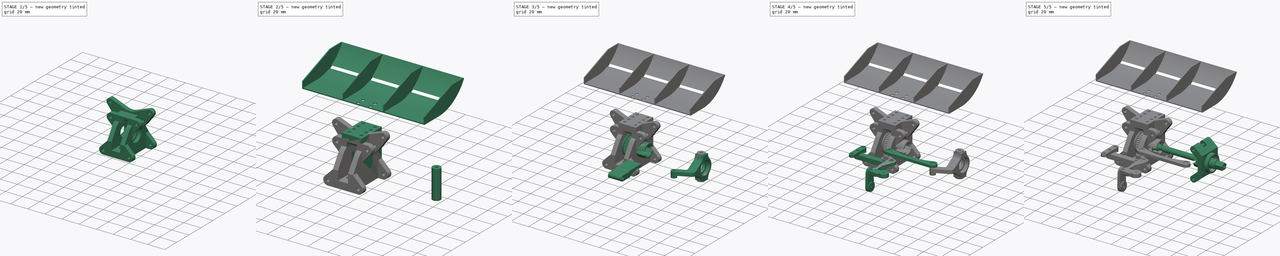
[diagram: build sequence overview — one tinted view per stage of 5, left to right]
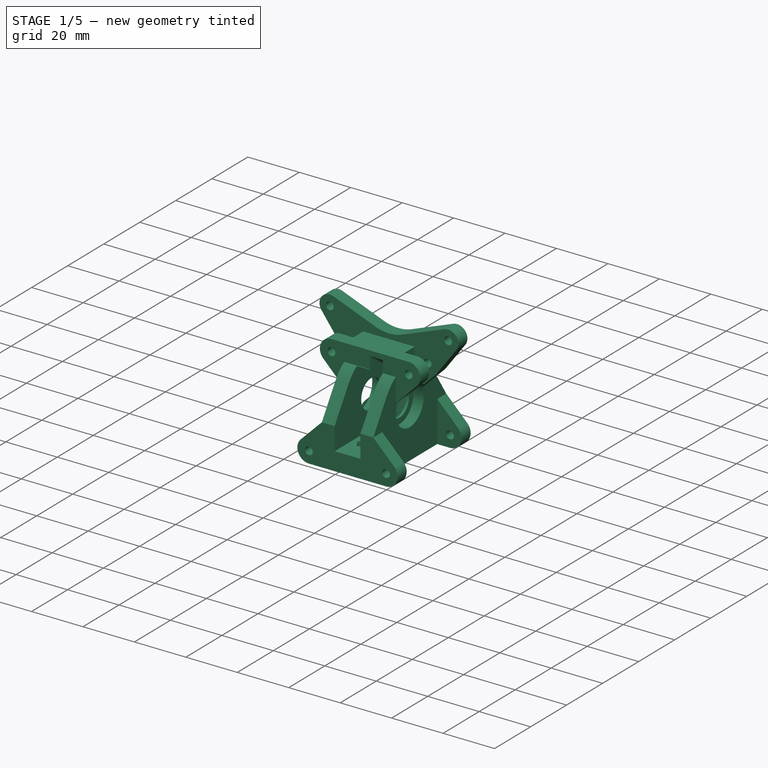
[diagram: stage 1 of 5 — iso view after this stage's code; geometry added in this stage tinted green]
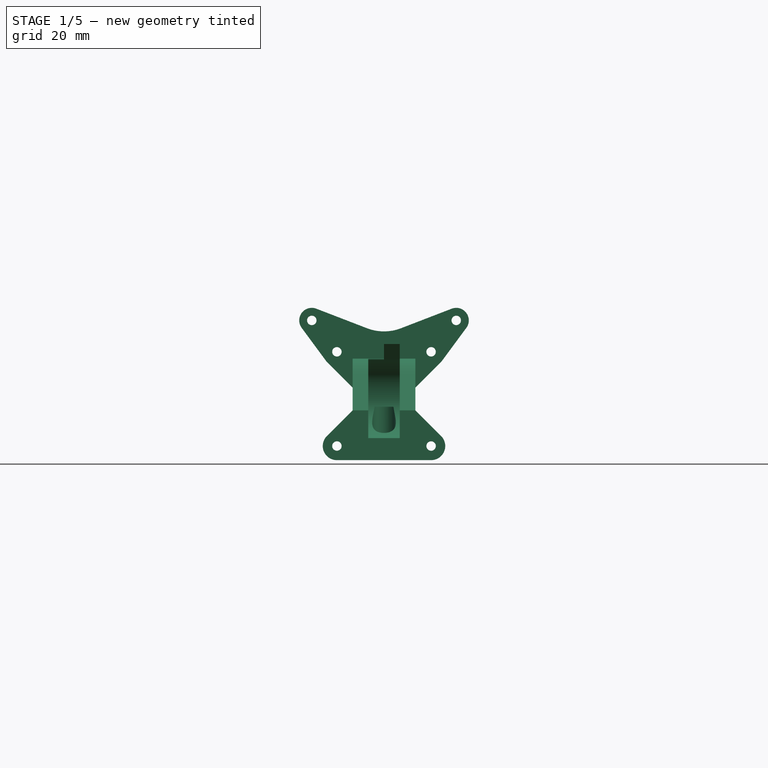
[diagram: stage 1 of 5 — front view after this stage's code; geometry added in this stage tinted green]
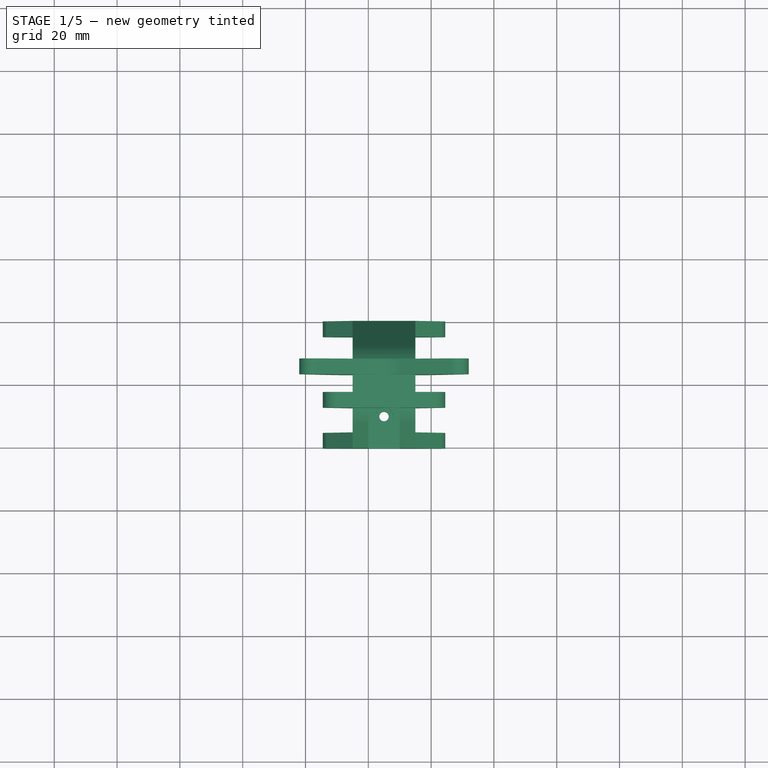
[diagram: stage 1 of 5 — top view after this stage's code; geometry added in this stage tinted green]
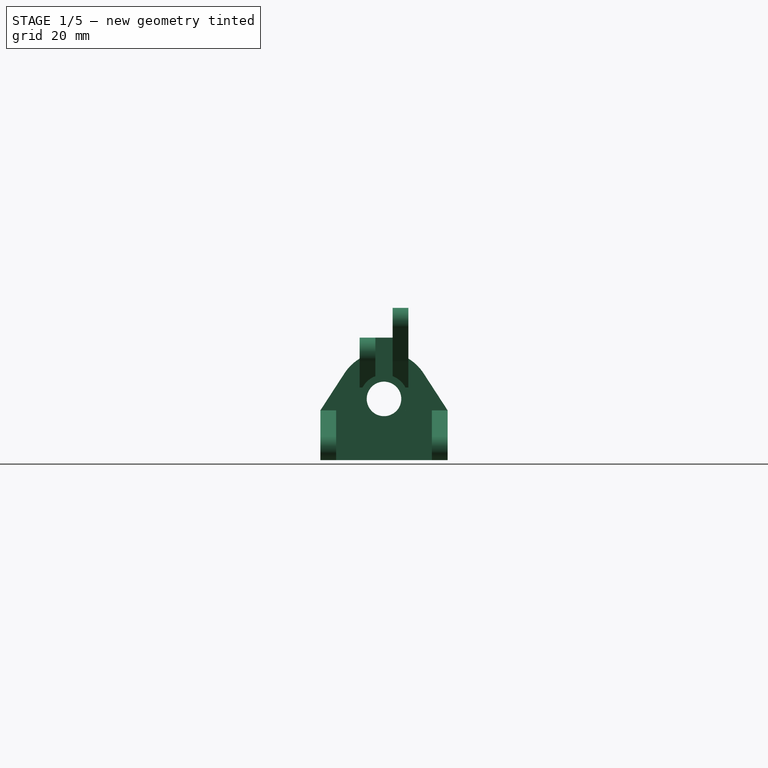
[diagram: stage 1 of 5 — right view after this stage's code; geometry added in this stage tinted green]
FCSTD DOCUMENT  (FreeCAD 2023.131R26244 +5365 (Git))
Label: drive_components
License: All rights reserved
LicenseURL: http://en.wikipedia.org/wiki/All_rights_reserved
objects: Sketcher::SketchObject×113, Part::SubShapeBinder×45, PartDesign::Pocket×44, PartDesign::Pad×41, PartDesign::Plane×25, PartDesign::Body×23, PartDesign::Mirrored×13, PartDesign::Revolution×7, PartDesign::Chamfer×4, PartDesign::SubShapeBinder×4, PartDesign::Line×4, PartDesign::Groove×4, PartDesign::Fillet×2, PartDesign::FeatureBase×2, Spreadsheet::Sheet×1, PartDesign::PolarPattern×1, PartDesign::FeaturePython×1, PartDesign::LinearPattern×1
note: 684 computed .brp shape members not serialized (recipe doc carries the construction recipe); baked Part::Feature solids carry a one-line shape summary decoded from their .brp

FEATURE [Sketcher::SketchObject] Sketch  label="arm_directions"
  ArcFitTolerance = 1e-06
  AttachmentSupport = -> [XZ_Plane]
  ExternalBSplineMaxDegree = 5
  ExternalBSplineTolerance = 0.0001
  FixShape = 1
  FullyConstrained = true
  InternalTolerance = 1e-06
  InvalidShape = false
  MakeInternals = false
  MapMode = 5
  Placement = pos=(0,0,0) rot=(1,0,0;1.5708rad)
  Support = -> [XZ_Plane]
  TreeRank = 12
  ValidateShape = false
  sketch-geometry (7):
    g0: LineSegment StartX=0 StartY=0 StartZ=0 EndX=50 EndY=0 EndZ=0
    g1: LineSegment StartX=0 StartY=30 StartZ=0 EndX=50 EndY=30 EndZ=0
    g2: LineSegment StartX=0 StartY=15 StartZ=0 EndX=50 EndY=15 EndZ=0
    g3: LineSegment StartX=8 StartY=40 StartZ=0 EndX=31.2398 EndY=0 EndZ=0
    g4: LineSegment StartX=8 StartY=40 StartZ=0 EndX=29.3558 EndY=-10.6846 EndZ=0
    g5: LineSegment StartX=0 StartY=0 StartZ=0 EndX=46.9846 EndY=-17.101 EndZ=0
    g6: ArcOfCircle [constr] CenterX=0 CenterY=0 CenterZ=0 NormalX=0 NormalY=0 NormalZ=1 AngleXU=0 Radius=31.2398 StartAngle=5.93412 EndAngle=6.28319
  constraints (22):
    c: Coincident(g0,g-1)
    c: Vertical(g1,g0)
    c: Horizontal(g0)
    c: Vertical(g1,g0)
    c: Parallel(g0,g1)
    c: DistanceY(g0,g1) = 30
    c: DistanceX(g0,g0) = 50
    c: Symmetric(g1,g0,g2)
    c: Symmetric(g1,g0,g2)
    c: PointOnObject(g3,g0)
    c: Coincident(g4,g3)
    c: Coincident(g5,g0)
    c: PointOnObject(g4,g5)
    c: Equal(g5,g0)
    c: Distance(g4) = 55
    c: DistanceY(g1,g3) = 10
    c: Angle(g5,g0) = 0.349066
    c: Coincident(g6,g0)
    c: Coincident(g6,g4)
    c: Coincident(g6,g3)
    c: DistanceX(g2,g2) = 50  'drive_shaft_length'
    c: DistanceX(g0,g3) = 8
FEATURE [PartDesign::Body] Body  label="joint_axes"
  AutoGroupSolids = false
  ClaimAllChildren = false
  ExportMode = 0
  FixShape = 1
  Group = -> [Sketch]
  InvalidShape = false
  Origin = -> Origin
  TreeRank = 11
  ValidateShape = false
  _ExportChildren = -> [Sketch]
  _GroupVersion = 1
FEATURE [Part::SubShapeBinder] Import  label="Import(arm_directions)"
  BindCopyOnChange = 0
  BindMode = 0
  ClaimChildren = false
  Context = -> Body001 [Import.]
  EdgeTolerance = 1e-06
  FillStyle = 0
  FixShape = 1
  Fuse = false
  InvalidShape = false
  MakeFace = false
  MergeEdges = true
  OffsetFill = false
  OffsetIntersection = false
  OffsetJoinType = 0
  OffsetOpenResult = false
  Outline = false
  PartialLoad = false
  Relative = true
  SplitEdges = false
  Support = -> [Body[Sketch.]]
  TightBound = false
  TreeRank = 24
  ValidateShape = false
  _Version = 8
FEATURE [Sketcher::SketchObject] Sketch001
  ArcFitTolerance = 1e-06
  AttachmentSupport = -> [XZ_Plane001]
  ExternalBSplineMaxDegree = 5
  ExternalBSplineTolerance = 0.0001
  ExternalGeometry = -> [Import]
  FixShape = 1
  FullyConstrained = true
  InternalTolerance = 1e-06
  InvalidShape = false
  MakeInternals = false
  MapMode = 5
  Placement = pos=(0,0,0) rot=(1,0,0;1.5708rad)
  Support = -> [XZ_Plane001]
  TreeRank = 25
  ValidateShape = false
  sketch-geometry (6):
    g0: Circle CenterX=0 CenterY=0 CenterZ=0 NormalX=0 NormalY=0 NormalZ=1 AngleXU=0 Radius=1.6
    g1: Circle CenterX=50 CenterY=0 CenterZ=0 NormalX=0 NormalY=0 NormalZ=1 AngleXU=0 Radius=1.6
    g2: ArcOfCircle CenterX=0 CenterY=0 CenterZ=0 NormalX=0 NormalY=0 NormalZ=1 AngleXU=0 Radius=3.5 StartAngle=1.5708 EndAngle=4.71239
    g3: ArcOfCircle CenterX=50 CenterY=0 CenterZ=0 NormalX=0 NormalY=0 NormalZ=1 AngleXU=0 Radius=3.5 StartAngle=4.71239 EndAngle=7.85398
    g4: LineSegment StartX=0 StartY=-3.5 StartZ=0 EndX=50 EndY=-3.5 EndZ=0
    g5: LineSegment StartX=50 StartY=3.5 StartZ=0 EndX=0 EndY=3.5 EndZ=0
  constraints (12):
    c: Coincident(g0,g-3)
    c: Coincident(g1,g-3)
    c: Equal(g1,g0)
    c: Diameter(g0) = 3.2
    c: Tangent(g2,g4) = -1.5708
    c: Tangent(g4,g3) = -1.5708
    c: Tangent(g3,g5) = -1.5708
    c: Tangent(g5,g2) = -1.5708
    c: Equal(g2,g3)
    c: Coincident(g2,g0)
    c: Coincident(g3,g1)
    c: DistanceY(g2,g2) = 7
FEATURE [PartDesign::Pad] Pad  label="side_profile"
  AddSubType = 0
  AlongSketchNormal = false
  AutoTaperInnerAngle = true
  CheckUpToFaceLimits = true
  ClaimChildren = false
  Direction = (0,-1,0)
  Fit = 0
  FitJoin = 0
  FixShape = 1
  InnerFit = 0
  InnerFitJoin = 0
  InvalidShape = false
  Length = 30
  Length2 = 100
  Linearize = true
  Midplane = true
  NewSolid = true
  Profile = -> Sketch001
  Refine = true
  Suppress = false
  TaperInnerAngle = 0
  TaperInnerAngleRev = 0
  TreeRank = 26
  Type = 0
  ValidateShape = false
  _ProfileBasedVersion = 1
FEATURE [Sketcher::SketchObject] Sketch002
  ArcFitTolerance = 1e-06
  AttachmentSupport = -> [XY_Plane001]
  ExternalBSplineMaxDegree = 5
  ExternalBSplineTolerance = 0.0001
  ExternalGeometry = -> [Pad]
  FixShape = 1
  FullyConstrained = true
  InternalTolerance = 1e-06
  InvalidShape = false
  MakeInternals = false
  MapMode = 5
  Support = -> [XY_Plane001]
  TreeRank = 27
  ValidateShape = false
  sketch-geometry (6):
    g0: LineSegment StartX=4.6 StartY=15 StartZ=0 EndX=45.4 EndY=7.5 EndZ=0
    g1: LineSegment StartX=45.4 StartY=7.5 StartZ=0 EndX=54.5 EndY=7.5 EndZ=0
    g2: LineSegment StartX=4.6 StartY=15 StartZ=0 EndX=4.6 EndY=16 EndZ=0
    g3: LineSegment StartX=4.6 StartY=16 StartZ=0 EndX=54.5 EndY=16 EndZ=0
    g4: LineSegment StartX=54.5 StartY=16 StartZ=0 EndX=54.5 EndY=7.5 EndZ=0
    g5: GeomPoint [constr] X=54.5 Y=-7.5 Z=0
  constraints (16):
    c: Coincident(g1,g0)
    c: Horizontal(g1)
    c: Horizontal(g0,g-3)
    c: Coincident(g2,g0)
    c: Vertical(g2)
    c: Coincident(g3,g2)
    c: Horizontal(g3)
    c: Coincident(g4,g3)
    c: Coincident(g4,g1)
    c: Vertical(g4)
    c: DistanceX(g-3,g0) = 3
    c: Symmetric(g1,g5,g-1)
    c: DistanceY(g5,g1) = 15
    c: DistanceX(g0,g-6) = 3
    c: DistanceY(g2,g2) = 1
    c: DistanceX(g-4,g1) = 1
FEATURE [PartDesign::Pocket] Pocket  label="top_profile"
  AddSubType = 1
  AutoTaperInnerAngle = true
  BaseFeature = -> Pad
  CheckUpToFaceLimits = true
  ClaimChildren = false
  Fit = 0
  FitJoin = 0
  FixShape = 1
  InnerFit = 0
  InnerFitJoin = 0
  InvalidShape = false
  Length = 5
  Length2 = 100
  Linearize = true
  Midplane = true
  NewSolid = false
  Profile = -> Sketch002
  Refine = true
  Suppress = false
  TaperInnerAngle = 0
  TaperInnerAngleRev = 0
  TreeRank = 28
  Type = 1
  ValidateShape = false
  _ProfileBasedVersion = 1
  _Version = 1
FEATURE [PartDesign::Mirrored] Mirrored  label="mirror_top_profile"
  AddSubType = 0
  BaseFeature = -> Pocket
  CopyShape = false
  FixShape = 1
  InvalidShape = false
  MirrorPlane = -> XZ_Plane001
  NewSolid = false
  OriginalSubs = -> [Pocket]
  Originals = -> [Pocket]
  ParallelTransform = true
  Refine = true
  SubTransform = true
  Suppress = false
  TreeRank = 29
  ValidateShape = false
  _Version = 3
FEATURE [Part::SubShapeBinder] Import005  label="Import005(arm_directions)"
  BindCopyOnChange = 0
  BindMode = 0
  ClaimChildren = false
  Context = -> Body003 [Import005.]
  EdgeTolerance = 1e-06
  FillStyle = 0
  FixShape = 1
  Fuse = false
  InvalidShape = false
  MakeFace = false
  MergeEdges = true
  OffsetFill = false
  OffsetIntersection = false
  OffsetJoinType = 0
  OffsetOpenResult = false
  Outline = false
  PartialLoad = false
  Relative = true
  SplitEdges = false
  Support = -> [Body[Sketch.]]
  TightBound = false
  TreeRank = 67
  ValidateShape = false
  _Version = 8
FEATURE [PartDesign::Plane] DatumPlane003  label="suspension_attachment_plane"
  AttachmentOffset = pos=(0,0,-2) rot=(0,0,1;0rad)
  AttachmentSupport = -> [Mirrored]
  FixShape = 1
  InvalidShape = false
  Length = 56.949
  MapMode = 5
  MinimumLength = 10
  MinimumWidth = 10
  Placement = pos=(0,13,2.9e-15) rot=(0,0.707107,0.707107;3.14159rad)
  ResizeMode = 0
  Support = -> [Mirrored]
  TreeRank = 80
  ValidateShape = false
  Width = 10
FEATURE [Sketcher::SketchObject] Sketch012
  ArcFitTolerance = 1e-06
  AttachmentSupport = -> [DatumPlane003]
  ExternalBSplineMaxDegree = 5
  ExternalBSplineTolerance = 0.0001
  ExternalGeometry = -> [Import,Mirrored]
  FixShape = 1
  FullyConstrained = true
  InternalTolerance = 1e-06
  InvalidShape = false
  MakeInternals = false
  MapMode = 5
  Placement = pos=(0,13,2.9e-15) rot=(0,0.707107,0.707107;3.14159rad)
  Support = -> [DatumPlane003]
  TreeRank = 81
  ValidateShape = false
  sketch-geometry (5):
    g0: LineSegment StartX=-34.7398 StartY=-3.5 StartZ=0 EndX=-34.7398 EndY=3.5 EndZ=0
    g1: LineSegment StartX=-34.7398 StartY=3.5 StartZ=0 EndX=-27.7398 EndY=3.5 EndZ=0
    g2: LineSegment StartX=-27.7398 StartY=3.5 StartZ=0 EndX=-27.7398 EndY=-3.5 EndZ=0
    g3: LineSegment StartX=-27.7398 StartY=-3.5 StartZ=0 EndX=-34.7398 EndY=-3.5 EndZ=0
    g4: GeomPoint [constr] X=-31.2398 Y=0 Z=0
  constraints (12):
    c: Coincident(g0,g1)
    c: Coincident(g1,g2)
    c: Coincident(g2,g3)
    c: Coincident(g3,g0)
    c: Horizontal(g1)
    c: Horizontal(g3)
    c: Vertical(g0)
    c: Vertical(g2)
    c: Symmetric(g1,g0,g4)
    c: Coincident(g4,g-3)
    c: PointOnObject(g1,g-4)
    c: Equal(g2,g3)
FEATURE [PartDesign::Pad] Pad005  label="suspension_spacer"
  AddSubType = 0
  AlongSketchNormal = false
  AutoTaperInnerAngle = true
  BaseFeature = -> Mirrored
  CheckUpToFaceLimits = true
  ClaimChildren = false
  Direction = (0,1,2e-16)
  Fit = 0
  FitJoin = 0
  FixShape = 1
  InnerFit = 0
  InnerFitJoin = 0
  InvalidShape = false
  Length = 10
  Length2 = 100
  Linearize = true
  NewSolid = false
  Profile = -> Sketch012
  Refine = true
  Suppress = false
  TaperInnerAngle = 0
  TaperInnerAngleRev = 0
  TreeRank = 82
  Type = 3
  UpToFace = -> Mirrored [Face7]
  ValidateShape = false
  _ProfileBasedVersion = 1
FEATURE [Sketcher::SketchObject] Sketch013
  ArcFitTolerance = 1e-06
  AttachmentSupport = -> [Pad005]
  ExternalBSplineMaxDegree = 5
  ExternalBSplineTolerance = 0.0001
  ExternalGeometry = -> [Import]
  FixShape = 1
  FullyConstrained = true
  InternalTolerance = 1e-06
  InvalidShape = false
  MakeInternals = false
  MapMode = 5
  Placement = pos=(0,13,0) rot=(0,0.707107,0.707107;3.14159rad)
  Support = -> [Pad005]
  TreeRank = 83
  ValidateShape = false
  sketch-geometry (1):
    g0: Circle CenterX=-31.2398 CenterY=0 CenterZ=0 NormalX=0 NormalY=0 NormalZ=1 AngleXU=0 Radius=1.5
  constraints (2):
    c: Diameter(g0) = 3
    c: Coincident(g-3,g0)
FEATURE [PartDesign::Pocket] Pocket008  label="suspension_screw_hole"
  AddSubType = 1
  AutoTaperInnerAngle = true
  BaseFeature = -> Pad005
  CheckUpToFaceLimits = true
  ClaimChildren = false
  Fit = 0
  FitJoin = 0
  FixShape = 1
  InnerFit = 0
  InnerFitJoin = 0
  InvalidShape = false
  Length = 8
  Length2 = 100
  Linearize = true
  NewSolid = false
  Profile = -> Sketch013
  Refine = true
  Suppress = false
  TaperInnerAngle = 0
  TaperInnerAngleRev = 0
  TreeRank = 84
  Type = 0
  ValidateShape = false
  _ProfileBasedVersion = 1
  _Version = 1
FEATURE [PartDesign::Fillet] Fillet001  label="smooth_suspension_screw_hole"
  AddSubType = 0
  Base = -> Pocket008 [Edge7,Edge9,Edge20,Edge18]
  BaseFeature = -> Pocket008
  FixShape = 1
  InvalidShape = false
  NewSolid = false
  Radius = 2
  Refine = true
  SupportTransform = false
  Suppress = false
  TreeRank = 85
  ValidateShape = false
FEATURE [PartDesign::Body] Body004  label="steering_knuckle"
  AutoGroupSolids = false
  ClaimAllChildren = false
  ExportMode = 0
  FixShape = 1
  Group = -> [Import008,Import007,Import006,Sketch014,DatumPlane004,Pad006,Mirrored002,Sketch015,Pocket009,DatumPlane005,Sketch016,Pocket010,DatumPlane006,Sketch017,Pocket011]
  InvalidShape = false
  Origin = -> Origin004
  Tip = -> Pocket011
  TreeRank = 95
  ValidateShape = false
  _ExportChildren = -> [Import008,Import007,Import006,DatumPlane004,Pad006,Mirrored002,Pocket009,DatumPlane005,Pocket010,DatumPlane006,Pocket011]
  _GroupVersion = 1
FEATURE [PartDesign::Plane] DatumPlane007
  AttachmentOffset = pos=(0,0,0.25) rot=(0,0,1;0rad)
  AttachmentSupport = -> [Pocket011]
  FixShape = 1
  InvalidShape = false
  Length = 10
  MapMode = 5
  MinimumLength = 10
  MinimumWidth = 10
  Placement = pos=(0,-8.2e-15,29.25) rot=(1,0,0;3.14159rad)
  ResizeMode = 0
  Support = -> [Pocket011]
  TreeRank = 125
  ValidateShape = false
  Width = 10
FEATURE [Spreadsheet::Sheet] Spreadsheet  label="d"
  PythonMode = false
  ShowCells = 0
  TreeRank = 10
  cells = A1=Bolts; D1=Bearings; A2=bolt_loose; B2(bolt_loose)=3.2; D2=bearing_od; A3=bolt_tight; B3(bolt_tight)=3; D3=bearing id; D4=bearing_ot; D5=bearing_it
FEATURE [Part::SubShapeBinder] Import010  label="Import010(smooth_suspension_screw_hole)"
  BindCopyOnChange = 0
  BindMode = 0
  ClaimChildren = false
  Context = -> Body005 [Import010.]
  EdgeTolerance = 1e-06
  FillStyle = 0
  FixShape = 1
  Fuse = false
  InvalidShape = false
  MakeFace = false
  MergeEdges = true
  OffsetFill = false
  OffsetIntersection = false
  OffsetJoinType = 0
  OffsetOpenResult = false
  Outline = false
  PartialLoad = false
  Relative = true
  SplitEdges = false
  Support = -> [Body001[Fillet001.]]
  TightBound = false
  TreeRank = 127
  ValidateShape = false
  _Version = 8
FEATURE [PartDesign::Plane] DatumPlane008
  AttachmentSupport = -> [Sketch,XY_Plane005]
  FixShape = 1
  InvalidShape = false
  Length = 17.8519
  MapMode = 6
  MinimumLength = 10
  MinimumWidth = 10
  Placement = pos=(50,-3.3e-15,15) rot=(0,0,1;3.14159rad)
  ResizeMode = 0
  Support = -> [Sketch,XY_Plane005]
  TreeRank = 137
  ValidateShape = false
  Width = 19
FEATURE [Part::SubShapeBinder] Import011  label="Import011(smooth_suspension_screw_hole)"
  BindCopyOnChange = 0
  BindMode = 0
  ClaimChildren = false
  Context = -> Body006 [Import011.]
  EdgeTolerance = 1e-06
  FillStyle = 0
  FixShape = 1
  Fuse = false
  InvalidShape = false
  MakeFace = false
  MergeEdges = true
  OffsetFill = false
  OffsetIntersection = false
  OffsetJoinType = 0
  OffsetOpenResult = false
  Outline = false
  PartialLoad = false
  Relative = true
  SplitEdges = false
  Support = -> [Body001[Fillet001.]]
  TightBound = false
  TreeRank = 151
  ValidateShape = false
  _Version = 8
FEATURE [Part::SubShapeBinder] Import012  label="Import012(arm_directions)"
  BindCopyOnChange = 0
  BindMode = 0
  ClaimChildren = false
  Context = -> Body006 [Import012.]
  EdgeTolerance = 1e-06
  FillStyle = 0
  FixShape = 1
  Fuse = false
  InvalidShape = false
  MakeFace = false
  MergeEdges = true
  OffsetFill = false
  OffsetIntersection = false
  OffsetJoinType = 0
  OffsetOpenResult = false
  Outline = false
  PartialLoad = false
  Relative = true
  SplitEdges = false
  Support = -> [Body[Sketch.]]
  TightBound = false
  TreeRank = 152
  ValidateShape = false
  _Version = 8
FEATURE [PartDesign::Plane] DatumPlane009  label="lower_arm_clamp_start"
  AttachmentOffset = pos=(0,0,0.25) rot=(0,0,1;0rad)
  AttachmentSupport = -> [Fillet001]
  FixShape = 1
  InvalidShape = false
  Length = 10
  MapMode = 5
  MinimumLength = 10
  MinimumWidth = 10
  Placement = pos=(0,-15.25,-3.4e-15) rot=(1,0,0;1.5708rad)
  ResizeMode = 0
  Support = -> [Fillet001]
  TreeRank = 154
  ValidateShape = false
  Width = 10
FEATURE [Sketcher::SketchObject] Sketch025
  ArcFitTolerance = 1e-06
  AttachmentSupport = -> [DatumPlane009]
  ExternalBSplineMaxDegree = 5
  ExternalBSplineTolerance = 0.0001
  ExternalGeometry = -> [Import012]
  FixShape = 1
  FullyConstrained = true
  InternalTolerance = 1e-06
  InvalidShape = false
  MakeInternals = false
  MapMode = 5
  Placement = pos=(0,-15.25,-3.4e-15) rot=(1,0,0;1.5708rad)
  Support = -> [DatumPlane009]
  TreeRank = 153
  ValidateShape = false
  expr: Constraints[1] = <<d>>.bolt_tight
  sketch-geometry (5):
    g0: Circle CenterX=0 CenterY=0 CenterZ=0 NormalX=0 NormalY=0 NormalZ=1 AngleXU=0 Radius=1.5
    g1: ArcOfCircle CenterX=0 CenterY=0 CenterZ=0 NormalX=0 NormalY=0 NormalZ=1 AngleXU=0 Radius=4.5 StartAngle=4.71239 EndAngle=7.06858
    g2: LineSegment StartX=1e-16 StartY=-4.5 StartZ=0 EndX=-5 EndY=-4.5 EndZ=0
    g3: LineSegment StartX=3.18198 StartY=3.18198 StartZ=0 EndX=-5 EndY=11.364 EndZ=0
    g4: LineSegment StartX=-5 StartY=-4.5 StartZ=0 EndX=-5 EndY=11.364 EndZ=0
  constraints (12):
    c: Coincident(g0,g-3)
    c: Diameter(g0) = 3
    c: Coincident(g1,g0)
    c: Tangent(g2,g1) = 1.5708
    c: Horizontal(g2)
    c: Tangent(g3,g1) = -1.5708
    c: Vertical(g3,g2)
    c: Coincident(g4,g2)
    c: Coincident(g4,g3)
    c: DistanceX(g2,g2) = 5
    c: Diameter(g1) = 9
    c: Angle(g3,g-1) = 0.785398
FEATURE [PartDesign::Pad] Pad010  label="lower_arm_clamp"
  AddSubType = 0
  AlongSketchNormal = false
  AutoTaperInnerAngle = true
  CheckUpToFaceLimits = true
  ClaimChildren = false
  Direction = (0,-1,-2e-16)
  Fit = 0
  FitJoin = 0
  FixShape = 1
  InnerFit = 0
  InnerFitJoin = 0
  InvalidShape = false
  Length = 5
  Length2 = 100
  Linearize = true
  NewSolid = true
  Profile = -> Sketch025
  Refine = true
  Suppress = false
  TaperInnerAngle = 0
  TaperInnerAngleRev = 0
  TreeRank = 155
  Type = 0
  ValidateShape = false
  _ProfileBasedVersion = 1
FEATURE [Part::SubShapeBinder] Import013  label="Import013(Pad001)"
  BindCopyOnChange = 0
  BindMode = 0
  ClaimChildren = false
  Context = -> Body006 [Import013.]
  EdgeTolerance = 1e-06
  FillStyle = 0
  FixShape = 1
  Fuse = false
  InvalidShape = false
  MakeFace = false
  MergeEdges = true
  OffsetFill = false
  OffsetIntersection = false
  OffsetJoinType = 0
  OffsetOpenResult = false
  Outline = false
  PartialLoad = false
  Relative = true
  SplitEdges = false
  Support = -> [Body002[Pad001.]]
  TightBound = false
  TreeRank = 160
  ValidateShape = false
  _Version = 8
FEATURE [PartDesign::Plane] DatumPlane010  label="upper_arm_clamp_start"
  AttachmentOffset = pos=(0,0,0.25) rot=(0,0,1;0rad)
  AttachmentSupport = -> [Import013]
  FixShape = 1
  InvalidShape = false
  Length = 10
  MapMode = 5
  MinimumLength = 10
  MinimumWidth = 10
  Placement = pos=(0,-2.75,-6e-16) rot=(1,0,0;1.5708rad)
  ResizeMode = 0
  Support = -> [Import013]
  TreeRank = 159
  ValidateShape = false
  Width = 10
FEATURE [Sketcher::SketchObject] Sketch026
  ArcFitTolerance = 1e-06
  AttachmentSupport = -> [DatumPlane010]
  ExternalBSplineMaxDegree = 5
  ExternalBSplineTolerance = 0.0001
  ExternalGeometry = -> [Import012,Pad010]
  FixShape = 1
  FullyConstrained = true
  InternalTolerance = 1e-06
  InvalidShape = false
  MakeInternals = false
  MapMode = 5
  Placement = pos=(0,-2.75,-6e-16) rot=(1,0,0;1.5708rad)
  Support = -> [DatumPlane010]
  TreeRank = 161
  ValidateShape = false
  expr: Constraints[1] = <<d>>.bolt_tight
  sketch-geometry (5):
    g0: Circle CenterX=0 CenterY=30 CenterZ=0 NormalX=0 NormalY=0 NormalZ=1 AngleXU=0 Radius=1.5
    g1: ArcOfCircle CenterX=0 CenterY=30 CenterZ=0 NormalX=0 NormalY=0 NormalZ=1 AngleXU=0 Radius=4.5 StartAngle=5.49779 EndAngle=7.85398
    g2: LineSegment StartX=0 StartY=34.5 StartZ=0 EndX=-5 EndY=34.5 EndZ=0
    g3: LineSegment StartX=-5 StartY=34.5 StartZ=0 EndX=-5 EndY=18.636 EndZ=0
    g4: LineSegment StartX=3.18198 StartY=26.818 StartZ=0 EndX=-5 EndY=18.636 EndZ=0
  constraints (13):
    c: Coincident(g0,g-3)
    c: Diameter(g0) = 3
    c: PointOnObject(g1,g-2)
    c: Coincident(g1,g0)
    c: Equal(g1,g-4)
    c: Coincident(g2,g1)
    c: Horizontal(g2)
    c: Coincident(g3,g2)
    c: Vertical(g3)
    c: Vertical(g3,g-5)
    c: Coincident(g4,g3)
    c: Equal(g-6,g4)
    c: Tangent(g4,g1) = 1.5708
FEATURE [PartDesign::Pad] Pad011  label="upper_arm_clamp"
  AddSubType = 0
  AlongSketchNormal = false
  AutoTaperInnerAngle = true
  BaseFeature = -> Pad010
  CheckUpToFaceLimits = true
  ClaimChildren = false
  Direction = (0,-1,-2e-16)
  Fit = 0
  FitJoin = 0
  FixShape = 1
  InnerFit = 0
  InnerFitJoin = 0
  InvalidShape = false
  Length = 5
  Length2 = 100
  Linearize = true
  NewSolid = false
  Profile = -> Sketch026
  Refine = true
  Suppress = false
  TaperInnerAngle = 0
  TaperInnerAngleRev = 0
  TreeRank = 162
  Type = 0
  ValidateShape = false
  _ProfileBasedVersion = 1
FEATURE [PartDesign::Mirrored] Mirrored003  label="mirror_arm_clamps"
  AddSubType = 0
  BaseFeature = -> Pad011
  CopyShape = false
  FixShape = 1
  InvalidShape = false
  MirrorPlane = -> XZ_Plane006
  NewSolid = false
  OriginalSubs = -> [Pad011,Pad010]
  Originals = -> [Pad011,Pad010]
  ParallelTransform = true
  Refine = true
  SubTransform = true
  Suppress = false
  TreeRank = 163
  ValidateShape = false
  _Version = 3
FEATURE [Sketcher::SketchObject] Sketch027
  ArcFitTolerance = 1e-06
  AttachmentSupport = -> [Mirrored003]
  ExternalBSplineMaxDegree = 5
  ExternalBSplineTolerance = 0.0001
  ExternalGeometry = -> [Mirrored003,Import012]
  FixShape = 1
  FullyConstrained = true
  InternalTolerance = 1e-06
  InvalidShape = false
  MakeInternals = false
  MapMode = 5
  Placement = pos=(-5,0,0) rot=(0.57735,-0.57735,-0.57735;2.0944rad)
  Support = -> [Mirrored003]
  TreeRank = 164
  ValidateShape = false
  sketch-geometry (9):
    g0: Circle [constr] CenterX=0 CenterY=15 CenterZ=0 NormalX=0 NormalY=0 NormalZ=1 AngleXU=0 Radius=15
    g1: LineSegment StartX=-20.25 StartY=11.364 StartZ=0 EndX=-12.5785 EndY=23.172 EndZ=0
    g2: LineSegment StartX=20.25 StartY=11.364 StartZ=0 EndX=12.5785 EndY=23.172 EndZ=0
    g3: LineSegment StartX=-20.25 StartY=-4.5 StartZ=0 EndX=20.25 EndY=-4.5 EndZ=0
    g4: ArcOfCircle CenterX=-2.09e-14 CenterY=15 CenterZ=0 NormalX=0 NormalY=0 NormalZ=1 AngleXU=0 Radius=15 StartAngle=0.576154 EndAngle=1.02784
    g5: LineSegment StartX=-7.75 StartY=27.8428 StartZ=0 EndX=-7.75 EndY=34.5 EndZ=0
    g6: LineSegment StartX=7.75 StartY=34.5 StartZ=0 EndX=7.75 EndY=27.8428 EndZ=0
    g7: LineSegment StartX=-7.75 StartY=34.5 StartZ=0 EndX=7.75 EndY=34.5 EndZ=0
    g8: ArcOfCircle CenterX=1.72e-14 CenterY=15 CenterZ=0 NormalX=0 NormalY=0 NormalZ=1 AngleXU=0 Radius=15 StartAngle=2.11375 EndAngle=2.56544
  constraints (24):
    c: Diameter(g0) = 30
    c: Coincident(g1,g-3)
    c: Coincident(g2,g-4)
    c: Coincident(g3,g-3)
    c: Coincident(g3,g-4)
    c: Coincident(g0,g-7)
    c: Tangent(g1,g0) = 1.5708
    c: Tangent(g2,g0) = -1.5708
    c: Coincident(g4,g2)
    c: Equal(g0,g4)
    c: Coincident(g5,g-5)
    c: Coincident(g6,g-6)
    c: Coincident(g7,g5)
    c: Coincident(g7,g6)
    c: Coincident(g8,g1)
    c: Coincident(g8,g5)
    c: Equal(g8,g0)
    c: PointOnObject(g5,g0)
    c: PointOnObject(g6,g0)
    c: Horizontal(g6,g5)
    c: Coincident(g6,g4)
    c: Vertical(g6)
    c: DistanceY(g3,g6) = 39
    c: DistanceX(g5,g4) = 7.75
FEATURE [PartDesign::Pad] Pad012  label="half_body_volume"
  AddSubType = 0
  AlongSketchNormal = false
  AutoTaperInnerAngle = true
  BaseFeature = -> Mirrored003
  CheckUpToFaceLimits = true
  ClaimChildren = false
  Direction = (-1,0,0)
  Fit = 0
  FitJoin = 0
  FixShape = 1
  InnerFit = 0
  InnerFitJoin = 0
  InvalidShape = false
  Length = 10
  Length2 = 100
  Linearize = true
  NewSolid = false
  Profile = -> Sketch027
  Refine = true
  Suppress = false
  TaperInnerAngle = 0
  TaperInnerAngleRev = 0
  TreeRank = 165
  Type = 0
  ValidateShape = false
  _ProfileBasedVersion = 1
FEATURE [PartDesign::Plane] DatumPlane011  label="tower_midplane"
  AttachmentSupport = -> [Pad012]
  FixShape = 1
  InvalidShape = false
  Length = 10
  MapMode = 5
  MinimumLength = 10
  MinimumWidth = 10
  Placement = pos=(-15,0,0) rot=(-0.57735,0.57735,0.57735;4.18879rad)
  ResizeMode = 0
  Support = -> [Pad012]
  TreeRank = 167
  ValidateShape = false
  Width = 57.101
FEATURE [PartDesign::Mirrored] Mirrored004  label="mirror_tower_volume"
  AddSubType = 0
  BaseFeature = -> Pad012
  CopyShape = false
  FixShape = 1
  InvalidShape = false
  MirrorPlane = -> DatumPlane011
  NewSolid = false
  OriginalSubs = -> [Pad012,Mirrored003,Pad011,Pad010]
  Originals = -> [Pad012,Mirrored003,Pad011,Pad010]
  ParallelTransform = true
  Refine = true
  SubTransform = true
  Suppress = false
  TreeRank = 166
  ValidateShape = false
  _Version = 3
FEATURE [Sketcher::SketchObject] Sketch028
  ArcFitTolerance = 1e-06
  AttachmentSupport = -> [DatumPlane011]
  ExternalBSplineMaxDegree = 5
  ExternalBSplineTolerance = 0.0001
  ExternalGeometry = -> [Import012]
  FixShape = 1
  FullyConstrained = true
  InternalTolerance = 1e-06
  InvalidShape = false
  MakeInternals = false
  MapMode = 5
  Placement = pos=(-15,0,0) rot=(0.57735,-0.57735,-0.57735;2.0944rad)
  Support = -> [DatumPlane011]
  TreeRank = 168
  ValidateShape = false
  sketch-geometry (1):
    g0: Circle CenterX=0 CenterY=15 CenterZ=0 NormalX=0 NormalY=0 NormalZ=1 AngleXU=0 Radius=12.5
  constraints (2):
    c: Coincident(g0,g-3)
    c: Diameter(g0) = 25
FEATURE [PartDesign::Plane] DatumPlane012  label="hollow_area_bound"
  AttachmentOffset = pos=(0,0,-5) rot=(0,0,1;0rad)
  AttachmentSupport = -> [Mirrored004]
  FixShape = 1
  InvalidShape = false
  Length = 10
  MapMode = 5
  MinimumLength = 10
  MinimumWidth = 10
  Placement = pos=(-10,0,0) rot=(0.57735,0.57735,0.57735;2.0944rad)
  ResizeMode = 0
  Support = -> [Mirrored004]
  TreeRank = 169
  ValidateShape = false
  Width = 57.101
FEATURE [PartDesign::Pocket] Pocket015  label="hollow_area_half"
  AddSubType = 1
  AutoTaperInnerAngle = true
  BaseFeature = -> Mirrored004
  CheckUpToFaceLimits = true
  ClaimChildren = false
  Fit = 0
  FitJoin = 0
  FixShape = 1
  InnerFit = 0
  InnerFitJoin = 0
  InvalidShape = false
  Length = 0
  Length2 = 100
  Linearize = true
  NewSolid = false
  Profile = -> Sketch028
  Refine = true
  Suppress = false
  TaperInnerAngle = 0
  TaperInnerAngleRev = 0
  TreeRank = 170
  Type = 3
  UpToFace = -> DatumPlane012
  ValidateShape = false
  _ProfileBasedVersion = 1
  _Version = 1
FEATURE [PartDesign::Mirrored] Mirrored005  label="mirror_hollow_area"
  AddSubType = 0
  BaseFeature = -> Pocket015
  CopyShape = false
  FixShape = 1
  InvalidShape = false
  MirrorPlane = -> DatumPlane011
  NewSolid = false
  OriginalSubs = -> [Pocket015]
  Originals = -> [Pocket015]
  ParallelTransform = true
  Refine = true
  SubTransform = true
  Suppress = false
  TreeRank = 171
  ValidateShape = false
  _Version = 3
FEATURE [Sketcher::SketchObject] Sketch029
  ArcFitTolerance = 1e-06
  AttachmentSupport = -> [DatumPlane011]
  ExternalBSplineMaxDegree = 5
  ExternalBSplineTolerance = 0.0001
  ExternalGeometry = -> [Import012]
  FixShape = 1
  FullyConstrained = true
  InternalTolerance = 1e-06
  InvalidShape = false
  MakeInternals = false
  MapMode = 5
  Placement = pos=(-15,0,0) rot=(0.57735,-0.57735,-0.57735;2.0944rad)
  Support = -> [DatumPlane011]
  TreeRank = 172
  ValidateShape = false
  sketch-geometry (1):
    g0: Circle CenterX=0 CenterY=15 CenterZ=0 NormalX=0 NormalY=0 NormalZ=1 AngleXU=0 Radius=5.5
  constraints (2):
    c: Coincident(g0,g-3)
    c: Diameter(g0) = 11
FEATURE [PartDesign::Pocket] Pocket016  label="through_hole"
  AddSubType = 1
  AutoTaperInnerAngle = true
  BaseFeature = -> Mirrored005
  CheckUpToFaceLimits = true
  ClaimChildren = false
  Fit = 0
  FitJoin = 0
  FixShape = 1
  InnerFit = 0
  InnerFitJoin = 0
  InvalidShape = false
  Length = 5
  Length2 = 100
  Linearize = true
  Midplane = true
  NewSolid = false
  Profile = -> Sketch029
  Refine = true
  Suppress = false
  TaperInnerAngle = 0
  TaperInnerAngleRev = 0
  TreeRank = 173
  Type = 1
  ValidateShape = false
  _ProfileBasedVersion = 1
  _Version = 1
FEATURE [Sketcher::SketchObject] Sketch030
  ArcFitTolerance = 1e-06
  AttachmentSupport = -> [Pocket016]
  ExternalBSplineMaxDegree = 5
  ExternalBSplineTolerance = 0.0001
  ExternalGeometry = -> [Import012]
  FixShape = 1
  FullyConstrained = true
  InternalTolerance = 1e-06
  InvalidShape = false
  MakeInternals = false
  MapMode = 5
  Placement = pos=(-5,0,0) rot=(0.57735,0.57735,0.57735;2.0944rad)
  Support = -> [Pocket016]
  TreeRank = 174
  ValidateShape = false
  sketch-geometry (1):
    g0: Circle CenterX=0 CenterY=15 CenterZ=0 NormalX=0 NormalY=0 NormalZ=1 AngleXU=0 Radius=7.75
  constraints (2):
    c: Coincident(g0,g-3)
    c: Diameter(g0) = 15.5
FEATURE [PartDesign::Pocket] Pocket017  label="bearing_hole"
  AddSubType = 1
  AutoTaperInnerAngle = true
  BaseFeature = -> Pocket016
  CheckUpToFaceLimits = true
  ClaimChildren = false
  Fit = 0
  FitJoin = 0
  FixShape = 1
  InnerFit = 0
  InnerFitJoin = 0
  InvalidShape = false
  Length = 8
  Length2 = 100
  Linearize = true
  Midplane = true
  NewSolid = false
  Profile = -> Sketch030
  Refine = true
  Suppress = false
  TaperInnerAngle = 0
  TaperInnerAngleRev = 0
  TreeRank = 175
  Type = 0
  ValidateShape = false
  _ProfileBasedVersion = 1
  _Version = 1
FEATURE [PartDesign::Mirrored] Mirrored006  label="mirror_bearing_hole"
  AddSubType = 0
  BaseFeature = -> Pocket017
  CopyShape = false
  FixShape = 1
  InvalidShape = false
  MirrorPlane = -> DatumPlane011
  NewSolid = false
  OriginalSubs = -> [Pocket017]
  Originals = -> [Pocket017]
  ParallelTransform = true
  Refine = true
  SubTransform = true
  Suppress = false
  TreeRank = 176
  ValidateShape = false
  _Version = 3
FEATURE [Sketcher::SketchObject] Sketch031
  ArcFitTolerance = 1e-06
  AttachmentSupport = -> [XZ_Plane006]
  ExternalBSplineMaxDegree = 5
  ExternalBSplineTolerance = 0.0001
  ExternalGeometry = -> [Mirrored006]
  FixShape = 1
  FullyConstrained = true
  InternalTolerance = 1e-06
  InvalidShape = false
  MakeInternals = false
  MapMode = 5
  Placement = pos=(0,0,0) rot=(1,0,0;1.5708rad)
  Support = -> [XZ_Plane006]
  TreeRank = 177
  ValidateShape = false
  sketch-geometry (4):
    g0: LineSegment StartX=-20 StartY=27.4753 StartZ=0 EndX=-10 EndY=27.4753 EndZ=0
    g1: LineSegment StartX=-10 StartY=27.4753 StartZ=0 EndX=-10 EndY=2.52467 EndZ=0
    g2: LineSegment StartX=-10 StartY=2.52467 StartZ=0 EndX=-20 EndY=2.52467 EndZ=0
    g3: LineSegment StartX=-20 StartY=2.52467 StartZ=0 EndX=-20 EndY=27.4753 EndZ=0
  constraints (10):
    c: Coincident(g0,g1)
    c: Coincident(g1,g2)
    c: Coincident(g2,g3)
    c: Coincident(g3,g0)
    c: Horizontal(g0)
    c: Horizontal(g2)
    c: Vertical(g1)
    c: Vertical(g3)
    c: Coincident(g0,g-5)
    c: Coincident(g1,g-4)
FEATURE [PartDesign::Pocket] Pocket018
  AddSubType = 1
  AutoTaperInnerAngle = true
  BaseFeature = -> Mirrored006
  CheckUpToFaceLimits = true
  ClaimChildren = false
  Fit = 0
  FitJoin = 0
  FixShape = 1
  InnerFit = 0
  InnerFitJoin = 0
  InvalidShape = false
  Length = 5
  Length2 = 100
  Linearize = true
  NewSolid = false
  Profile = -> Sketch031
  Refine = true
  Reversed = true
  Suppress = false
  TaperInnerAngle = 0
  TaperInnerAngleRev = 0
  TreeRank = 178
  Type = 1
  ValidateShape = false
  _ProfileBasedVersion = 1
  _Version = 1
FEATURE [PartDesign::Chamfer] Chamfer
  AddSubType = 0
  Angle = 45
  Base = -> Pocket018 [Edge88]
  BaseFeature = -> Pocket018
  ChamferType = 0
  FixShape = 1
  FlipDirection = false
  InvalidShape = false
  NewSolid = false
  Refine = true
  Size = 0.5
  Size2 = 1
  SupportTransform = false
  Suppress = false
  TreeRank = 179
  ValidateShape = false
FEATURE [Sketcher::SketchObject] Sketch032
  ArcFitTolerance = 1e-06
  AttachmentSupport = -> [Chamfer]
  ExternalBSplineMaxDegree = 5
  ExternalBSplineTolerance = 0.0001
  ExternalGeometry = -> [Chamfer,Import012,DatumPlane011]
  FixShape = 1
  FullyConstrained = true
  InternalTolerance = 1e-06
  InvalidShape = false
  MakeInternals = false
  MapMode = 5
  Placement = pos=(0,7.75,2.1e-15) rot=(0,0.707107,0.707107;3.14159rad)
  Support = -> [Chamfer]
  TreeRank = 180
  ValidateShape = false
  expr: Constraints[1] = <<d>>.bolt_tight
  sketch-geometry (8):
    g0: Circle CenterX=-8 CenterY=40 CenterZ=0 NormalX=0 NormalY=0 NormalZ=1 AngleXU=0 Radius=1.5
    g1: ArcOfCircle CenterX=-8 CenterY=40 CenterZ=0 NormalX=0 NormalY=0 NormalZ=1 AngleXU=0 Radius=4 StartAngle=1.20305 EndAngle=3.77728
    g2: LineSegment StartX=-6.56193 StartY=43.7326 StartZ=0 EndX=9.60723 EndY=37.5029 EndZ=0
    g3: ArcOfCircle CenterX=15 CenterY=51.5 CenterZ=0 NormalX=0 NormalY=0 NormalZ=1 AngleXU=0 Radius=15 StartAngle=4.34464 EndAngle=4.71239
    g4: LineSegment StartX=15 StartY=36.5 StartZ=0 EndX=15 EndY=34.5 EndZ=0
    g5: LineSegment StartX=15 StartY=34.5 StartZ=0 EndX=-1.8e-15 EndY=34.5 EndZ=0
    g6: LineSegment StartX=-11.2187 StartY=37.6251 StartZ=0 EndX=-3.62099 EndY=27.3282 EndZ=0
    g7: ArcOfCircle CenterX=3.1e-15 CenterY=30 CenterZ=0 NormalX=0 NormalY=0 NormalZ=1 AngleXU=0 Radius=4.5 StartAngle=1.5708 EndAngle=3.77728
  constraints (20):
    c: Coincident(g0,g-4)
    c: Diameter(g0) = 3
    c: Coincident(g1,g0)
    c: Diameter(g1) = 8
    c: Tangent(g2,g1) = 1.5708
    c: Tangent(g3,g2) = -1.5708
    c: Coincident(g4,g3)
    c: PointOnObject(g4,g-3)
    c: Coincident(g5,g4)
    c: Perpendicular(g3,g4)
    c: Vertical(g4)
    c: PointOnObject(g3,g-5)
    c: DistanceY(g4,g4) = 2
    c: Diameter(g3) = 30
    c: Tangent(g6,g-6) = -1.5708
    c: Tangent(g6,g1) = -1.5708
    c: Coincident(g7,g6)
    c: Coincident(g7,g5)
    c: Equal(g7,g-6)
    c: Coincident(g5,g-6)
FEATURE [PartDesign::Pad] Pad013
  AddSubType = 0
  AlongSketchNormal = false
  AutoTaperInnerAngle = true
  BaseFeature = -> Chamfer
  CheckUpToFaceLimits = true
  ClaimChildren = false
  Direction = (0,1,2e-16)
  Fit = 0
  FitJoin = 0
  FixShape = 1
  InnerFit = 0
  InnerFitJoin = 0
  InvalidShape = false
  Length = 5
  Length2 = 100
  Linearize = true
  NewSolid = false
  Profile = -> Sketch032
  Refine = true
  Reversed = true
  Suppress = false
  TaperInnerAngle = 0
  TaperInnerAngleRev = 0
  TreeRank = 181
  Type = 0
  ValidateShape = false
  _ProfileBasedVersion = 1
FEATURE [PartDesign::Mirrored] Mirrored007
  AddSubType = 0
  BaseFeature = -> Pad013
  CopyShape = false
  FixShape = 1
  InvalidShape = false
  MirrorPlane = -> DatumPlane011
  NewSolid = false
  OriginalSubs = -> [Pad013]
  Originals = -> [Pad013]
  ParallelTransform = true
  Refine = true
  SubTransform = true
  Suppress = false
  TreeRank = 182
  ValidateShape = false
  _Version = 3
FEATURE [Sketcher::SketchObject] Sketch034
  ArcFitTolerance = 1e-06
  AttachmentSupport = -> [Mirrored007]
  ExternalBSplineMaxDegree = 5
  ExternalBSplineTolerance = 0.0001
  ExternalGeometry = -> [DatumPlane011]
  FixShape = 1
  FullyConstrained = true
  InternalTolerance = 1e-06
  InvalidShape = false
  MakeInternals = false
  MapMode = 5
  Placement = pos=(0,1e-15,-4.5) rot=(1,0,0;3.14159rad)
  Support = -> [Mirrored007]
  TreeRank = 185
  ValidateShape = false
  sketch-geometry (2):
    g0: Circle CenterX=-15 CenterY=10 CenterZ=0 NormalX=0 NormalY=0 NormalZ=1 AngleXU=0 Radius=1.5
    g1: Circle CenterX=-15 CenterY=-10 CenterZ=0 NormalX=0 NormalY=0 NormalZ=1 AngleXU=0 Radius=1.5
  constraints (5):
    c: PointOnObject(g0,g-3)
    c: Symmetric(g0,g1,g-1)
    c: Equal(g0,g1)
    c: Diameter(g0) = 3
    c: DistanceY(g1,g0) = 20
FEATURE [PartDesign::Pocket] Pocket020
  AddSubType = 1
  AutoTaperInnerAngle = true
  BaseFeature = -> Mirrored007
  CheckUpToFaceLimits = true
  ClaimChildren = false
  Fit = 0
  FitJoin = 0
  FixShape = 1
  InnerFit = 0
  InnerFitJoin = 0
  InvalidShape = false
  Length = 15
  Length2 = 100
  Linearize = true
  NewSolid = false
  Profile = -> Sketch034
  Refine = true
  Suppress = false
  TaperInnerAngle = 0
  TaperInnerAngleRev = 0
  TreeRank = 186
  Type = 0
  ValidateShape = false
  _ProfileBasedVersion = 1
  _Version = 1
FEATURE [Part::SubShapeBinder] Import042  label="Import042(Pocket020)"
  BindCopyOnChange = 0
  BindMode = 0
  ClaimChildren = false
  Context = -> Body012 [Import042.]
  EdgeTolerance = 1e-06
  FillStyle = 0
  FixShape = 1
  Fuse = false
  InvalidShape = false
  MakeFace = false
  MergeEdges = true
  OffsetFill = false
  OffsetIntersection = false
  OffsetJoinType = 0
  OffsetOpenResult = false
  Outline = false
  PartialLoad = false
  Relative = true
  SplitEdges = false
  Support = -> [Body006[Pocket020.]]
  TightBound = false
  TreeRank = 421
  ValidateShape = false
  _Version = 8
FEATURE [PartDesign::Body] Body012  label="steering_linkage_arm"
  AutoGroupSolids = false
  ClaimAllChildren = false
  ExportMode = 0
  FixShape = 1
  Group = -> [Sketch056,Import028,DatumPlane017,Sketch057,DatumPlane019,Import029,Sketch058,Pad023,Sketch059,Groove,Sketch060,Revolution003,Sketch061,Pocket027,Import042]
  InvalidShape = false
  Origin = -> Origin012
  Tip = -> Pocket027
  TreeRank = 319
  ValidateShape = false
  _ExportChildren = -> [Sketch056,Import028,DatumPlane017,Sketch057,DatumPlane019,Import029,Pad023,Groove,Revolution003,Pocket027,Import042]
  _GroupVersion = 1
FEATURE [Sketcher::SketchObject] Sketch076  label="test"
  ArcFitTolerance = 1e-06
  AttachmentSupport = -> [Pocket020]
  ExternalBSplineMaxDegree = 5
  ExternalBSplineTolerance = 0.0001
  ExternalGeometry = -> [Pocket020]
  FixShape = 1
  FullyConstrained = true
  InternalTolerance = 1e-06
  InvalidShape = false
  MakeInternals = false
  MapMode = 5
  Placement = pos=(0,-6e-16,2.52467) rot=(0,0,1;0rad)
  Support = -> [Pocket020]
  TreeRank = 422
  ValidateShape = false
  sketch-geometry (14):
    g0: LineSegment StartX=-11.7668 StartY=-10 StartZ=0 EndX=-13.3834 EndY=-7.2 EndZ=0
    g1: LineSegment StartX=-13.3834 StartY=-7.2 StartZ=0 EndX=-16.6166 EndY=-7.2 EndZ=0
    g2: LineSegment StartX=-16.6166 StartY=-7.2 StartZ=0 EndX=-18.2332 EndY=-10 EndZ=0
    g3: LineSegment StartX=-18.2332 StartY=-10 StartZ=0 EndX=-16.6166 EndY=-12.8 EndZ=0
    g4: LineSegment StartX=-16.6166 StartY=-12.8 StartZ=0 EndX=-13.3834 EndY=-12.8 EndZ=0
    g5: LineSegment StartX=-13.3834 StartY=-12.8 StartZ=0 EndX=-11.7668 EndY=-10 EndZ=0
    g6: Circle [constr] CenterX=-15 CenterY=-10 CenterZ=0 NormalX=0 NormalY=0 NormalZ=1 AngleXU=0 Radius=3.23316
    g7: LineSegment StartX=-11.7668 StartY=10 StartZ=0 EndX=-13.3834 EndY=12.8 EndZ=0
    g8: LineSegment StartX=-13.3834 StartY=12.8 StartZ=0 EndX=-16.6166 EndY=12.8 EndZ=0
    g9: LineSegment StartX=-16.6166 StartY=12.8 StartZ=0 EndX=-18.2332 EndY=10 EndZ=0
    g10: LineSegment StartX=-18.2332 StartY=10 StartZ=0 EndX=-16.6166 EndY=7.2 EndZ=0
    g11: LineSegment StartX=-16.6166 StartY=7.2 StartZ=0 EndX=-13.3834 EndY=7.2 EndZ=0
    g12: LineSegment StartX=-13.3834 StartY=7.2 StartZ=0 EndX=-11.7668 EndY=10 EndZ=0
    g13: Circle [constr] CenterX=-15 CenterY=10 CenterZ=0 NormalX=0 NormalY=0 NormalZ=1 AngleXU=0 Radius=3.23316
  constraints (32):
    c: Coincident(g0,g1)
    c: Coincident(g1,g2)
    c: Coincident(g2,g3)
    c: Coincident(g3,g4)
    c: Coincident(g4,g5)
    c: Coincident(g5,g0)
    c: Equal(g0, g1-g5) x5
    c: PointOnObject(g0,g6)
    c: PointOnObject(g1,g6)
    c: PointOnObject(g2,g6)
    c: PointOnObject(g3,g6)
    c: PointOnObject(g4,g6)
    c: PointOnObject(g5,g6)
    c: Coincident(g6,g-3)
    c: Coincident(g7,g8)
    c: Coincident(g8,g9)
    c: Coincident(g9,g10)
    c: Coincident(g10,g11)
    c: Coincident(g11,g12)
    c: Coincident(g12,g7)
    c: Equal(g7, g8-g12) x5
    c: PointOnObject(g7,g13)
    c: PointOnObject(g8,g13)
    c: PointOnObject(g9,g13)
    c: PointOnObject(g10,g13)
    c: PointOnObject(g11,g13)
    c: PointOnObject(g12,g13)
    c: Coincident(g13,g-4)
    c: Horizontal(g8)
    c: Horizontal(g1)
    c: Equal(g8,g1)
    c: DistanceY(g4,g0) = 5.6
FEATURE [PartDesign::Pocket] Pocket029
  AddSubType = 1
  AutoTaperInnerAngle = true
  BaseFeature = -> Pocket020
  CheckUpToFaceLimits = true
  ClaimChildren = false
  Fit = 0
  FitJoin = 0
  FixShape = 1
  InnerFit = 0
  InnerFitJoin = 0
  InvalidShape = false
  Length = 3
  Length2 = 100
  Linearize = true
  NewSolid = false
  Profile = -> Sketch076
  Refine = true
  Suppress = false
  TaperInnerAngle = 0
  TaperInnerAngleRev = 0
  TreeRank = 423
  Type = 0
  ValidateShape = false
  _ProfileBasedVersion = 1
  _Version = 1
FEATURE [Sketcher::SketchObject] Sketch077
  ArcFitTolerance = 1e-06
  AttachmentSupport = -> [Pocket029]
  ExternalBSplineMaxDegree = 5
  ExternalBSplineTolerance = 0.0001
  ExternalGeometry = -> [Pocket029]
  FixShape = 1
  FullyConstrained = true
  InternalTolerance = 1e-06
  InvalidShape = false
  MakeInternals = false
  MapMode = 5
  Placement = pos=(0,-6e-16,2.52467) rot=(0,0,1;0rad)
  Support = -> [Pocket029]
  TreeRank = 424
  ValidateShape = false
  sketch-geometry (2):
    g0: Circle CenterX=-15 CenterY=-10 CenterZ=0 NormalX=0 NormalY=0 NormalZ=1 AngleXU=0 Radius=3.75
    g1: Circle CenterX=-15 CenterY=10 CenterZ=0 NormalX=0 NormalY=0 NormalZ=1 AngleXU=0 Radius=3.75
  constraints (4):
    c: Coincident(g0,g-3)
    c: Coincident(g1,g-4)
    c: Equal(g1,g0)
    c: Diameter(g1) = 7.5
FEATURE [PartDesign::Pocket] Pocket030
  AddSubType = 1
  AutoTaperInnerAngle = true
  BaseFeature = -> Pocket029
  CheckUpToFaceLimits = true
  ClaimChildren = false
  Fit = 0
  FitJoin = 0
  FixShape = 1
  InnerFit = 0
  InnerFitJoin = 0
  InvalidShape = false
  Length = 10
  Length2 = 100
  Linearize = true
  NewSolid = false
  Profile = -> Sketch077
  Refine = true
  Reversed = true
  Suppress = false
  TaperInnerAngle = 0
  TaperInnerAngleRev = 0
  TreeRank = 425
  Type = 0
  ValidateShape = false
  _ProfileBasedVersion = 1
  _Version = 1
FEATURE [Sketcher::SketchObject] Sketch078
  ArcFitTolerance = 1e-06
  AttachmentSupport = -> [DatumPlane011]
  ExternalBSplineMaxDegree = 5
  ExternalBSplineTolerance = 0.0001
  ExternalGeometry = -> [Pocket030]
  FixShape = 1
  FullyConstrained = true
  InternalTolerance = 1e-06
  InvalidShape = false
  MakeInternals = false
  MapMode = 5
  Placement = pos=(-15,0,0) rot=(0.57735,-0.57735,-0.57735;2.0944rad)
  Support = -> [DatumPlane011]
  TreeRank = 426
  ValidateShape = false
  sketch-geometry (5):
    g0: LineSegment StartX=7.75 StartY=32.5 StartZ=0 EndX=0.784881 EndY=27.4753 EndZ=0
    g1: LineSegment StartX=7.82863 StartY=27.4753 StartZ=0 EndX=0.784881 EndY=27.4753 EndZ=0
    g2: LineSegment StartX=7.75 StartY=32.5 StartZ=0 EndX=17.75 EndY=32.5 EndZ=0
    g3: LineSegment StartX=7.82863 StartY=27.4753 StartZ=0 EndX=17.75 EndY=27.4753 EndZ=0
    g4: LineSegment StartX=17.75 StartY=27.4753 StartZ=0 EndX=17.75 EndY=32.5 EndZ=0
  constraints (13):
    c: Coincident(g0,g-5)
    c: Vertical(g0,g-6)
    c: DistanceY(g0,g-6) = 2
    c: Coincident(g1,g0)
    c: Coincident(g2,g0)
    c: Horizontal(g2)
    c: Coincident(g3,g1)
    c: Horizontal(g3)
    c: Coincident(g4,g3)
    c: Coincident(g4,g2)
    c: Vertical(g4)
    c: Coincident(g1,g-5)
    c: DistanceX(g2,g2) = 10
FEATURE [PartDesign::Pocket] Pocket031
  AddSubType = 1
  AutoTaperInnerAngle = true
  BaseFeature = -> Pocket030
  CheckUpToFaceLimits = true
  ClaimChildren = false
  Fit = 0
  FitJoin = 0
  FixShape = 1
  InnerFit = 0
  InnerFitJoin = 0
  InvalidShape = false
  Length = 0
  Length2 = 100
  Linearize = true
  NewSolid = false
  Profile = -> Sketch078
  Refine = true
  Suppress = false
  TaperInnerAngle = 0
  TaperInnerAngleRev = 0
  TreeRank = 427
  Type = 3
  UpToFace = -> Pocket030 [Face57]
  ValidateShape = false
  _ProfileBasedVersion = 1
  _Version = 1
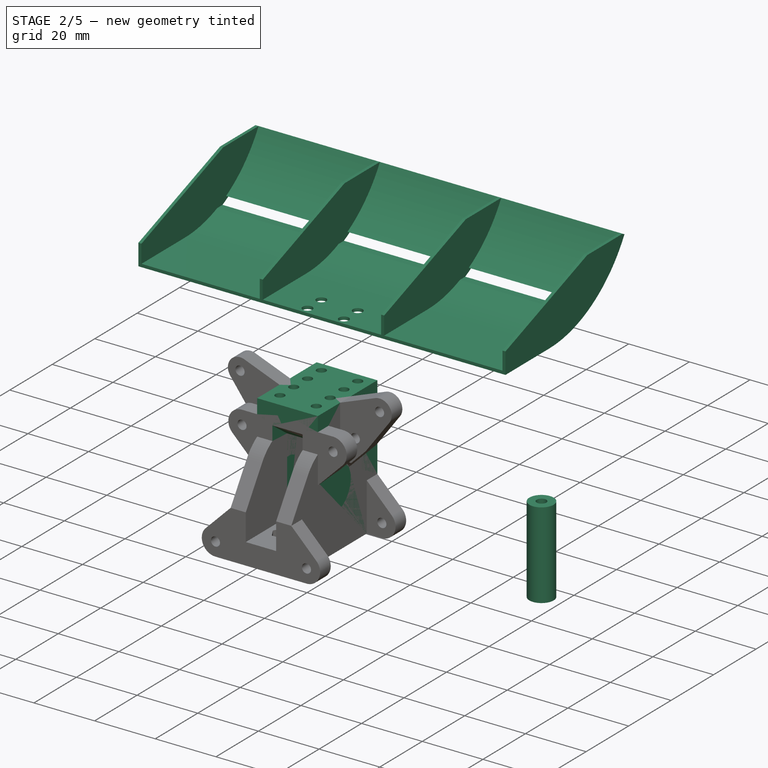
[diagram: stage 2 of 5 — iso view after this stage's code; geometry added in this stage tinted green]
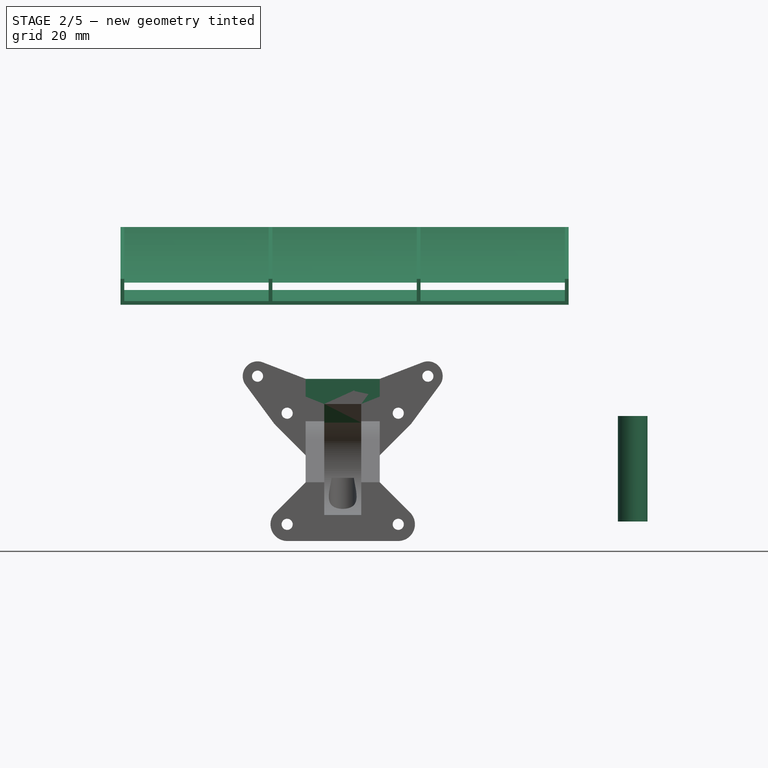
[diagram: stage 2 of 5 — front view after this stage's code; geometry added in this stage tinted green]
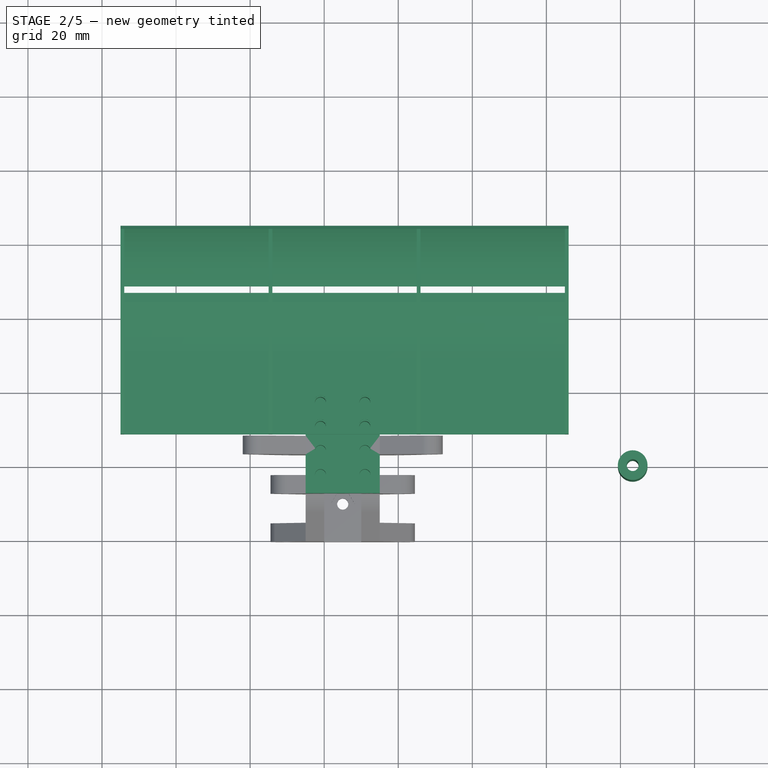
[diagram: stage 2 of 5 — top view after this stage's code; geometry added in this stage tinted green]
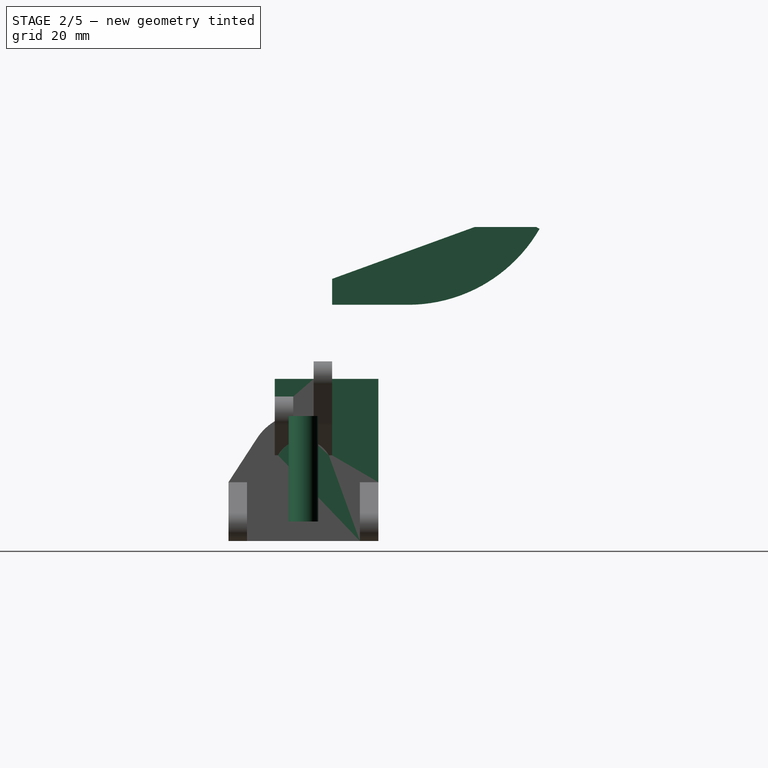
[diagram: stage 2 of 5 — right view after this stage's code; geometry added in this stage tinted green]
FEATURE [Part::SubShapeBinder] Import001  label="Import001(arm_directions)"
  BindCopyOnChange = 0
  BindMode = 0
  ClaimChildren = false
  Context = -> Body002 [Import001.]
  EdgeTolerance = 1e-06
  FillStyle = 0
  FixShape = 1
  Fuse = false
  InvalidShape = false
  MakeFace = false
  MergeEdges = true
  OffsetFill = false
  OffsetIntersection = false
  OffsetJoinType = 0
  OffsetOpenResult = false
  Outline = false
  PartialLoad = false
  Relative = true
  SplitEdges = false
  Support = -> [Body[Sketch.]]
  TightBound = false
  TreeRank = 42
  ValidateShape = false
  _Version = 8
FEATURE [Sketcher::SketchObject] Sketch003
  ArcFitTolerance = 1e-06
  AttachmentSupport = -> [XZ_Plane002]
  ExternalBSplineMaxDegree = 5
  ExternalBSplineTolerance = 0.0001
  ExternalGeometry = -> [Import001]
  FixShape = 1
  FullyConstrained = true
  InternalTolerance = 1e-06
  InvalidShape = false
  MakeInternals = false
  MapMode = 5
  Placement = pos=(0,0,0) rot=(1,0,0;1.5708rad)
  Support = -> [XZ_Plane002]
  TreeRank = 41
  ValidateShape = false
  sketch-geometry (6):
    g0: Circle CenterX=0 CenterY=30 CenterZ=0 NormalX=0 NormalY=0 NormalZ=1 AngleXU=0 Radius=1.6
    g1: Circle CenterX=50 CenterY=30 CenterZ=0 NormalX=0 NormalY=0 NormalZ=1 AngleXU=0 Radius=1.6
    g2: ArcOfCircle CenterX=0 CenterY=30 CenterZ=0 NormalX=0 NormalY=0 NormalZ=1 AngleXU=0 Radius=3.5 StartAngle=1.5708 EndAngle=4.71239
    g3: ArcOfCircle CenterX=50 CenterY=30 CenterZ=0 NormalX=0 NormalY=0 NormalZ=1 AngleXU=0 Radius=3.5 StartAngle=4.71239 EndAngle=7.85398
    g4: LineSegment StartX=0 StartY=26.5 StartZ=0 EndX=50 EndY=26.5 EndZ=0
    g5: LineSegment StartX=50 StartY=33.5 StartZ=0 EndX=0 EndY=33.5 EndZ=0
  constraints (12):
    c: Coincident(g0,g-3)
    c: Diameter(g0) = 3.2
    c: Coincident(g1,g-3)
    c: Equal(g0,g1)
    c: Tangent(g2,g4) = -1.5708
    c: Tangent(g4,g3) = -1.5708
    c: Tangent(g3,g5) = -1.5708
    c: Tangent(g5,g2) = -1.5708
    c: Equal(g2,g3)
    c: Coincident(g2,g0)
    c: Coincident(g3,g1)
    c: DistanceY(g2,g2) = 7
FEATURE [PartDesign::Pad] Pad001
  AddSubType = 0
  AlongSketchNormal = false
  AutoTaperInnerAngle = true
  CheckUpToFaceLimits = true
  ClaimChildren = false
  Direction = (0,-1,-2e-16)
  Fit = 0
  FitJoin = 0
  FixShape = 1
  InnerFit = 0
  InnerFitJoin = 0
  InvalidShape = false
  Length = 5
  Length2 = 100
  Linearize = true
  Midplane = true
  NewSolid = true
  Profile = -> Sketch003
  Refine = true
  Suppress = false
  TaperInnerAngle = 0
  TaperInnerAngleRev = 0
  TreeRank = 43
  Type = 0
  ValidateShape = false
  _ProfileBasedVersion = 1
FEATURE [PartDesign::Body] Body001  label="lower_arm"
  AutoGroupSolids = false
  ClaimAllChildren = false
  ExportMode = 0
  FixShape = 1
  Group = -> [Import,Sketch001,Pad,Sketch002,Pocket,Mirrored,DatumPlane003,Sketch012,Pad005,Sketch013,Pocket008,Fillet001]
  InvalidShape = false
  Origin = -> Origin001
  Tip = -> Fillet001
  TreeRank = 22
  ValidateShape = false
  _ExportChildren = -> [Import,Pad,Pocket,Mirrored,DatumPlane003,Pad005,Pocket008,Fillet001]
  _GroupVersion = 1
FEATURE [Part::SubShapeBinder] Import006  label="Import006(Pad001)"
  BindCopyOnChange = 0
  BindMode = 0
  ClaimChildren = false
  Context = -> Body004 [Import006.]
  EdgeTolerance = 1e-06
  FillStyle = 0
  FixShape = 1
  Fuse = false
  InvalidShape = false
  MakeFace = false
  MergeEdges = true
  OffsetFill = false
  OffsetIntersection = false
  OffsetJoinType = 0
  OffsetOpenResult = false
  Outline = false
  PartialLoad = false
  Relative = true
  SplitEdges = false
  Support = -> [Body002[Pad001.]]
  TightBound = false
  TreeRank = 97
  ValidateShape = false
  _Version = 8
FEATURE [Part::SubShapeBinder] Import007  label="Import007(smooth_suspension_screw_hole)"
  BindCopyOnChange = 0
  BindMode = 0
  ClaimChildren = false
  Context = -> Body004 [Import007.]
  EdgeTolerance = 1e-06
  FillStyle = 0
  FixShape = 1
  Fuse = false
  InvalidShape = false
  MakeFace = false
  MergeEdges = true
  OffsetFill = false
  OffsetIntersection = false
  OffsetJoinType = 0
  OffsetOpenResult = false
  Outline = false
  PartialLoad = false
  Relative = true
  SplitEdges = false
  Support = -> [Body001[Fillet001.]]
  TightBound = false
  TreeRank = 98
  ValidateShape = false
  _Version = 8
FEATURE [Part::SubShapeBinder] Import008  label="Import008(arm_directions)"
  BindCopyOnChange = 0
  BindMode = 0
  ClaimChildren = false
  Context = -> Body004 [Import008.]
  EdgeTolerance = 1e-06
  FillStyle = 0
  FixShape = 1
  Fuse = false
  InvalidShape = false
  MakeFace = false
  MergeEdges = true
  OffsetFill = false
  OffsetIntersection = false
  OffsetJoinType = 0
  OffsetOpenResult = false
  Outline = false
  PartialLoad = false
  Relative = true
  SplitEdges = false
  Support = -> [Body[Sketch.]]
  TightBound = false
  TreeRank = 99
  ValidateShape = false
  _Version = 8
FEATURE [Sketcher::SketchObject] Sketch014
  ArcFitTolerance = 1e-06
  AttachmentSupport = -> [XZ_Plane004]
  ExternalBSplineMaxDegree = 5
  ExternalBSplineTolerance = 0.0001
  ExternalGeometry = -> [Import008]
  FixShape = 1
  FullyConstrained = true
  InternalTolerance = 1e-06
  InvalidShape = false
  MakeInternals = false
  MapMode = 5
  Placement = pos=(0,0,0) rot=(1,0,0;1.5708rad)
  Support = -> [XZ_Plane004]
  TreeRank = 96
  ValidateShape = false
  sketch-geometry (18):
    g0: ArcOfCircle CenterX=50 CenterY=30 CenterZ=0 NormalX=0 NormalY=0 NormalZ=1 AngleXU=0 Radius=3.5 StartAngle=1.5708 EndAngle=3.59262
    g1: ArcOfCircle CenterX=50 CenterY=0 CenterZ=0 NormalX=0 NormalY=0 NormalZ=1 AngleXU=0 Radius=3.5 StartAngle=2.69057 EndAngle=4.71239
    g2: LineSegment StartX=47.85 StartY=24.1155 StartZ=0 EndX=47.85 EndY=5.88451 EndZ=0
    g3: LineSegment StartX=50 StartY=-3.5 StartZ=0 EndX=68.3 EndY=-3.5 EndZ=0
    g4: LineSegment StartX=50 StartY=33.5 StartZ=0 EndX=68.3 EndY=33.5 EndZ=0
    g5: LineSegment StartX=68.3 StartY=33.5 StartZ=0 EndX=68.3 EndY=29.5 EndZ=0
    g6: LineSegment StartX=68.3 StartY=29.5 StartZ=0 EndX=57.85 EndY=29.5 EndZ=0
    g7: LineSegment StartX=51.85 StartY=23.5 StartZ=0 EndX=51.85 EndY=6.5 EndZ=0
    g8: LineSegment StartX=57.85 StartY=0.5 StartZ=0 EndX=68.3 EndY=0.5 EndZ=0
    g9: LineSegment StartX=68.3 StartY=-3.5 StartZ=0 EndX=68.3 EndY=0.5 EndZ=0
    g10: Circle [constr] CenterX=50 CenterY=30 CenterZ=0 NormalX=0 NormalY=0 NormalZ=1 AngleXU=0 Radius=3.5
    g11: Circle CenterX=50 CenterY=0 CenterZ=0 NormalX=0 NormalY=0 NormalZ=1 AngleXU=0 Radius=1.5
    g12: Circle CenterX=50 CenterY=30 CenterZ=0 NormalX=0 NormalY=0 NormalZ=1 AngleXU=0 Radius=1.5
    g13: ArcOfCircle CenterX=37.85 CenterY=24.1155 CenterZ=0 NormalX=0 NormalY=0 NormalZ=1 AngleXU=0 Radius=10 StartAngle=0 EndAngle=0.451027
    g14: ArcOfCircle CenterX=37.85 CenterY=5.88451 CenterZ=0 NormalX=0 NormalY=0 NormalZ=1 AngleXU=0 Radius=10 StartAngle=5.83216 EndAngle=6.28319
    g15: LineSegment [constr] StartX=47.85 StartY=24.1155 StartZ=0 EndX=51.85 EndY=24.1155 EndZ=0
    g16: ArcOfCircle CenterX=57.85 CenterY=23.5 CenterZ=0 NormalX=0 NormalY=0 NormalZ=1 AngleXU=0 Radius=6 StartAngle=1.5708 EndAngle=3.14159
    g17: ArcOfCircle CenterX=57.85 CenterY=6.5 CenterZ=0 NormalX=0 NormalY=0 NormalZ=1 AngleXU=0 Radius=6 StartAngle=3.14159 EndAngle=4.71239
  constraints (44):
    c: Coincident(g12,g0)
    c: Coincident(g0,g10)
    c: Coincident(g0,g-4)
    c: Tangent(g4,g0) = 1.5708
    c: Equal(g10,g0)
    c: Diameter(g10) = 7
    c: Coincident(g4,g5)
    c: Coincident(g5,g6)
    c: Horizontal(g4)
    c: Horizontal(g6)
    c: Vertical(g5)
    c: Horizontal(g8)
    c: Vertical(g9)
    c: Coincident(g9,g8)
    c: Coincident(g3,g9)
    c: Horizontal(g3)
    c: Equal(g1,g0)
    c: Coincident(g1,g11)
    c: Coincident(g1,g-3)
    c: Vertical(g2)
    c: Equal(g11,g12)
    c: Diameter(g11) = 3
    c: DistanceY(g5,g5) = 4
    c: Tangent(g3,g1) = -1.5708
    c: Tangent(g2,g13) = 1.5708
    c: Tangent(g0,g13) = 1.5708
    c: Tangent(g2,g14) = 1.5708
    c: Tangent(g1,g14) = 1.5708
    c: Equal(g14,g13)
    c: Radius(g13) = 10
    c: Coincident(g15,g2)
    c: PointOnObject(g15,g7)
    c: Horizontal(g15)
    c: Equal(g15,g5)
    c: Tangent(g6,g16) = -1.5708
    c: Tangent(g7,g16) = -1.5708
    c: Tangent(g8,g17) = -1.5708
    c: Tangent(g7,g17) = -1.5708
    c: Equal(g17,g16)
    c: Radius(g16) = 6
    c: Symmetric(g5,g8,g-5)
    c: Vertical(g7)
    c: DistanceX(g0,g2) = 1
    c: DistanceX(g0,g5) = 18.3
FEATURE [PartDesign::Plane] DatumPlane004
  AttachmentOffset = pos=(0,0,5.25) rot=(0,0,1;0rad)
  AttachmentSupport = -> [Fillet001]
  FixShape = 1
  InvalidShape = false
  Length = 10
  MapMode = 5
  MinimumLength = 10
  MinimumWidth = 10
  Placement = pos=(0,12.75,-1.2e-15) rot=(0,0.707107,0.707107;3.14159rad)
  ResizeMode = 0
  Support = -> [Fillet001]
  TreeRank = 100
  ValidateShape = false
  Width = 10
FEATURE [PartDesign::Pad] Pad006
  AddSubType = 0
  AlongSketchNormal = false
  AutoTaperInnerAngle = true
  CheckUpToFaceLimits = true
  ClaimChildren = false
  Direction = (0,-1,-2e-16)
  Fit = 0
  FitJoin = 0
  FixShape = 1
  InnerFit = 0
  InnerFitJoin = 0
  InvalidShape = false
  Length = 10
  Length2 = 100
  Linearize = true
  NewSolid = true
  Profile = -> Sketch014
  Refine = true
  Suppress = false
  TaperInnerAngle = 0
  TaperInnerAngleRev = 0
  TreeRank = 101
  Type = 3
  UpToFace = -> DatumPlane004
  ValidateShape = false
  _ProfileBasedVersion = 1
FEATURE [PartDesign::Mirrored] Mirrored002
  AddSubType = 0
  BaseFeature = -> Pad006
  CopyShape = false
  FixShape = 1
  InvalidShape = false
  MirrorPlane = -> XZ_Plane004
  NewSolid = false
  OriginalSubs = -> [Pad006]
  Originals = -> [Pad006]
  ParallelTransform = true
  Refine = true
  SubTransform = true
  Suppress = false
  TreeRank = 102
  ValidateShape = false
  _Version = 3
FEATURE [Sketcher::SketchObject] Sketch015
  ArcFitTolerance = 1e-06
  AttachmentSupport = -> [XY_Plane004]
  ExternalBSplineMaxDegree = 5
  ExternalBSplineTolerance = 0.0001
  ExternalGeometry = -> [Mirrored002]
  FixShape = 1
  FullyConstrained = true
  InternalTolerance = 1e-06
  InvalidShape = false
  MakeInternals = false
  MapMode = 5
  Support = -> [XY_Plane004]
  TreeRank = 103
  ValidateShape = false
  expr: Constraints[7] = <<d>>.bolt_tight
  sketch-geometry (6):
    g0: ArcOfCircle CenterX=63.3 CenterY=0 CenterZ=0 NormalX=0 NormalY=0 NormalZ=1 AngleXU=0 Radius=5 StartAngle=5.25538 EndAngle=7.311
    g1: LineSegment StartX=51.85 StartY=12.75 StartZ=0 EndX=65.8835 EndY=4.28085 EndZ=0
    g2: LineSegment StartX=65.8835 StartY=-4.28085 StartZ=0 EndX=51.85 EndY=-12.75 EndZ=0
    g3: LineSegment StartX=51.85 StartY=-12.75 StartZ=0 EndX=68.3 EndY=-12.75 EndZ=0
    g4: LineSegment StartX=51.85 StartY=12.75 StartZ=0 EndX=68.3 EndY=12.75 EndZ=0
    g5: Circle CenterX=63.3 CenterY=0 CenterZ=0 NormalX=0 NormalY=0 NormalZ=1 AngleXU=0 Radius=1.5
  constraints (13):
    c: PointOnObject(g0,g-1)
    c: Coincident(g3,g2)
    c: Coincident(g4,g1)
    c: Tangent(g1,g0) = 1.5708
    c: Tangent(g2,g0) = 1.5708
    c: Diameter(g0) = 10
    c: Coincident(g5,g0)
    c: Diameter(g5) = 3
    c: Tangent(g0,g-3)
    c: Coincident(g1,g-4)
    c: Coincident(g2,g-4)
    c: Coincident(g3,g-3)
    c: Coincident(g4,g-3)
FEATURE [PartDesign::Pocket] Pocket009
  AddSubType = 1
  AutoTaperInnerAngle = true
  BaseFeature = -> Mirrored002
  CheckUpToFaceLimits = true
  ClaimChildren = false
  Fit = 0
  FitJoin = 0
  FixShape = 1
  InnerFit = 0
  InnerFitJoin = 0
  InvalidShape = false
  Length = 5
  Length2 = 100
  Linearize = true
  Midplane = true
  NewSolid = false
  Profile = -> Sketch015
  Refine = true
  Suppress = false
  TaperInnerAngle = 0
  TaperInnerAngleRev = 0
  TreeRank = 104
  Type = 1
  ValidateShape = false
  _ProfileBasedVersion = 1
  _Version = 1
FEATURE [PartDesign::Plane] DatumPlane005
  AttachmentOffset = pos=(0,0,-1) rot=(0,0,1;0rad)
  AttachmentSupport = -> [Pad001,XY_Plane004]
  FixShape = 1
  InvalidShape = false
  Length = 50
  MapMode = 6
  MinimumLength = 10
  MinimumWidth = 10
  Placement = pos=(50,-2.5,25.5) rot=(0,0,1;3.14159rad)
  ResizeMode = 0
  Support = -> [Pad001,XY_Plane004]
  TreeRank = 105
  ValidateShape = false
  Width = 10
FEATURE [Sketcher::SketchObject] Sketch016
  ArcFitTolerance = 1e-06
  AttachmentSupport = -> [DatumPlane005]
  ExternalBSplineMaxDegree = 5
  ExternalBSplineTolerance = 0.0001
  ExternalGeometry = -> [Import006,Pocket009]
  FixShape = 1
  FullyConstrained = false
  InternalTolerance = 1e-06
  InvalidShape = false
  MakeInternals = false
  MapMode = 5
  Placement = pos=(50,-2.5,25.5) rot=(0,0,1;3.14159rad)
  Support = -> [DatumPlane005]
  TreeRank = 106
  ValidateShape = false
  sketch-geometry (5):
    g0: LineSegment StartX=-4 StartY=0.25 StartZ=0 EndX=4.49999 EndY=0.25 EndZ=0
    g1: LineSegment StartX=4.49999 StartY=0.25 StartZ=0 EndX=4.49999 EndY=-5.25 EndZ=0
    g2: LineSegment StartX=4.49999 StartY=-5.25 StartZ=0 EndX=-4 EndY=-5.25 EndZ=0
    g3: LineSegment StartX=-4 StartY=-5.25 StartZ=0 EndX=-4 EndY=0.25 EndZ=0
    g4: LineSegment [constr] StartX=-2.061e-13 StartY=-2.5 StartZ=0 EndX=-9.14484 EndY=-2.5 EndZ=0
  constraints (13):
    c: Coincident(g0,g1)
    c: Coincident(g1,g2)
    c: Coincident(g2,g3)
    c: Coincident(g3,g0)
    c: Horizontal(g0)
    c: Horizontal(g2)
    c: Vertical(g1)
    c: DistanceY(g-3,g0) = 0.25
    c: DistanceX(g-4,g0) = 1
    c: DistanceX(g0,g-1) = 4
    c: Horizontal(g4)
    c: Symmetric(g-3,g-5,g4)
    c: Symmetric(g0,g2,g4)
FEATURE [PartDesign::Pocket] Pocket010
  AddSubType = 1
  AutoTaperInnerAngle = true
  BaseFeature = -> Pocket009
  CheckUpToFaceLimits = true
  ClaimChildren = false
  Fit = 0
  FitJoin = 0
  FixShape = 1
  InnerFit = 0
  InnerFitJoin = 0
  InvalidShape = false
  Length = 5
  Length2 = 100
  Linearize = true
  NewSolid = false
  Profile = -> Sketch016
  Refine = true
  Reversed = true
  Suppress = false
  TaperInnerAngle = 0
  TaperInnerAngleRev = 0
  TreeRank = 107
  Type = 1
  ValidateShape = false
  _ProfileBasedVersion = 1
  _Version = 1
FEATURE [PartDesign::Plane] DatumPlane006
  AttachmentOffset = pos=(0,0,5) rot=(0,0,1;0rad)
  AttachmentSupport = -> [Fillet001]
  FixShape = 1
  InvalidShape = false
  Length = 68.3
  MapMode = 5
  MinimumLength = 10
  MinimumWidth = 10
  Placement = pos=(0,-1.2e-15,8.5) rot=(0,0,1;0rad)
  ResizeMode = 0
  Support = -> [Fillet001]
  TreeRank = 108
  ValidateShape = false
  Width = 20.5
FEATURE [Sketcher::SketchObject] Sketch017
  ArcFitTolerance = 1e-06
  AttachmentSupport = -> [DatumPlane006]
  ExternalBSplineMaxDegree = 5
  ExternalBSplineTolerance = 0.0001
  ExternalGeometry = -> [Import007]
  FixShape = 1
  FullyConstrained = true
  InternalTolerance = 1e-06
  InvalidShape = false
  MakeInternals = false
  MapMode = 5
  Placement = pos=(0,-1.2e-15,8.5) rot=(0,0,1;0rad)
  Support = -> [DatumPlane006]
  TreeRank = 109
  ValidateShape = false
  sketch-geometry (4):
    g0: LineSegment StartX=54 StartY=7.75 StartZ=0 EndX=34 EndY=7.75 EndZ=0
    g1: LineSegment StartX=34 StartY=7.75 StartZ=0 EndX=34 EndY=-7.75 EndZ=0
    g2: LineSegment StartX=34 StartY=-7.75 StartZ=0 EndX=54 EndY=-7.75 EndZ=0
    g3: LineSegment StartX=54 StartY=-7.75 StartZ=0 EndX=54 EndY=7.75 EndZ=0
  constraints (11):
    c: Coincident(g0,g1)
    c: Coincident(g1,g2)
    c: Coincident(g2,g3)
    c: Coincident(g3,g0)
    c: Horizontal(g0)
    c: Horizontal(g2)
    c: Vertical(g3)
    c: DistanceX(g-3,g2) = 4
    c: Symmetric(g0,g1,g-1)
    c: DistanceY(g-4,g0) = 0.25
    c: DistanceX(g0,g0) = 20
FEATURE [PartDesign::Pocket] Pocket011
  AddSubType = 1
  AutoTaperInnerAngle = true
  BaseFeature = -> Pocket010
  CheckUpToFaceLimits = true
  ClaimChildren = false
  Fit = 0
  FitJoin = 0
  FixShape = 1
  InnerFit = 0
  InnerFitJoin = 0
  InvalidShape = false
  Length = 5
  Length2 = 100
  Linearize = true
  NewSolid = false
  Profile = -> Sketch017
  Refine = true
  Suppress = false
  TaperInnerAngle = 0
  TaperInnerAngleRev = 0
  TreeRank = 110
  Type = 1
  ValidateShape = false
  _ProfileBasedVersion = 1
  _Version = 1
FEATURE [Part::SubShapeBinder] Import014  label="Import014(Pocket011)"
  BindCopyOnChange = 0
  BindMode = 0
  ClaimChildren = false
  Context = -> Body005 [Import014.]
  EdgeTolerance = 1e-06
  FillStyle = 0
  FixShape = 1
  Fuse = false
  InvalidShape = false
  MakeFace = false
  MergeEdges = true
  OffsetFill = false
  OffsetIntersection = false
  OffsetJoinType = 0
  OffsetOpenResult = false
  Outline = false
  PartialLoad = false
  Relative = true
  SplitEdges = false
  Support = -> [Body004[Pocket011.]]
  TightBound = false
  TreeRank = 187
  ValidateShape = false
  _Version = 8
FEATURE [Sketcher::SketchObject] Sketch018
  ArcFitTolerance = 1e-06
  AttachmentOffset = pos=(0,0,0.25) rot=(0,0,1;0rad)
  AttachmentSupport = -> [Pocket011]
  ExternalBSplineMaxDegree = 5
  ExternalBSplineTolerance = 0.0001
  ExternalGeometry = -> [Import014]
  FixShape = 1
  FullyConstrained = true
  InternalTolerance = 1e-06
  InvalidShape = false
  MakeInternals = false
  MapMode = 5
  Placement = pos=(0,-2e-16,0.75) rot=(0,0,1;0rad)
  Support = -> [Pocket011]
  TreeRank = 123
  ValidateShape = false
  sketch-geometry (2):
    g0: Circle CenterX=63.3 CenterY=0 CenterZ=0 NormalX=0 NormalY=0 NormalZ=1 AngleXU=0 Radius=4
    g1: Circle CenterX=63.3 CenterY=0 CenterZ=0 NormalX=0 NormalY=0 NormalZ=1 AngleXU=0 Radius=1.6
  constraints (4):
    c: Coincident(g0,g-3)
    c: Diameter(g0) = 8
    c: Coincident(g1,g0)
    c: Diameter(g1) = 3.2
FEATURE [PartDesign::Pad] Pad007
  AddSubType = 0
  AlongSketchNormal = false
  AutoTaperInnerAngle = true
  CheckUpToFaceLimits = true
  ClaimChildren = false
  Direction = (0,-2e-16,1)
  Fit = 0
  FitJoin = 0
  FixShape = 1
  InnerFit = 0
  InnerFitJoin = 0
  InvalidShape = false
  Length = 10
  Length2 = 100
  Linearize = true
  NewSolid = true
  Profile = -> Sketch018
  Refine = true
  Suppress = false
  TaperInnerAngle = 0
  TaperInnerAngleRev = 0
  TreeRank = 126
  Type = 3
  UpToFace = -> DatumPlane007
  ValidateShape = false
  _ProfileBasedVersion = 1
FEATURE [PartDesign::Mirrored] Mirrored011
  AddSubType = 0
  BaseFeature = -> Pocket031
  CopyShape = false
  FixShape = 1
  InvalidShape = false
  MirrorPlane = -> DatumPlane011
  NewSolid = false
  OriginalSubs = -> [Pocket031]
  Originals = -> [Pocket031]
  ParallelTransform = true
  Refine = true
  SubTransform = true
  Suppress = false
  TreeRank = 428
  ValidateShape = false
  _Version = 3
FEATURE [PartDesign::Body] Body003  label="power_knuckle"
  AutoGroupSolids = false
  ClaimAllChildren = false
  ExportMode = 0
  FixShape = 1
  Group = -> [Import002,Import003,Import005,DatumPlane,Sketch004,DatumPlane001,Pad002,Sketch005,Pocket001,Sketch006,Pocket002,Mirrored001,Sketch007,Pad003,DatumPlane002,Pad004,Sketch008,Pocket003,Sketch009,Pocket004,Pocket005,Sketch010,Sketch011,Pocket007,Pocket006,Import047]
  InvalidShape = false
  Origin = -> Origin003
  Tip = -> Pocket007
  TreeRank = 53
  ValidateShape = false
  _ExportChildren = -> [Import002,Import003,Import005,DatumPlane,DatumPlane001,Pad002,Pocket001,Pocket002,Mirrored001,Pad003,DatumPlane002,Pad004,Pocket003,Pocket004,Pocket005,Pocket007,Pocket006,Import047]
  _GroupVersion = 1
FEATURE [Sketcher::SketchObject] Sketch097
  ArcFitTolerance = 1e-06
  AttachmentSupport = -> [Mirrored011]
  ExternalBSplineMaxDegree = 5
  ExternalBSplineTolerance = 0.0001
  ExternalGeometry = -> [Mirrored011]
  FixShape = 1
  FullyConstrained = true
  InternalTolerance = 1e-06
  InvalidShape = false
  MakeInternals = false
  MapMode = 5
  Placement = pos=(0,2.75,-4e-16) rot=(1,0,0;1.5708rad)
  Support = -> [Mirrored011]
  TreeRank = 487
  ValidateShape = false
  sketch-geometry (1):
    g0: LineSegment StartX=-25 StartY=34.5 StartZ=0 EndX=-25 EndY=39.278 EndZ=0
  constraints (3):
    c: Coincident(g0,g-4)
    c: PointOnObject(g0,g-3)
    c: Vertical(g0)
FEATURE [PartDesign::Plane] DatumPlane022
  AttachmentSupport = -> [Sketch097,XY_Plane006]
  FixShape = 1
  InvalidShape = false
  Length = 75
  MapMode = 6
  MinimumLength = 10
  MinimumWidth = 10
  Placement = pos=(-25,2.75,39.278) rot=(0,0,1;3.14159rad)
  ResizeMode = 0
  Support = -> [Sketch097,XY_Plane006]
  TreeRank = 488
  ValidateShape = false
  Width = 10
FEATURE [Sketcher::SketchObject] Sketch098
  ArcFitTolerance = 1e-06
  AttachmentSupport = -> [DatumPlane022]
  ExternalBSplineMaxDegree = 5
  ExternalBSplineTolerance = 0.0001
  ExternalGeometry = -> [Mirrored011]
  FixShape = 1
  FullyConstrained = true
  InternalTolerance = 1e-06
  InvalidShape = false
  MakeInternals = false
  MapMode = 5
  Placement = pos=(-25,2.75,39.278) rot=(0,0,1;3.14159rad)
  Support = -> [DatumPlane022]
  TreeRank = 489
  ValidateShape = false
  sketch-geometry (4):
    g0: LineSegment StartX=-20 StartY=10.5 StartZ=0 EndX=0 EndY=10.5 EndZ=0
    g1: LineSegment StartX=0 StartY=10.5 StartZ=0 EndX=0 EndY=-5 EndZ=0
    g2: LineSegment StartX=0 StartY=-5 StartZ=0 EndX=-20 EndY=-5 EndZ=0
    g3: LineSegment StartX=-20 StartY=-5 StartZ=0 EndX=-20 EndY=10.5 EndZ=0
  constraints (13):
    c: Coincident(g0,g1)
    c: Coincident(g1,g2)
    c: Coincident(g2,g3)
    c: Coincident(g3,g0)
    c: Horizontal(g0)
    c: Horizontal(g2)
    c: Vertical(g1)
    c: Vertical(g3)
    c: PointOnObject(g0,g-6)
    c: Horizontal(g1,g-3)
    c: Vertical(g-5,g0)
    c: Vertical(g0,g-4)
    c: DistanceX(g2,g2) = 20
FEATURE [PartDesign::Pad] Pad036
  AddSubType = 0
  AlongSketchNormal = false
  AutoTaperInnerAngle = true
  BaseFeature = -> Mirrored011
  CheckUpToFaceLimits = true
  ClaimChildren = false
  Direction = (0,0,1)
  Fit = 0
  FitJoin = 0
  FixShape = 1
  InnerFit = 0
  InnerFitJoin = 0
  InvalidShape = false
  Length = 10
  Length2 = 100
  Linearize = true
  NewSolid = false
  Profile = -> Sketch098
  Refine = true
  Suppress = false
  TaperInnerAngle = 0
  TaperInnerAngleRev = 0
  TreeRank = 490
  Type = 3
  UpToFace = -> Mirrored011 [Face23]
  ValidateShape = false
  _ProfileBasedVersion = 1
FEATURE [Sketcher::SketchObject] Sketch103  label="tower_ref_side"
  ArcFitTolerance = 1e-06
  AttachmentSupport = -> [YZ_Plane006]
  ExternalBSplineMaxDegree = 5
  ExternalBSplineTolerance = 0.0001
  ExternalGeometry = -> [Pad036]
  FixShape = 1
  FullyConstrained = true
  InternalTolerance = 1e-06
  InvalidShape = false
  MakeInternals = false
  MapMode = 5
  Placement = pos=(0,0,0) rot=(0.57735,0.57735,0.57735;2.0944rad)
  Support = -> [YZ_Plane006]
  TreeRank = 500
  ValidateShape = false
  constraints (2):
    c: DistanceX(g-3,g-5) = 15.5
    c: DistanceY(g-4,g-5) = 43.778
FEATURE [Sketcher::SketchObject] Sketch104
  ArcFitTolerance = 1e-06
  AttachmentSupport = -> [Pad036]
  ExternalBSplineMaxDegree = 5
  ExternalBSplineTolerance = 0.0001
  ExternalGeometry = -> [Pad036]
  FixShape = 1
  FullyConstrained = true
  InternalTolerance = 1e-06
  InvalidShape = false
  MakeInternals = false
  MapMode = 5
  Placement = pos=(0,0,39.278) rot=(0,0,1;0rad)
  Support = -> [Pad036]
  TreeRank = 501
  ValidateShape = false
  sketch-geometry (5):
    g0: Circle CenterX=-9 CenterY=3.75 CenterZ=0 NormalX=0 NormalY=0 NormalZ=1 AngleXU=0 Radius=1.5
    g1: Circle CenterX=-21 CenterY=-2.75 CenterZ=0 NormalX=0 NormalY=0 NormalZ=1 AngleXU=0 Radius=1.5
    g2: Circle CenterX=-9 CenterY=-2.75 CenterZ=0 NormalX=0 NormalY=0 NormalZ=1 AngleXU=0 Radius=1.5
    g3: LineSegment [constr] StartX=-15 StartY=-7.75 StartZ=0 EndX=-15 EndY=7.75 EndZ=0
    g4: Circle CenterX=-21 CenterY=3.75 CenterZ=0 NormalX=0 NormalY=0 NormalZ=1 AngleXU=0 Radius=1.5
  constraints (13):
    c: Equal(g2,g1)
    c: Equal(g1,g0)
    c: Diameter(g0) = 3
    c: PointOnObject(g3,g-3)
    c: Vertical(g3)
    c: Symmetric(g-4,g-4,g3)
    c: Symmetric(g1,g2,g3)
    c: DistanceY(g0,g3) = 4
    c: DistanceY(g2,g0) = 6.5
    c: DistanceX(g1,g2) = 12
    c: Equal(g4,g1)
    c: Symmetric(g4,g0,g3)
    c: Vertical(g2,g0)
FEATURE [PartDesign::Pocket] Pocket038
  AddSubType = 1
  AutoTaperInnerAngle = true
  BaseFeature = -> Pad036
  CheckUpToFaceLimits = true
  ClaimChildren = false
  Fit = 0
  FitJoin = 0
  FixShape = 1
  InnerFit = 0
  InnerFitJoin = 0
  InvalidShape = false
  Length = 8
  Length2 = 100
  Linearize = true
  NewSolid = false
  Profile = -> Sketch104
  Refine = true
  Suppress = false
  TaperInnerAngle = 0
  TaperInnerAngleRev = 0
  TreeRank = 502
  Type = 0
  ValidateShape = false
  _ProfileBasedVersion = 1
  _Version = 1
FEATURE [PartDesign::Body] Body005  label="turny_bit"
  AutoGroupSolids = false
  ClaimAllChildren = false
  ExportMode = 0
  FixShape = 1
  Group = -> [DatumPlane007,Sketch018,Pad007,Import010,Sketch019,Sketch020,Pad008,Sketch021,Pocket012,Sketch022,Pocket013,Sketch023,Pocket014,DatumPlane008,Sketch024,Pad009,Import014,Sketch035,Pocket021,Mirrored008,Sketch102,Pad037,Sketch105,Pad038]
  InvalidShape = false
  Origin = -> Origin005
  Tip = -> Pad038
  TreeRank = 122
  ValidateShape = false
  _ExportChildren = -> [DatumPlane007,Pad007,Import010,Sketch019,Pad008,Pocket012,Pocket013,Pocket014,DatumPlane008,Pad009,Import014,Pocket021,Mirrored008,Pad037,Pad038]
  _GroupVersion = 1
FEATURE [PartDesign::FeatureBase] Clone
  BaseFeature = -> Body006
  FixShape = 1
  InvalidShape = false
  NewSolid = false
  Suppress = false
  TreeRank = 525
  ValidateShape = false
FEATURE [Sketcher::SketchObject] Sketch106
  ArcFitTolerance = 1e-06
  AttachmentSupport = -> [Clone]
  ExternalBSplineMaxDegree = 5
  ExternalBSplineTolerance = 0.0001
  ExternalGeometry = -> [Clone]
  FixShape = 1
  FullyConstrained = true
  InternalTolerance = 1e-06
  InvalidShape = false
  MakeInternals = false
  MapMode = 5
  Placement = pos=(-25,0,0) rot=(0.57735,-0.57735,-0.57735;2.0944rad)
  Support = -> [Clone]
  TreeRank = 527
  ValidateShape = false
  sketch-geometry (3):
    g0: LineSegment StartX=-7.75 StartY=27.8428 StartZ=0 EndX=-7.75 EndY=39.278 EndZ=0
    g1: LineSegment StartX=-7.75 StartY=39.278 StartZ=0 EndX=-20.25 EndY=39.278 EndZ=0
    g2: LineSegment StartX=-20.25 StartY=39.278 StartZ=0 EndX=-20.25 EndY=11.364 EndZ=0
  constraints (8):
    c: Coincident(g0,g-4)
    c: Vertical(g0)
    c: Coincident(g1,g0)
    c: Coincident(g2,g1)
    c: Coincident(g2,g-3)
    c: Vertical(g2)
    c: Horizontal(g1)
    c: Horizontal(g0,g-5)
FEATURE [PartDesign::Pad] Pad039
  AddSubType = 0
  AlongSketchNormal = false
  AutoTaperInnerAngle = true
  BaseFeature = -> Clone
  CheckUpToFaceLimits = true
  ClaimChildren = false
  Direction = (-1,0,0)
  Fit = 0
  FitJoin = 0
  FixShape = 1
  InnerFit = 0
  InnerFitJoin = 0
  InvalidShape = false
  Length = 10
  Length2 = 100
  Linearize = true
  NewSolid = false
  Profile = -> Sketch106
  Refine = true
  Suppress = false
  TaperInnerAngle = 0
  TaperInnerAngleRev = 0
  TreeRank = 528
  Type = 3
  UpToFace = -> Clone [Face14]
  ValidateShape = false
  _ProfileBasedVersion = 1
FEATURE [Sketcher::SketchObject] Sketch107
  ArcFitTolerance = 1e-06
  AttachmentSupport = -> [Pad039]
  ExternalBSplineMaxDegree = 5
  ExternalBSplineTolerance = 0.0001
  ExternalGeometry = -> [Pad039]
  FixShape = 1
  FullyConstrained = true
  InternalTolerance = 1e-06
  InvalidShape = false
  MakeInternals = false
  MapMode = 5
  Placement = pos=(0,0,39.278) rot=(0,0,1;0rad)
  Support = -> [Pad039]
  TreeRank = 529
  ValidateShape = false
  sketch-geometry (7):
    g0: Circle CenterX=-21 CenterY=16.75 CenterZ=0 NormalX=0 NormalY=0 NormalZ=1 AngleXU=0 Radius=1.5
    g1: Circle CenterX=-9 CenterY=16.75 CenterZ=0 NormalX=0 NormalY=0 NormalZ=1 AngleXU=0 Radius=1.5
    g2: LineSegment [constr] StartX=-9 StartY=18.25 StartZ=0 EndX=-9 EndY=20.25 EndZ=0
    g3: Circle CenterX=-21 CenterY=10.25 CenterZ=0 NormalX=0 NormalY=0 NormalZ=1 AngleXU=0 Radius=1.5
    g4: Circle CenterX=-9 CenterY=10.25 CenterZ=0 NormalX=0 NormalY=0 NormalZ=1 AngleXU=0 Radius=1.5
    g5: LineSegment [constr] StartX=-9 StartY=10.25 StartZ=0 EndX=-9 EndY=16.75 EndZ=0
    g6: LineSegment [constr] StartX=-9 StartY=-2.75 StartZ=0 EndX=-9 EndY=3.75 EndZ=0
  constraints (22):
    c: Horizontal(g1,g0)
    c: PointOnObject(g2,g1)
    c: PointOnObject(g2,g-3)
    c: Vertical(g2)
    c: Perpendicular(g1,g2)
    c: DistanceY(g2,g2) = 2
    c: Equal(g1,g0)
    c: Equal(g-4,g1)
    c: Equal(g1,g4)
    c: Equal(g4,g3)
    c: Vertical(g3,g0)
    c: Vertical(g4,g1)
    c: Horizontal(g4,g3)
    c: Vertical(g4,g-4)
    c: Vertical(g-5,g3)
    c: Coincident(g5,g4)
    c: Coincident(g5,g1)
    c: Coincident(g6,g-6)
    c: Coincident(g6,g-4)
    c: Equal(g5,g6)
    c: DistanceY(g4,g1) = 6.5
    c: DistanceX(g0,g1) = 12
FEATURE [PartDesign::Pocket] Pocket039
  AddSubType = 1
  AutoTaperInnerAngle = true
  BaseFeature = -> Pad039
  CheckUpToFaceLimits = true
  ClaimChildren = false
  Fit = 0
  FitJoin = 0
  FixShape = 1
  InnerFit = 0
  InnerFitJoin = 0
  InvalidShape = false
  Length = 12
  Length2 = 100
  Linearize = true
  NewSolid = false
  Profile = -> Sketch107
  Refine = true
  Suppress = false
  TaperInnerAngle = 0
  TaperInnerAngleRev = 0
  TreeRank = 530
  Type = 0
  ValidateShape = false
  _ProfileBasedVersion = 1
  _Version = 1
FEATURE [Part::SubShapeBinder] Import049  label="Import049(Pocket039)"
  BindCopyOnChange = 0
  BindMode = 0
  ClaimChildren = false
  Context = -> Body022 [Import049.]
  EdgeTolerance = 1e-06
  FillStyle = 0
  FixShape = 1
  Fuse = false
  InvalidShape = false
  MakeFace = false
  MergeEdges = true
  OffsetFill = false
  OffsetIntersection = false
  OffsetJoinType = 0
  OffsetOpenResult = false
  Outline = false
  PartialLoad = false
  Relative = true
  SplitEdges = false
  Support = -> [Body021[Pocket039.]]
  TightBound = false
  TreeRank = 542
  ValidateShape = false
  _Version = 8
FEATURE [Part::SubShapeBinder] Import050  label="Import050(tower_midplane)"
  BindCopyOnChange = 0
  BindMode = 0
  ClaimChildren = false
  Context = -> Body022 [Import050.]
  EdgeTolerance = 1e-06
  FillStyle = 0
  FixShape = 1
  Fuse = false
  InvalidShape = false
  MakeFace = false
  MergeEdges = true
  OffsetFill = false
  OffsetIntersection = false
  OffsetJoinType = 0
  OffsetOpenResult = false
  Outline = false
  PartialLoad = false
  Relative = true
  SplitEdges = false
  Support = -> [Body006[DatumPlane011.]]
  TightBound = false
  TreeRank = 543
  ValidateShape = false
  _Version = 8
FEATURE [Sketcher::SketchObject] Sketch108
  ArcFitTolerance = 1e-06
  AttachmentSupport = -> [Import050]
  ExternalBSplineMaxDegree = 5
  ExternalBSplineTolerance = 0.0001
  ExternalGeometry = -> [Import049]
  FixShape = 1
  FullyConstrained = true
  InternalTolerance = 1e-06
  InvalidShape = false
  MakeInternals = false
  MapMode = 5
  Placement = pos=(-15,0,0) rot=(0.57735,-0.57735,-0.57735;2.0944rad)
  Support = -> [Import050]
  TreeRank = 544
  ValidateShape = false
  sketch-geometry (6):
    g0: LineSegment StartX=-7.75 StartY=59.278 StartZ=0 EndX=-7.75 EndY=60.278 EndZ=0
    g1: LineSegment StartX=-7.75 StartY=60.278 StartZ=0 EndX=-28.25 EndY=60.278 EndZ=0
    g2: ArcOfCircle CenterX=-28.25 CenterY=100.278 CenterZ=0 NormalX=0 NormalY=0 NormalZ=1 AngleXU=0 Radius=40 StartAngle=3.66519 EndAngle=4.71239
    g3: LineSegment StartX=-7.75 StartY=59.278 StartZ=0 EndX=-28.25 EndY=59.278 EndZ=0
    g4: ArcOfCircle CenterX=-28.25 CenterY=100.278 CenterZ=0 NormalX=0 NormalY=0 NormalZ=1 AngleXU=0 Radius=41 StartAngle=3.66519 EndAngle=4.71239
    g5: LineSegment StartX=-62.891 StartY=80.278 StartZ=0 EndX=-63.757 EndY=79.778 EndZ=0
  constraints (17):
    c: Coincident(g1,g0)
    c: Horizontal(g1)
    c: Vertical(g0)
    c: Coincident(g3,g0)
    c: Tangent(g2,g1) = 1.5708
    c: Coincident(g2,g4)
    c: Tangent(g4,g3) = 1.5708
    c: Coincident(g5,g2)
    c: Coincident(g5,g4)
    c: Perpendicular(g4,g5)
    c: DistanceX(g3,g-3) = 8
    c: DistanceY(g0,g0) = 1
    c: Radius(g2) = 40
    c: DistanceY(g1,g2) = 20
    c: Horizontal(g3)
    c: Vertical(g0,g-3)
    c: DistanceY(g-3,g0) = 20
FEATURE [PartDesign::Pad] Pad040
  AddSubType = 0
  AlongSketchNormal = false
  AutoTaperInnerAngle = true
  CheckUpToFaceLimits = true
  ClaimChildren = false
  Direction = (-1,0,0)
  Fit = 0
  FitJoin = 0
  FixShape = 1
  InnerFit = 0
  InnerFitJoin = 0
  InvalidShape = false
  Length = 120
  Length2 = 100
  Linearize = true
  Midplane = true
  NewSolid = true
  Profile = -> Sketch108
  Refine = true
  Suppress = false
  TaperInnerAngle = 0
  TaperInnerAngleRev = 0
  TreeRank = 545
  Type = 0
  ValidateShape = false
  _ProfileBasedVersion = 1
FEATURE [Sketcher::SketchObject] Sketch109
  ArcFitTolerance = 1e-06
  AttachmentSupport = -> [Pad040]
  ExternalBSplineMaxDegree = 5
  ExternalBSplineTolerance = 0.0001
  ExternalGeometry = -> [Pad040]
  FixShape = 1
  FullyConstrained = true
  InternalTolerance = 1e-06
  InvalidShape = false
  MakeInternals = false
  MapMode = 5
  Placement = pos=(45,0,0) rot=(0.57735,0.57735,0.57735;2.0944rad)
  Support = -> [Pad040]
  TreeRank = 546
  ValidateShape = false
  sketch-geometry (3):
    g0: LineSegment StartX=7.75 StartY=59.278 StartZ=0 EndX=7.75 EndY=66.278 EndZ=0
    g1: LineSegment StartX=7.75 StartY=66.278 StartZ=0 EndX=46.2147 EndY=80.278 EndZ=0
    g2: LineSegment StartX=46.2147 StartY=80.278 StartZ=0 EndX=62.891 EndY=80.278 EndZ=0
  constraints (8):
    c: Coincident(g0,g-5)
    c: Vertical(g0)
    c: Coincident(g1,g0)
    c: Coincident(g2,g1)
    c: Coincident(g2,g-8)
    c: Horizontal(g2)
    c: Angle(g1,g2) = 2.79253
    c: DistanceY(g0,g0) = 7
FEATURE [PartDesign::Pad] Pad041
  AddSubType = 0
  AlongSketchNormal = false
  AutoTaperInnerAngle = true
  BaseFeature = -> Pad040
  CheckUpToFaceLimits = true
  ClaimChildren = false
  Direction = (1,0,0)
  Fit = 0
  FitJoin = 0
  FixShape = 1
  InnerFit = 0
  InnerFitJoin = 0
  InvalidShape = false
  Length = 1
  Length2 = 100
  Linearize = true
  NewSolid = false
  Profile = -> Sketch109
  Refine = true
  Suppress = false
  TaperInnerAngle = 0
  TaperInnerAngleRev = 0
  TreeRank = 547
  Type = 0
  ValidateShape = false
  _ProfileBasedVersion = 1
FEATURE [PartDesign::LinearPattern] LinearPattern
  AddSubType = 0
  BaseFeature = -> Pad041
  CopyShape = false
  Direction = -> X_Axis022
  FixShape = 1
  InvalidShape = false
  Length = 120
  NewSolid = false
  Occurrences = 4
  OriginalSubs = -> [Pad041]
  Originals = -> [Pad041]
  ParallelTransform = true
  Refine = true
  Reversed = true
  SubTransform = true
  Suppress = false
  TreeRank = 548
  ValidateShape = false
  _Version = 3
FEATURE [Sketcher::SketchObject] Sketch110
  ArcFitTolerance = 1e-06
  AttachmentSupport = -> [XZ_Plane022]
  ExternalBSplineMaxDegree = 5
  ExternalBSplineTolerance = 0.0001
  ExternalGeometry = -> [LinearPattern]
  FixShape = 1
  FullyConstrained = true
  InternalTolerance = 1e-06
  InvalidShape = false
  MakeInternals = false
  MapMode = 5
  Placement = pos=(0,0,0) rot=(1,0,0;1.5708rad)
  Support = -> [XZ_Plane022]
  TreeRank = 549
  ValidateShape = false
  sketch-geometry (12):
    g0: LineSegment StartX=-74 StartY=65.278 StartZ=0 EndX=-35 EndY=65.278 EndZ=0
    g1: LineSegment StartX=-35 StartY=65.278 StartZ=0 EndX=-35 EndY=63.278 EndZ=0
    g2: LineSegment StartX=-35 StartY=63.278 StartZ=0 EndX=-74 EndY=63.278 EndZ=0
    g3: LineSegment StartX=-74 StartY=63.278 StartZ=0 EndX=-74 EndY=65.278 EndZ=0
    g4: LineSegment StartX=-34 StartY=65.278 StartZ=0 EndX=5 EndY=65.278 EndZ=0
    g5: LineSegment StartX=5 StartY=65.278 StartZ=0 EndX=5 EndY=63.278 EndZ=0
    g6: LineSegment StartX=5 StartY=63.278 StartZ=0 EndX=-34 EndY=63.278 EndZ=0
    g7: LineSegment StartX=-34 StartY=63.278 StartZ=0 EndX=-34 EndY=65.278 EndZ=0
    g8: LineSegment StartX=6 StartY=65.278 StartZ=0 EndX=45 EndY=65.278 EndZ=0
    g9: LineSegment StartX=45 StartY=65.278 StartZ=0 EndX=45 EndY=63.278 EndZ=0
    g10: LineSegment StartX=45 StartY=63.278 StartZ=0 EndX=6 EndY=63.278 EndZ=0
    g11: LineSegment StartX=6 StartY=63.278 StartZ=0 EndX=6 EndY=65.278 EndZ=0
  constraints (36):
    c: Coincident(g0,g1)
    c: Coincident(g1,g2)
    c: Coincident(g2,g3)
    c: Coincident(g3,g0)
    c: Horizontal(g0)
    c: Horizontal(g2)
    c: Vertical(g1)
    c: Vertical(g3)
    c: Coincident(g4,g5)
    c: Coincident(g5,g6)
    c: Coincident(g6,g7)
    c: Coincident(g7,g4)
    c: Horizontal(g4)
    c: Horizontal(g6)
    c: Vertical(g5)
    c: Vertical(g7)
    c: Coincident(g8,g9)
    c: Coincident(g9,g10)
    c: Coincident(g10,g11)
    c: Coincident(g11,g8)
    c: Horizontal(g8)
    c: Horizontal(g10)
    c: Vertical(g9)
    c: Vertical(g11)
    c: Vertical(g1,g-4)
    c: Vertical(g-4,g2)
    c: Vertical(g-5,g6)
    c: Vertical(g-5,g5)
    c: Vertical(g-3,g10)
    c: Vertical(g9,g-3)
    c: Horizontal(g10,g5)
    c: Horizontal(g1,g6)
    c: Equal(g1,g7)
    c: Equal(g7,g11)
    c: DistanceY(g-5,g6) = 3
    c: DistanceY(g1,g1) = 2
FEATURE [PartDesign::Pocket] Pocket040
  AddSubType = 1
  AutoTaperInnerAngle = true
  BaseFeature = -> LinearPattern
  CheckUpToFaceLimits = true
  ClaimChildren = false
  Fit = 0
  FitJoin = 0
  FixShape = 1
  InnerFit = 0
  InnerFitJoin = 0
  InvalidShape = false
  Length = 5
  Length2 = 100
  Linearize = true
  Midplane = true
  NewSolid = false
  Profile = -> Sketch110
  Refine = true
  Suppress = false
  TaperInnerAngle = 0
  TaperInnerAngleRev = 0
  TreeRank = 550
  Type = 1
  ValidateShape = false
  _ProfileBasedVersion = 1
  _Version = 1
FEATURE [Sketcher::SketchObject] Sketch112
  ArcFitTolerance = 1e-06
  AttachmentSupport = -> [XZ_Plane021]
  ExternalBSplineMaxDegree = 5
  ExternalBSplineTolerance = 0.0001
  ExternalGeometry = -> [Pocket039]
  FixShape = 1
  FullyConstrained = true
  InternalTolerance = 1e-06
  InvalidShape = false
  MakeInternals = false
  MapMode = 5
  Placement = pos=(0,0,0) rot=(1,0,0;1.5708rad)
  Support = -> [XZ_Plane021]
  TreeRank = 553
  ValidateShape = false
  sketch-geometry (3):
    g0: Circle CenterX=-15 CenterY=35.978 CenterZ=0 NormalX=0 NormalY=0 NormalZ=1 AngleXU=0 Radius=1.6
    g1: LineSegment [constr] StartX=-15 StartY=32.5 StartZ=0 EndX=-15 EndY=35.978 EndZ=0
    g2: Circle [constr] CenterX=-15 CenterY=35.978 CenterZ=0 NormalX=0 NormalY=0 NormalZ=1 AngleXU=0 Radius=3.3
  constraints (7):
    c: Diameter(g0) = 3.2
    c: Coincident(g1,g0)
    c: Vertical(g1)
    c: Symmetric(g-4,g-4,g1)
    c: Coincident(g2,g0)
    c: Diameter(g2) = 6.6
    c: Tangent(g2,g-5)
FEATURE [PartDesign::Pocket] Pocket042
  AddSubType = 1
  AutoTaperInnerAngle = true
  BaseFeature = -> Pocket039
  CheckUpToFaceLimits = true
  ClaimChildren = false
  Fit = 0
  FitJoin = 0
  FixShape = 1
  InnerFit = 0
  InnerFitJoin = 0
  InvalidShape = false
  Length = 5
  Length2 = 100
  Linearize = true
  Midplane = true
  NewSolid = false
  Profile = -> Sketch112
  Refine = true
  Suppress = false
  TaperInnerAngle = 0
  TaperInnerAngleRev = 0
  TreeRank = 554
  Type = 1
  ValidateShape = false
  _ProfileBasedVersion = 1
  _Version = 1
FEATURE [Sketcher::SketchObject] Sketch113
  ArcFitTolerance = 1e-06
  AttachmentSupport = -> [Pocket042]
  ExternalBSplineMaxDegree = 5
  ExternalBSplineTolerance = 0.0001
  ExternalGeometry = -> [Pocket042]
  FixShape = 1
  FullyConstrained = true
  InternalTolerance = 1e-06
  InvalidShape = false
  MakeInternals = false
  MapMode = 5
  Placement = pos=(0,-7.75,-2.2e-15) rot=(1,0,0;1.5708rad)
  Support = -> [Pocket042]
  TreeRank = 555
  ValidateShape = false
  sketch-geometry (7):
    g0: LineSegment StartX=-11.7668 StartY=35.978 StartZ=0 EndX=-13.3834 EndY=38.778 EndZ=0
    g1: LineSegment StartX=-13.3834 StartY=38.778 StartZ=0 EndX=-16.6166 EndY=38.778 EndZ=0
    g2: LineSegment StartX=-16.6166 StartY=38.778 StartZ=0 EndX=-18.2332 EndY=35.978 EndZ=0
    g3: LineSegment StartX=-18.2332 StartY=35.978 StartZ=0 EndX=-16.6166 EndY=33.178 EndZ=0
    g4: LineSegment StartX=-16.6166 StartY=33.178 StartZ=0 EndX=-13.3834 EndY=33.178 EndZ=0
    g5: LineSegment StartX=-13.3834 StartY=33.178 StartZ=0 EndX=-11.7668 EndY=35.978 EndZ=0
    g6: Circle [constr] CenterX=-15 CenterY=35.978 CenterZ=0 NormalX=0 NormalY=0 NormalZ=1 AngleXU=0 Radius=3.23316
  constraints (16):
    c: Coincident(g0,g1)
    c: Coincident(g1,g2)
    c: Coincident(g2,g3)
    c: Coincident(g3,g4)
    c: Coincident(g4,g5)
    c: Coincident(g5,g0)
    c: Equal(g0, g1-g5) x5
    c: PointOnObject(g0,g6)
    c: PointOnObject(g1,g6)
    c: PointOnObject(g2,g6)
    c: PointOnObject(g3,g6)
    c: PointOnObject(g4,g6)
    c: PointOnObject(g5,g6)
    c: Coincident(g6,g-3)
    c: Horizontal(g4)
    c: DistanceY(g4,g0) = 5.6
FEATURE [PartDesign::Pocket] Pocket043
  AddSubType = 1
  AutoTaperInnerAngle = true
  BaseFeature = -> Pocket042
  CheckUpToFaceLimits = true
  ClaimChildren = false
  Fit = 0
  FitJoin = 0
  FixShape = 1
  InnerFit = 0
  InnerFitJoin = 0
  InvalidShape = false
  Length = 3
  Length2 = 100
  Linearize = true
  NewSolid = false
  Profile = -> Sketch113
  Refine = true
  Suppress = false
  TaperInnerAngle = 0
  TaperInnerAngleRev = 0
  TreeRank = 556
  Type = 0
  ValidateShape = false
  _ProfileBasedVersion = 1
  _Version = 1
FEATURE [Part::SubShapeBinder] Import051  label="Import051(Pocket043)"
  BindCopyOnChange = 0
  BindMode = 0
  ClaimChildren = false
  Context = -> Body022 [Import051.]
  EdgeTolerance = 1e-06
  FillStyle = 0
  FixShape = 1
  Fuse = false
  InvalidShape = false
  MakeFace = false
  MergeEdges = true
  OffsetFill = false
  OffsetIntersection = false
  OffsetJoinType = 0
  OffsetOpenResult = false
  Outline = false
  PartialLoad = false
  Relative = true
  SplitEdges = false
  Support = -> [Body021[Pocket043.]]
  TightBound = false
  TreeRank = 557
  ValidateShape = false
  _Version = 8
FEATURE [Sketcher::SketchObject] Sketch111
  ArcFitTolerance = 1e-06
  AttachmentSupport = -> [Pocket040]
  ExternalBSplineMaxDegree = 5
  ExternalBSplineTolerance = 0.0001
  ExternalGeometry = -> [Import049,Import051]
  FixShape = 1
  FullyConstrained = true
  InternalTolerance = 1e-06
  InvalidShape = false
  MakeInternals = false
  MapMode = 5
  Placement = pos=(0,0,60.278) rot=(0,0,1;0rad)
  Support = -> [Pocket040]
  TreeRank = 551
  ValidateShape = false
  sketch-geometry (4):
    g0: Circle CenterX=-21 CenterY=16.75 CenterZ=0 NormalX=0 NormalY=0 NormalZ=1 AngleXU=0 Radius=1.6
    g1: Circle CenterX=-9 CenterY=16.75 CenterZ=0 NormalX=0 NormalY=0 NormalZ=1 AngleXU=0 Radius=1.6
    g2: Circle CenterX=-9 CenterY=10.25 CenterZ=0 NormalX=0 NormalY=0 NormalZ=1 AngleXU=0 Radius=1.6
    g3: Circle CenterX=-21 CenterY=10.25 CenterZ=0 NormalX=0 NormalY=0 NormalZ=1 AngleXU=0 Radius=1.6
  constraints (8):
    c: Coincident(g0,g-3)
    c: Coincident(g1,g-4)
    c: Equal(g1,g0)
    c: Diameter(g1) = 3.2
    c: Coincident(g2,g-5)
    c: Coincident(g3,g-6)
    c: Equal(g3,g2)
    c: Equal(g2,g1)
FEATURE [PartDesign::Pocket] Pocket041
  AddSubType = 1
  AutoTaperInnerAngle = true
  BaseFeature = -> Pocket040
  CheckUpToFaceLimits = true
  ClaimChildren = false
  Fit = 0
  FitJoin = 0
  FixShape = 1
  InnerFit = 0
  InnerFitJoin = 0
  InvalidShape = false
  Length = 5
  Length2 = 100
  Linearize = true
  Midplane = true
  NewSolid = false
  Profile = -> Sketch111
  Refine = true
  Suppress = false
  TaperInnerAngle = 0
  TaperInnerAngleRev = 0
  TreeRank = 552
  Type = 1
  ValidateShape = false
  _ProfileBasedVersion = 1
  _Version = 1
FEATURE [PartDesign::Body] Body022  label="spoiler"
  AutoGroupSolids = false
  ClaimAllChildren = false
  ExportMode = 0
  FixShape = 1
  Group = -> [Import049,Import050,Sketch108,Import051,Pad040,Sketch109,Pad041,LinearPattern,Sketch110,Pocket040,Sketch111,Pocket041]
  InvalidShape = false
  Origin = -> Origin022
  Tip = -> Pocket041
  TreeRank = 541
  ValidateShape = false
  _ExportChildren = -> [Import049,Import050,Import051,Pad040,Pad041,LinearPattern,Pocket040,Pocket041]
  _GroupVersion = 1
FEATURE [Sketcher::SketchObject] Sketch114
  ArcFitTolerance = 1e-06
  AttachmentSupport = -> [Pocket043]
  ExternalBSplineMaxDegree = 5
  ExternalBSplineTolerance = 0.0001
  ExternalGeometry = -> [Pocket043]
  FixShape = 1
  FullyConstrained = true
  InternalTolerance = 1e-06
  InvalidShape = false
  MakeInternals = false
  MapMode = 5
  Placement = pos=(0,20.25,0) rot=(0,0.707107,0.707107;3.14159rad)
  Support = -> [Pocket043]
  TreeRank = 558
  ValidateShape = false
  sketch-geometry (1):
    g0: Circle CenterX=15 CenterY=35.978 CenterZ=0 NormalX=0 NormalY=0 NormalZ=1 AngleXU=0 Radius=3.125
  constraints (2):
    c: Coincident(g0,g-3)
    c: Diameter(g0) = 6.25
FEATURE [PartDesign::Pocket] Pocket044
  AddSubType = 1
  AutoTaperInnerAngle = true
  BaseFeature = -> Pocket043
  CheckUpToFaceLimits = true
  ClaimChildren = false
  Fit = 0
  FitJoin = 0
  FixShape = 1
  InnerFit = 0
  InnerFitJoin = 0
  InvalidShape = false
  Length = 20
  Length2 = 100
  Linearize = true
  NewSolid = false
  Profile = -> Sketch114
  Refine = true
  Suppress = false
  TaperInnerAngle = 0
  TaperInnerAngleRev = 0
  TreeRank = 559
  Type = 0
  ValidateShape = false
  _ProfileBasedVersion = 1
  _Version = 1
FEATURE [Sketcher::SketchObject] Sketch115
  ArcFitTolerance = 1e-06
  AttachmentSupport = -> [YZ_Plane021]
  ExternalBSplineMaxDegree = 5
  ExternalBSplineTolerance = 0.0001
  ExternalGeometry = -> [Pocket044]
  FixShape = 1
  FullyConstrained = true
  InternalTolerance = 1e-06
  InvalidShape = false
  MakeInternals = false
  MapMode = 5
  Placement = pos=(0,0,0) rot=(0.57735,0.57735,0.57735;2.0944rad)
  Support = -> [YZ_Plane021]
  TreeRank = 560
  ValidateShape = false
  sketch-geometry (1):
    g0: GeomPoint [constr] X=-4.75 Y=35.978 Z=0
  constraints (2):
    c: Symmetric(g-4,g-4,g0)
    c: DistanceY(g-3,g0) = 40.478
FEATURE [PartDesign::Body] Body021  label="tower_rear"
  AutoGroupSolids = false
  BaseFeature = -> Body006
  ClaimAllChildren = false
  ExportMode = 0
  FixShape = 1
  Group = -> [Clone,Sketch106,Pad039,Sketch107,Pocket039,Sketch112,Pocket042,Sketch113,Pocket043,Sketch114,Pocket044,Sketch115]
  InvalidShape = false
  Origin = -> Origin021
  Tip = -> Pocket044
  TreeRank = 526
  ValidateShape = false
  _ExportChildren = -> [Clone,Pad039,Pocket039,Pocket042,Pocket043,Pocket044,Sketch115]
  _GroupVersion = 1
FEATURE [PartDesign::FeatureBase] Clone001
  BaseFeature = -> Body006
  FixShape = 1
  InvalidShape = false
  NewSolid = false
  Suppress = false
  TreeRank = 570
  ValidateShape = false
FEATURE [Sketcher::SketchObject] Sketch116
  ArcFitTolerance = 1e-06
  AttachmentSupport = -> [Clone001]
  ExternalBSplineMaxDegree = 5
  ExternalBSplineTolerance = 0.0001
  ExternalGeometry = -> [Clone001]
  FixShape = 1
  FullyConstrained = true
  InternalTolerance = 1e-06
  InvalidShape = false
  MakeInternals = false
  MapMode = 5
  Placement = pos=(-5,0,0) rot=(0.57735,0.57735,0.57735;2.0944rad)
  Support = -> [Clone001]
  TreeRank = 571
  ValidateShape = false
FEATURE [PartDesign::Pad] Pad042
  AddSubType = 0
  AlongSketchNormal = false
  AutoTaperInnerAngle = true
  BaseFeature = -> Clone001
  CheckUpToFaceLimits = true
  ClaimChildren = false
  Direction = (1,0,0)
  Fit = 0
  FitJoin = 0
  FixShape = 1
  InnerFit = 0
  InnerFitJoin = 0
  InvalidShape = false
  Length = 10
  Length2 = 100
  Linearize = true
  NewSolid = false
  Profile = -> Sketch116
  Refine = true
  Suppress = false
  TaperInnerAngle = 0
  TaperInnerAngleRev = 0
  TreeRank = 572
  Type = 3
  UpToFace = -> Clone001 [Face12]
  ValidateShape = false
  _ProfileBasedVersion = 1
FEATURE [PartDesign::Plane] DatumPlane024
  AttachmentSupport = -> [DatumPlane011]
  FixShape = 1
  InvalidShape = false
  Length = 10
  MapMode = 5
  MinimumLength = 10
  MinimumWidth = 10
  Placement = pos=(-15,0,0) rot=(0.57735,-0.57735,-0.57735;2.0944rad)
  ResizeMode = 0
  Support = -> [DatumPlane011]
  TreeRank = 573
  ValidateShape = false
  Width = 57.101
FEATURE [PartDesign::Mirrored] Mirrored012
  AddSubType = 0
  BaseFeature = -> Pad042
  CopyShape = false
  FixShape = 1
  InvalidShape = false
  MirrorPlane = -> DatumPlane024
  NewSolid = false
  OriginalSubs = -> [Pad042]
  Originals = -> [Pad042]
  ParallelTransform = true
  Refine = true
  SubTransform = true
  Suppress = false
  TreeRank = 574
  ValidateShape = false
  _Version = 3
FEATURE [PartDesign::Body] Body023  label="tower_front"
  AutoGroupSolids = false
  BaseFeature = -> Body006
  ClaimAllChildren = false
  ExportMode = 0
  FixShape = 1
  Group = -> [Clone001,Sketch116,Pad042,DatumPlane024,Mirrored012]
  InvalidShape = false
  Origin = -> Origin023
  Tip = -> Mirrored012
  TreeRank = 540
  ValidateShape = false
  _ExportChildren = -> [Clone001,Pad042,DatumPlane024,Mirrored012]
  _GroupVersion = 1
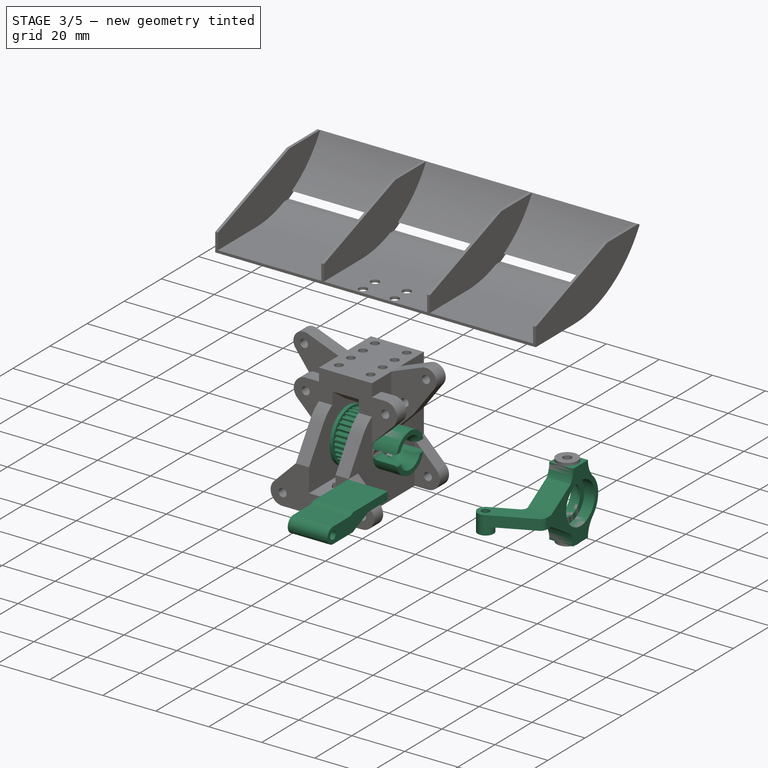
[diagram: stage 3 of 5 — iso view after this stage's code; geometry added in this stage tinted green]
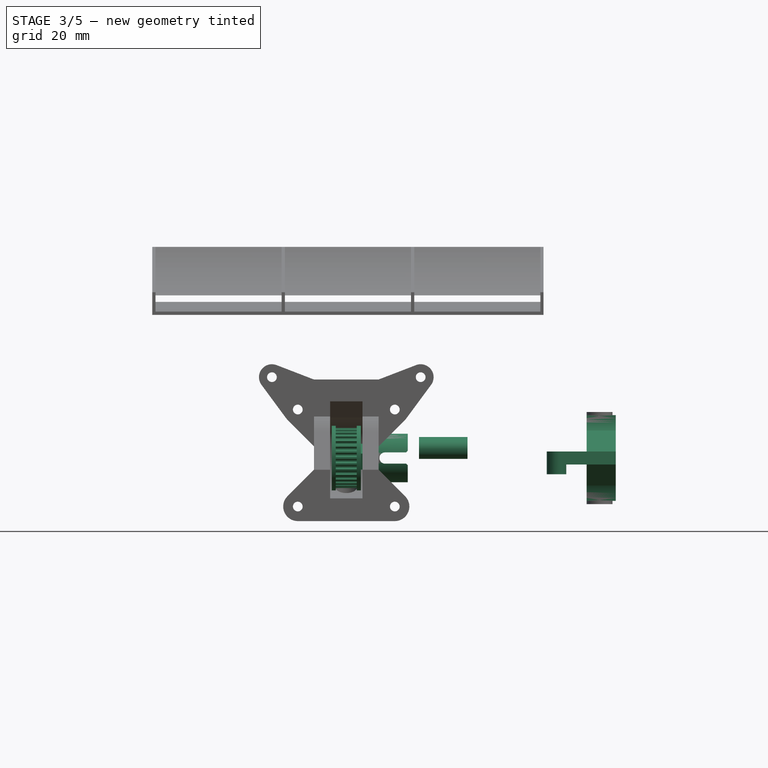
[diagram: stage 3 of 5 — front view after this stage's code; geometry added in this stage tinted green]
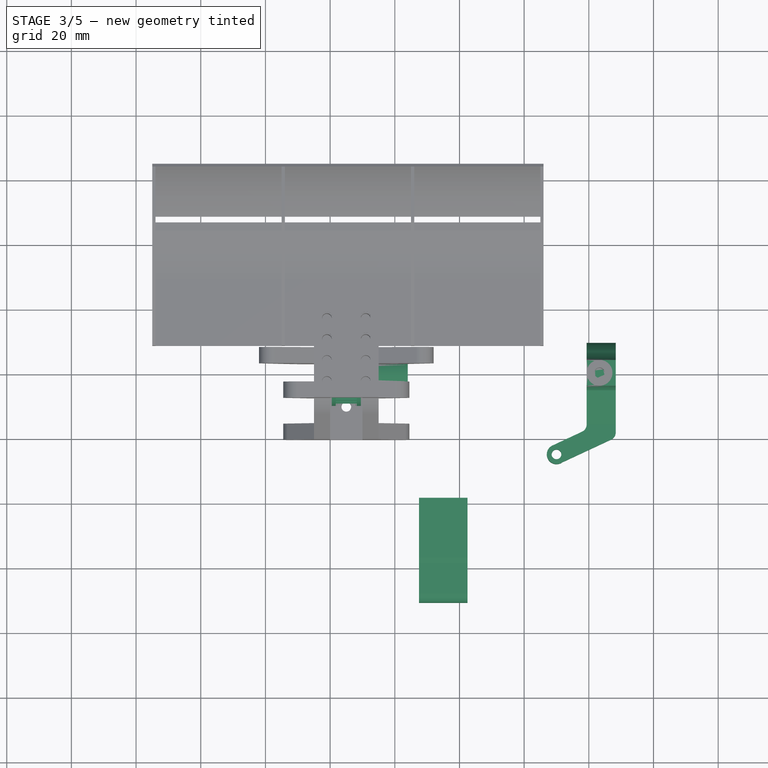
[diagram: stage 3 of 5 — top view after this stage's code; geometry added in this stage tinted green]
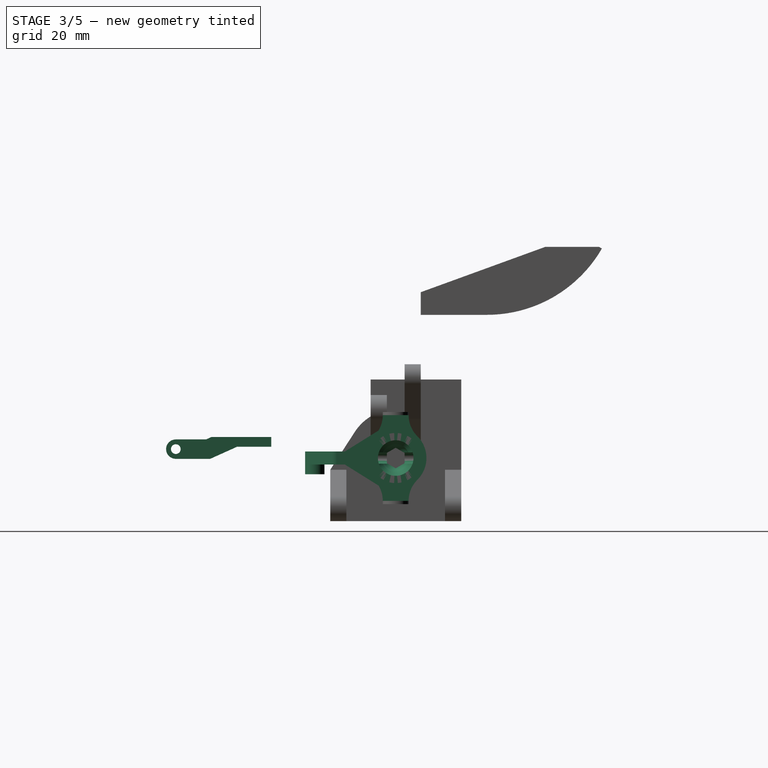
[diagram: stage 3 of 5 — right view after this stage's code; geometry added in this stage tinted green]
FEATURE [Sketcher::SketchObject] Sketch019
  ArcFitTolerance = 1e-06
  AttachmentSupport = -> [XZ_Plane005]
  ExternalBSplineMaxDegree = 5
  ExternalBSplineTolerance = 0.0001
  ExternalGeometry = -> [Pad007]
  FixShape = 1
  FullyConstrained = true
  InternalTolerance = 1e-06
  InvalidShape = false
  MakeInternals = false
  MapMode = 5
  Placement = pos=(0,0,0) rot=(1,0,0;1.5708rad)
  Support = -> [XZ_Plane005]
  TreeRank = 128
  ValidateShape = false
  sketch-geometry (1):
    g0: LineSegment StartX=59.3234 StartY=29.25 StartZ=0 EndX=59.3234 EndY=15 EndZ=0
  constraints (2):
    c: Coincident(g0,g-4)
    c: Symmetric(g0,g-3,g0)
FEATURE [Sketcher::SketchObject] Sketch020
  ArcFitTolerance = 1e-06
  AttachmentSupport = -> [Sketch019,YZ_Plane005]
  ExternalBSplineMaxDegree = 5
  ExternalBSplineTolerance = 0.0001
  ExternalGeometry = -> [Pad007]
  FixShape = 1
  FullyConstrained = true
  InternalTolerance = 1e-06
  InvalidShape = false
  MakeInternals = false
  MapMode = 6
  Placement = pos=(59.3234,-3.3e-15,15) rot=(0,1,0;1.5708rad)
  Support = -> [Sketch019,YZ_Plane005]
  TreeRank = 129
  ValidateShape = false
  sketch-geometry (8):
    g0: ArcOfCircle CenterX=0 CenterY=0 CenterZ=0 NormalX=0 NormalY=0 NormalZ=1 AngleXU=0 Radius=9.5 StartAngle=3.92473 EndAngle=5.50005
    g1: ArcOfCircle CenterX=-13.25 CenterY=13.1903 CenterZ=0 NormalX=0 NormalY=0 NormalZ=1 AngleXU=0 Radius=9.19616 StartAngle=4.71239 EndAngle=5.50005
    g2: ArcOfCircle CenterX=-13.25 CenterY=-13.1903 CenterZ=0 NormalX=0 NormalY=0 NormalZ=1 AngleXU=0 Radius=9.19616 StartAngle=0.78314 EndAngle=1.5708
    g3: ArcOfCircle CenterX=13.25 CenterY=-13.1903 CenterZ=0 NormalX=0 NormalY=0 NormalZ=1 AngleXU=0 Radius=9.19616 StartAngle=1.5708 EndAngle=2.35845
    g4: ArcOfCircle CenterX=13.25 CenterY=13.1903 CenterZ=0 NormalX=0 NormalY=0 NormalZ=1 AngleXU=0 Radius=9.19616 StartAngle=3.92473 EndAngle=4.71239
    g5: LineSegment StartX=13.25 StartY=3.99413 StartZ=0 EndX=13.25 EndY=-3.99413 EndZ=0
    g6: LineSegment StartX=-13.25 StartY=3.99413 StartZ=0 EndX=-13.25 EndY=-3.99413 EndZ=0
    g7: ArcOfCircle CenterX=0 CenterY=0 CenterZ=0 NormalX=0 NormalY=0 NormalZ=1 AngleXU=0 Radius=9.5 StartAngle=0.78314 EndAngle=2.35845
  constraints (23):
    c: Coincident(g0,g-1)
    c: Diameter(g0) = 19
    c: Coincident(g5,g4)
    c: Coincident(g5,g3)
    c: Coincident(g6,g1)
    c: Coincident(g6,g2)
    c: Vertical(g6)
    c: Vertical(g5)
    c: Horizontal(g1,g-3)
    c: Horizontal(g2,g-3)
    c: Horizontal(g3,g-3)
    c: Perpendicular(g4,g5)
    c: Perpendicular(g3,g5)
    c: Perpendicular(g1,g6)
    c: Perpendicular(g2,g6)
    c: DistanceX(g-3,g1) = 1
    c: Symmetric(g4,g1,g-2)
    c: Tangent(g0,g2) = 1.5708
    c: Tangent(g0,g3) = 1.5708
    c: Coincident(g7,g0)
    c: Tangent(g7,g1) = 1.5708
    c: Tangent(g7,g4) = 1.5708
    c: Equal(g0,g7)
FEATURE [PartDesign::Pad] Pad008
  AddSubType = 0
  AlongSketchNormal = false
  AutoTaperInnerAngle = true
  BaseFeature = -> Pad007
  CheckUpToFaceLimits = true
  ClaimChildren = false
  Direction = (1,-1e-16,2e-16)
  Fit = 0
  FitJoin = 0
  FixShape = 1
  InnerFit = 0
  InnerFitJoin = 0
  InvalidShape = false
  Length = 9
  Length2 = 100
  Linearize = true
  NewSolid = false
  Profile = -> Sketch020
  Refine = true
  Suppress = false
  TaperInnerAngle = 0
  TaperInnerAngleRev = 0
  TreeRank = 130
  Type = 0
  ValidateShape = false
  _ProfileBasedVersion = 1
FEATURE [Sketcher::SketchObject] Sketch021
  ArcFitTolerance = 1e-06
  AttachmentSupport = -> [Pad008]
  ExternalBSplineMaxDegree = 5
  ExternalBSplineTolerance = 0.0001
  ExternalGeometry = -> [Pad008]
  FixShape = 1
  FullyConstrained = true
  InternalTolerance = 1e-06
  InvalidShape = false
  MakeInternals = false
  MapMode = 5
  Placement = pos=(68.3234,0,0) rot=(0.57735,0.57735,0.57735;2.0944rad)
  Support = -> [Pad008]
  TreeRank = 131
  ValidateShape = false
  sketch-geometry (1):
    g0: Circle CenterX=0 CenterY=15 CenterZ=0 NormalX=0 NormalY=0 NormalZ=1 AngleXU=0 Radius=7.75
  constraints (2):
    c: Coincident(g0,g-3)
    c: Diameter(g0) = 15.5
FEATURE [PartDesign::Pocket] Pocket012
  AddSubType = 1
  AutoTaperInnerAngle = true
  BaseFeature = -> Pad008
  CheckUpToFaceLimits = true
  ClaimChildren = false
  Fit = 0
  FitJoin = 0
  FixShape = 1
  InnerFit = 0
  InnerFitJoin = 0
  InvalidShape = false
  Length = 4
  Length2 = 100
  Linearize = true
  NewSolid = false
  Profile = -> Sketch021
  Refine = true
  Suppress = false
  TaperInnerAngle = 0
  TaperInnerAngleRev = 0
  TreeRank = 132
  Type = 0
  ValidateShape = false
  _ProfileBasedVersion = 1
  _Version = 1
FEATURE [Sketcher::SketchObject] Sketch022
  ArcFitTolerance = 1e-06
  AttachmentSupport = -> [Pocket012]
  ExternalBSplineMaxDegree = 5
  ExternalBSplineTolerance = 0.0001
  ExternalGeometry = -> [Pocket012]
  FixShape = 1
  FullyConstrained = true
  InternalTolerance = 1e-06
  InvalidShape = false
  MakeInternals = false
  MapMode = 5
  Placement = pos=(59.3234,0,0) rot=(0.57735,-0.57735,-0.57735;2.0944rad)
  Support = -> [Pocket012]
  TreeRank = 133
  ValidateShape = false
FEATURE [PartDesign::Pocket] Pocket013
  AddSubType = 1
  AutoTaperInnerAngle = true
  BaseFeature = -> Pocket012
  CheckUpToFaceLimits = true
  ClaimChildren = false
  Fit = 0
  FitJoin = 0
  FixShape = 1
  InnerFit = 0
  InnerFitJoin = 0
  InvalidShape = false
  Length = 8
  Length2 = 100
  Linearize = true
  Midplane = true
  NewSolid = false
  Profile = -> Sketch022
  Refine = true
  Suppress = false
  TaperInnerAngle = 0
  TaperInnerAngleRev = 0
  TreeRank = 134
  Type = 0
  ValidateShape = false
  _ProfileBasedVersion = 1
  _Version = 1
FEATURE [Sketcher::SketchObject] Sketch023
  ArcFitTolerance = 1e-06
  AttachmentSupport = -> [Pocket013]
  ExternalBSplineMaxDegree = 5
  ExternalBSplineTolerance = 0.0001
  ExternalGeometry = -> [Pocket013]
  FixShape = 1
  FullyConstrained = true
  InternalTolerance = 1e-06
  InvalidShape = false
  MakeInternals = false
  MapMode = 5
  Placement = pos=(64.3234,0,0) rot=(0.57735,0.57735,0.57735;2.0944rad)
  Support = -> [Pocket013]
  TreeRank = 135
  ValidateShape = false
  sketch-geometry (1):
    g0: Circle CenterX=0 CenterY=15 CenterZ=0 NormalX=0 NormalY=0 NormalZ=1 AngleXU=0 Radius=5.5
  constraints (2):
    c: Coincident(g0,g-3)
    c: Diameter(g0) = 11
FEATURE [PartDesign::Pocket] Pocket014
  AddSubType = 1
  AutoTaperInnerAngle = true
  BaseFeature = -> Pocket013
  CheckUpToFaceLimits = true
  ClaimChildren = false
  Fit = 0
  FitJoin = 0
  FixShape = 1
  InnerFit = 0
  InnerFitJoin = 0
  InvalidShape = false
  Length = 5
  Length2 = 100
  Linearize = true
  Midplane = true
  NewSolid = false
  Profile = -> Sketch023
  Refine = true
  Suppress = false
  TaperInnerAngle = 0
  TaperInnerAngleRev = 0
  TreeRank = 136
  Type = 1
  ValidateShape = false
  _ProfileBasedVersion = 1
  _Version = 1
FEATURE [Sketcher::SketchObject] Sketch024
  ArcFitTolerance = 1e-06
  AttachmentSupport = -> [DatumPlane008]
  ExternalBSplineMaxDegree = 5
  ExternalBSplineTolerance = 0.0001
  ExternalGeometry = -> [Pocket014]
  FixShape = 1
  FullyConstrained = true
  InternalTolerance = 1e-06
  InvalidShape = false
  MakeInternals = false
  MapMode = 5
  Placement = pos=(50,-3.3e-15,15) rot=(0,0,1;3.14159rad)
  Support = -> [DatumPlane008]
  TreeRank = 138
  ValidateShape = false
  expr: Constraints[6] = <<d>>.bolt_tight
  sketch-geometry (9):
    g0: LineSegment StartX=-18.3234 StartY=7.75 StartZ=0 EndX=-9.32345 EndY=7.75 EndZ=0
    g1: LineSegment StartX=-9.32345 StartY=7.75 StartZ=0 EndX=-9.32345 EndY=15.75 EndZ=0
    g2: LineSegment StartX=-18.3234 StartY=7.75 StartZ=0 EndX=-18.3234 EndY=18.1738 EndZ=0
    g3: LineSegment StartX=-16.8799 StartY=20.4396 StartZ=0 EndX=-1.26776 EndY=27.719 EndZ=0
    g4: LineSegment StartX=-7.87991 StartY=18.0158 StartZ=0 EndX=1.26776 EndY=22.281 EndZ=0
    g5: ArcOfCircle CenterX=0 CenterY=25 CenterZ=0 NormalX=0 NormalY=0 NormalZ=1 AngleXU=0 Radius=3 StartAngle=5.14868 EndAngle=8.29028
    g6: Circle CenterX=0 CenterY=25 CenterZ=0 NormalX=0 NormalY=0 NormalZ=1 AngleXU=0 Radius=1.5
    g7: ArcOfCircle CenterX=-15.8234 CenterY=18.1738 CenterZ=0 NormalX=0 NormalY=0 NormalZ=1 AngleXU=0 Radius=2.5 StartAngle=2.00709 EndAngle=3.14159
    g8: ArcOfCircle CenterX=-6.82345 CenterY=15.75 CenterZ=0 NormalX=0 NormalY=0 NormalZ=1 AngleXU=0 Radius=2.5 StartAngle=2.00709 EndAngle=3.14159
  constraints (21):
    c: Coincident(g0,g-3)
    c: Coincident(g0,g-4)
    c: Coincident(g1,g0)
    c: Coincident(g2,g0)
    c: Vertical(g2)
    c: Coincident(g6,g5)
    c: Diameter(g6) = 3
    c: Diameter(g5) = 6
    c: Tangent(g5,g3) = 1.5708
    c: Tangent(g5,g4) = -1.5708
    c: Tangent(g2,g7) = 1.5708
    c: Tangent(g3,g7) = 1.5708
    c: Tangent(g1,g8) = 1.5708
    c: Tangent(g4,g8) = 1.5708
    c: Diameter(g8) = 5
    c: Diameter(g7) = 5
    c: Vertical(g1)
    c: Parallel(g4,g3)
    c: DistanceY(g-1,g5) = 25
    c: Vertical(g-1,g5)
    c: DistanceY(g1,g1) = 8
FEATURE [PartDesign::Pad] Pad009
  AddSubType = 0
  AlongSketchNormal = false
  AutoTaperInnerAngle = true
  BaseFeature = -> Pocket014
  CheckUpToFaceLimits = true
  ClaimChildren = false
  Direction = (0,0,1)
  Fit = 0
  FitJoin = 0
  FixShape = 1
  InnerFit = 0
  InnerFitJoin = 0
  InvalidShape = false
  Length = 4
  Length2 = 100
  Linearize = true
  Midplane = true
  NewSolid = false
  Profile = -> Sketch024
  Refine = true
  Suppress = false
  TaperInnerAngle = 0
  TaperInnerAngleRev = 0
  TreeRank = 139
  Type = 0
  ValidateShape = false
  _ProfileBasedVersion = 1
FEATURE [Sketcher::SketchObject] Sketch035
  ArcFitTolerance = 1e-06
  AttachmentSupport = -> [XY_Plane005]
  ExternalBSplineMaxDegree = 5
  ExternalBSplineTolerance = 0.0001
  ExternalGeometry = -> [Pad009]
  FixShape = 1
  FullyConstrained = true
  InternalTolerance = 1e-06
  InvalidShape = false
  MakeInternals = false
  MapMode = 5
  Support = -> [XY_Plane005]
  TreeRank = 188
  ValidateShape = false
FEATURE [PartDesign::Pocket] Pocket021
  AddSubType = 1
  AutoTaperInnerAngle = true
  BaseFeature = -> Pad009
  CheckUpToFaceLimits = true
  ClaimChildren = false
  Fit = 0
  FitJoin = 0
  FixShape = 1
  InnerFit = 0
  InnerFitJoin = 0
  InvalidShape = false
  Length = 7
  Length2 = 100
  Linearize = true
  NewSolid = false
  Profile = -> Sketch035
  Refine = true
  Reversed = true
  Suppress = false
  TaperInnerAngle = 0
  TaperInnerAngleRev = 0
  TreeRank = 189
  Type = 0
  ValidateShape = false
  _ProfileBasedVersion = 1
  _Version = 1
FEATURE [PartDesign::Mirrored] Mirrored008
  AddSubType = 0
  BaseFeature = -> Pocket021
  CopyShape = false
  FixShape = 1
  InvalidShape = false
  MirrorPlane = -> DatumPlane008
  NewSolid = false
  OriginalSubs = -> [Pocket021]
  Originals = -> [Pocket021]
  ParallelTransform = true
  Refine = true
  SubTransform = true
  Suppress = false
  TreeRank = 190
  ValidateShape = false
  _Version = 3
FEATURE [PartDesign::Body] Body011  label="steering_clamp"
  AutoGroupSolids = false
  ClaimAllChildren = false
  ExportMode = 0
  FixShape = 1
  Group = -> [Sketch050,Import025,Pad019,Sketch051,Pad020,Import026,Sketch052,Pad021,Chamfer003]
  InvalidShape = false
  Origin = -> Origin011
  Tip = -> Chamfer003
  TreeRank = 287
  ValidateShape = false
  _ExportChildren = -> [Import025,Pad019,Pad020,Import026,Pad021,Chamfer003]
  _GroupVersion = 1
FEATURE [Part::SubShapeBinder] Import027  label="Import027(Pocket020)"
  BindCopyOnChange = 0
  BindMode = 0
  ClaimChildren = false
  Context = -> Body010 [Import027.]
  EdgeTolerance = 1e-06
  FillStyle = 0
  FixShape = 1
  Fuse = false
  InvalidShape = false
  MakeFace = false
  MergeEdges = true
  OffsetFill = false
  OffsetIntersection = false
  OffsetJoinType = 0
  OffsetOpenResult = false
  Outline = false
  PartialLoad = false
  Relative = true
  SplitEdges = false
  Support = -> [Body006[Pocket020.]]
  TightBound = false
  TreeRank = 299
  ValidateShape = false
  _Version = 8
FEATURE [Sketcher::SketchObject] Sketch053  label="gear_ref"
  ArcFitTolerance = 1e-06
  AttachmentSupport = -> [XZ_Plane010]
  ExternalBSplineMaxDegree = 5
  ExternalBSplineTolerance = 0.0001
  ExternalGeometry = -> [Import027]
  FixShape = 1
  FullyConstrained = true
  InternalTolerance = 1e-06
  InvalidShape = false
  MakeInternals = false
  MapMode = 5
  Placement = pos=(0,0,0) rot=(1,0,0;1.5708rad)
  Support = -> [XZ_Plane010]
  TreeRank = 298
  ValidateShape = false
  sketch-geometry (6):
    g0: LineSegment StartX=-20 StartY=17.268 StartZ=0 EndX=-19.5 EndY=17.268 EndZ=0
    g1: LineSegment StartX=-19.5 StartY=17.268 StartZ=0 EndX=-10.5 EndY=17.268 EndZ=0
    g2: LineSegment StartX=-10.5 StartY=17.268 StartZ=0 EndX=-10 EndY=17.268 EndZ=0
    g3: LineSegment StartX=-18.25 StartY=17.268 StartZ=0 EndX=-11.75 EndY=17.268 EndZ=0
    g4: GeomPoint [constr] X=-15 Y=17.268 Z=0
    g5: LineSegment StartX=-15 StartY=17.268 StartZ=0 EndX=-15 EndY=12.268 EndZ=0
  constraints (17):
    c: Coincident(g1,g0)
    c: Horizontal(g1)
    c: Coincident(g2,g1)
    c: PointOnObject(g2,g-4)
    c: Horizontal(g2)
    c: Horizontal(g0)
    c: Equal(g0,g2)
    c: DistanceX(g2,g2) = 0.5
    c: Symmetric(g-3,g-3,g0)
    c: DistanceX(g1,g1) = 9  'gear_width'
    c: PointOnObject(g3,g1)
    c: DistanceX(g3,g3) = 6.5
    c: Symmetric(g0,g1,g4)
    c: Symmetric(g3,g3,g4)
    c: Coincident(g5,g4)
    c: Vertical(g5)
    c: DistanceY(g5,g5) = 5
FEATURE [PartDesign::Plane] DatumPlane013
  AttachmentSupport = -> [DatumLine003,Sketch053]
  FixShape = 1
  InvalidShape = false
  Length = 10
  MapMode = 7
  MinimumLength = 10
  MinimumWidth = 10
  Placement = pos=(-19.5,-3.3e-15,15) rot=(0.57735,-0.57735,-0.57735;2.0944rad)
  ResizeMode = 0
  Support = -> [DatumLine003,Sketch053]
  TreeRank = 297
  ValidateShape = false
  Width = 15
FEATURE [PartDesign::FeaturePython] TimingGear  # WARN: FeaturePython — macro-defined, semantics opaque (R4)
  AttacherType = Attacher::AttachEngine3D
  AttachmentSupport = -> [DatumPlane013]
  FixShape = 1
  InvalidShape = false
  MapMode = 5
  NewSolid = false
  Placement = pos=(-19.5,-3.3e-15,15) rot=(0.57735,0.57735,0.57735;2.0944rad)
  Support = -> [DatumPlane013]
  Suppress = false
  TreeRank = 300
  ValidateShape = false
  h = 0.75
  height = 9
  offset = 0.4
  pitch = 2
  r0 = 0.555
  r1 = 1
  rs = 0.15
  teeth = 30
  type = 0
  u = 0.254
  version = 0.0.4
  expr: height = <<gear_ref>>.Constraints.gear_width
FEATURE [Sketcher::SketchObject] Sketch054
  ArcFitTolerance = 1e-06
  AttachmentSupport = -> [DatumPlane013]
  ExternalBSplineMaxDegree = 5
  ExternalBSplineTolerance = 0.0001
  ExternalGeometry = -> [Import027]
  FixShape = 1
  FullyConstrained = false
  InternalTolerance = 1e-06
  InvalidShape = false
  MakeInternals = false
  MapMode = 5
  Placement = pos=(-19.5,-3.3e-15,15) rot=(-0.57735,0.57735,0.57735;4.18879rad)
  Support = -> [DatumPlane013]
  TreeRank = 301
  ValidateShape = false
  sketch-geometry (1):
    g0: Circle CenterX=0 CenterY=0 CenterZ=0 NormalX=0 NormalY=0 NormalZ=1 AngleXU=0 Radius=10
  constraints (1):
    c: Diameter(g0) = 20
FEATURE [PartDesign::Plane] DatumPlane014
  AttachmentSupport = -> [Sketch053,DatumPlane013]
  FixShape = 1
  InvalidShape = false
  Length = 10
  MapMode = 6
  MinimumLength = 10
  MinimumWidth = 10
  Placement = pos=(-18.25,-3.8e-15,17.268) rot=(-0.57735,-0.57735,0.57735;2.0944rad)
  ResizeMode = 0
  Support = -> [Sketch053,DatumPlane013]
  TreeRank = 302
  ValidateShape = false
  Width = 16.2302
FEATURE [PartDesign::Pad] Pad022
  AddSubType = 0
  AlongSketchNormal = false
  AutoTaperInnerAngle = true
  BaseFeature = -> TimingGear
  CheckUpToFaceLimits = true
  ClaimChildren = false
  Direction = (-1,2e-16,2e-16)
  Fit = 0
  FitJoin = 0
  FixShape = 1
  InnerFit = 0
  InnerFitJoin = 0
  InvalidShape = false
  Length = 10
  Length2 = 100
  Linearize = true
  NewSolid = false
  Profile = -> Sketch054
  Refine = true
  Suppress = false
  TaperInnerAngle = 0
  TaperInnerAngleRev = 0
  TreeRank = 303
  Type = 3
  UpToFace = -> DatumPlane014
  ValidateShape = false
  _ProfileBasedVersion = 1
FEATURE [PartDesign::Plane] DatumPlane015  label="midplane001"
  AttachmentSupport = -> [Sketch053,DatumPlane013]
  FixShape = 1
  InvalidShape = false
  Length = 10
  MapMode = 6
  MinimumLength = 10
  MinimumWidth = 10
  Placement = pos=(-15,-3.8e-15,17.268) rot=(-0.57735,-0.57735,0.57735;2.0944rad)
  ResizeMode = 0
  Support = -> [Sketch053,DatumPlane013]
  TreeRank = 304
  ValidateShape = false
  Width = 16.2302
FEATURE [PartDesign::Mirrored] Mirrored009
  AddSubType = 0
  BaseFeature = -> Pad022
  CopyShape = false
  FixShape = 1
  InvalidShape = false
  MirrorPlane = -> DatumPlane015
  NewSolid = false
  OriginalSubs = -> [Pad022]
  Originals = -> [Pad022]
  ParallelTransform = true
  Refine = true
  SubTransform = true
  Suppress = false
  TreeRank = 305
  ValidateShape = false
  _Version = 3
FEATURE [Sketcher::SketchObject] Sketch055
  ArcFitTolerance = 1e-06
  AttachmentSupport = -> [Mirrored009]
  ExternalBSplineMaxDegree = 5
  ExternalBSplineTolerance = 0.0001
  ExternalGeometry = -> [Mirrored009]
  FixShape = 1
  FullyConstrained = true
  InternalTolerance = 1e-06
  InvalidShape = false
  MakeInternals = false
  MapMode = 5
  Placement = pos=(-10.5,2.3e-15,2.3e-15) rot=(0.57735,0.57735,0.57735;2.0944rad)
  Support = -> [Mirrored009]
  TreeRank = 306
  ValidateShape = false
  sketch-geometry (6):
    g0: LineSegment StartX=0 StartY=19.5605 StartZ=0 EndX=-4.33728 EndY=16.4093 EndZ=0
    g1: LineSegment StartX=-4.33728 StartY=16.4093 StartZ=0 EndX=-2.68059 EndY=11.3105 EndZ=0
    g2: LineSegment StartX=-2.68059 StartY=11.3105 StartZ=0 EndX=2.68059 EndY=11.3105 EndZ=0
    g3: LineSegment StartX=2.68059 StartY=11.3105 StartZ=0 EndX=4.33728 EndY=16.4093 EndZ=0
    g4: LineSegment StartX=4.33728 StartY=16.4093 StartZ=0 EndX=0 EndY=19.5605 EndZ=0
    g5: Circle [constr] CenterX=-7.6e-15 CenterY=15 CenterZ=0 NormalX=0 NormalY=0 NormalZ=1 AngleXU=0 Radius=4.56049
  constraints (14):
    c: Coincident(g0,g1)
    c: Coincident(g1,g2)
    c: Coincident(g2,g3)
    c: Coincident(g3,g4)
    c: Coincident(g4,g0)
    c: Equal(g0, g1-g4) x4
    c: PointOnObject(g0,g5)
    c: PointOnObject(g1,g5)
    c: PointOnObject(g2,g5)
    c: PointOnObject(g3,g5)
    c: PointOnObject(g4,g5)
    c: Coincident(g5,g-3)
    c: PointOnObject(g4,g-2)
    c: DistanceY(g2,g0) = 8.25
FEATURE [PartDesign::Plane] DatumPlane016
  AttachmentSupport = -> [DatumPlane015]
  FixShape = 1
  InvalidShape = false
  Length = 19.9837
  MapMode = 5
  MinimumLength = 10
  MinimumWidth = 10
  Placement = pos=(-15,-3.8e-15,17.268) rot=(-0.57735,-0.57735,0.57735;2.0944rad)
  ResizeMode = 0
  Support = -> [DatumPlane015]
  TreeRank = 307
  ValidateShape = false
  Width = 19.9918
FEATURE [PartDesign::Pocket] Pocket026
  AddSubType = 1
  AutoTaperInnerAngle = true
  BaseFeature = -> Mirrored009
  CheckUpToFaceLimits = true
  ClaimChildren = false
  Fit = 0
  FitJoin = 0
  FixShape = 1
  InnerFit = 0
  InnerFitJoin = 0
  InvalidShape = false
  Length = 0
  Length2 = 100
  Linearize = true
  NewSolid = false
  Profile = -> Sketch055
  Refine = true
  Suppress = false
  TaperInnerAngle = 0
  TaperInnerAngleRev = 0
  TreeRank = 308
  Type = 3
  UpToFace = -> DatumPlane016
  ValidateShape = false
  _ProfileBasedVersion = 1
  _Version = 1
FEATURE [PartDesign::Mirrored] Mirrored010
  AddSubType = 0
  BaseFeature = -> Pocket026
  CopyShape = false
  FixShape = 1
  InvalidShape = false
  MirrorPlane = -> DatumPlane015
  NewSolid = false
  OriginalSubs = -> [Pocket026]
  Originals = -> [Pocket026]
  ParallelTransform = true
  Refine = true
  SubTransform = true
  Suppress = false
  TreeRank = 309
  ValidateShape = false
  _Version = 3
FEATURE [Part::SubShapeBinder] Import041  label="Import041(Sketch057)"
  BindCopyOnChange = 0
  BindMode = 0
  ClaimChildren = false
  Context = -> Body013 [Import041.]
  EdgeTolerance = 1e-06
  FillStyle = 0
  FixShape = 1
  Fuse = false
  InvalidShape = false
  MakeFace = false
  MergeEdges = true
  OffsetFill = false
  OffsetIntersection = false
  OffsetJoinType = 0
  OffsetOpenResult = false
  Outline = false
  PartialLoad = false
  Relative = true
  SplitEdges = false
  Support = -> [Body012[Sketch057.]]
  TightBound = false
  TreeRank = 420
  ValidateShape = false
  _Version = 8
FEATURE [Sketcher::SketchObject] Sketch062
  ArcFitTolerance = 1e-06
  AttachmentOffset = pos=(0,0,0) rot=(0,0,1;1.5708rad)
  AttachmentSupport = -> [Mirrored008]
  ExternalBSplineMaxDegree = 5
  ExternalBSplineTolerance = 0.0001
  ExternalGeometry = -> [Import041]
  FixShape = 1
  FullyConstrained = true
  InternalTolerance = 1e-06
  InvalidShape = false
  MakeInternals = false
  MapMode = 5
  Placement = pos=(0,0,17) rot=(0,0,1;1.5708rad)
  Support = -> [Mirrored008]
  TreeRank = 343
  ValidateShape = false
  sketch-geometry (11):
    g0: ArcOfCircle CenterX=-25 CenterY=-0.0118279 CenterZ=0 NormalX=0 NormalY=0 NormalZ=1 AngleXU=0 Radius=3 StartAngle=4.71239 EndAngle=7.85398
    g1: LineSegment StartX=-25 StartY=2.98817 StartZ=0 EndX=-43.2661 EndY=2.98817 EndZ=0
    g2: LineSegment StartX=-25 StartY=-3.01183 StartZ=0 EndX=-40 EndY=-3.01183 EndZ=0
    g3: LineSegment StartX=-40 StartY=-3.01183 StartZ=0 EndX=-40 EndY=-15 EndZ=0
    g4: ArcOfCircle CenterX=-43 CenterY=-15 CenterZ=0 NormalX=0 NormalY=0 NormalZ=1 AngleXU=0 Radius=3 StartAngle=3.14159 EndAngle=6.28319
    g5: LineSegment StartX=-46 StartY=-15 StartZ=0 EndX=-46 EndY=1.1311e-07 EndZ=0
    g6: ArcOfCircle CenterX=-43 CenterY=0 CenterZ=0 NormalX=0 NormalY=0 NormalZ=1 AngleXU=0 Radius=3 StartAngle=1.65962 EndAngle=3.14159
    g7: Circle CenterX=-43 CenterY=-15 CenterZ=0 NormalX=0 NormalY=0 NormalZ=1 AngleXU=0 Radius=1.5
    g8: Circle CenterX=-25 CenterY=-0.0118279 CenterZ=0 NormalX=0 NormalY=0 NormalZ=1 AngleXU=0 Radius=1.5
    g9: Circle CenterX=-43 CenterY=0 CenterZ=0 NormalX=0 NormalY=0 NormalZ=1 AngleXU=0 Radius=1.6
    g10: Circle CenterX=-34 CenterY=-0.00591397 CenterZ=0 NormalX=0 NormalY=0 NormalZ=1 AngleXU=0 Radius=1.6
  constraints (27):
    c: Horizontal(g1)
    c: Horizontal(g2)
    c: Coincident(g3,g2)
    c: Vertical(g5)
    c: Vertical(g3)
    c: Tangent(g2,g0) = 1.5708
    c: Tangent(g1,g0) = -1.5708
    c: Tangent(g4,g3) = 1.5708
    c: Tangent(g5,g4) = 1.5708
    c: Equal(g0,g4)
    c: Coincident(g6,g5)
    c: Coincident(g6,g1)
    c: Equal(g6,g4)
    c: Radius(g4) = 3
    c: PointOnObject(g6,g-1)
    c: Vertical(g4,g6)
    c: DistanceX(g6,g0) = 18
    c: DistanceY(g4,g6) = 15
    c: Coincident(g7,g4)
    c: Coincident(g8,g0)
    c: Coincident(g9,g6)
    c: Diameter(g9) = 3.2
    c: Diameter(g7) = 3
    c: Symmetric(g6,g0,g10)
    c: Symmetric(g-3,g-3,g0)
    c: Diameter(g10) = 3.2
    c: Diameter(g8) = 3
FEATURE [PartDesign::Pad] Pad024
  AddSubType = 0
  AlongSketchNormal = false
  AutoTaperInnerAngle = true
  CheckUpToFaceLimits = true
  ClaimChildren = false
  Direction = (0,0,1)
  Fit = 0
  FitJoin = 0
  FixShape = 1
  InnerFit = 0
  InnerFitJoin = 0
  InvalidShape = false
  Length = 3
  Length2 = 100
  Linearize = true
  NewSolid = true
  Profile = -> Sketch062
  Refine = true
  Reversed = true
  Suppress = false
  TaperInnerAngle = 0
  TaperInnerAngleRev = 0
  TreeRank = 344
  Type = 0
  ValidateShape = false
  _ProfileBasedVersion = 1
FEATURE [PartDesign::Body] Body015  label="steering_linkage"
  AutoGroupSolids = false
  ClaimAllChildren = false
  ExportMode = 0
  FixShape = 1
  Group = -> [Sketch064,Import034,Import035,Import037,Import036,Pad026,Sketch065,Sketch066]
  InvalidShape = false
  Origin = -> Origin015
  Tip = -> Pad026
  TreeRank = 370
  ValidateShape = false
  _ExportChildren = -> [Import034,Import035,Import037,Import036,Pad026,Sketch065,Sketch066]
  _GroupVersion = 1
FEATURE [PartDesign::Fillet] Fillet002
  AddSubType = 0
  Base = -> Pad024 [Edge17]
  BaseFeature = -> Pad024
  FixShape = 1
  InvalidShape = false
  NewSolid = false
  Radius = 2
  Refine = true
  SupportTransform = false
  Suppress = false
  TreeRank = 375
  ValidateShape = false
FEATURE [Part::SubShapeBinder] Import043  label="Import043(Fillet002)"
  BindCopyOnChange = 0
  BindMode = 0
  ClaimChildren = false
  Context = -> Body018 [Import043.]
  EdgeTolerance = 1e-06
  FillStyle = 0
  FixShape = 1
  Fuse = false
  InvalidShape = false
  MakeFace = false
  MergeEdges = true
  OffsetFill = false
  OffsetIntersection = false
  OffsetJoinType = 0
  OffsetOpenResult = false
  Outline = false
  PartialLoad = false
  Relative = true
  SplitEdges = false
  Support = -> [Body013[Fillet002.]]
  TightBound = false
  TreeRank = 440
  ValidateShape = false
  _Version = 8
FEATURE [Sketcher::SketchObject] Sketch079
  ArcFitTolerance = 1e-06
  AttachmentSupport = -> [Fillet002]
  ExternalBSplineMaxDegree = 5
  ExternalBSplineTolerance = 0.0001
  ExternalGeometry = -> [Import043]
  FixShape = 1
  FullyConstrained = false
  InternalTolerance = 1e-06
  InvalidShape = false
  MakeInternals = false
  MapMode = 5
  Placement = pos=(0,0,17) rot=(0,0,1;0rad)
  Support = -> [Fillet002]
  TreeRank = 439
  ValidateShape = false
  sketch-geometry (1):
    g0: LineSegment StartX=15 StartY=-43 StartZ=0 EndX=4.6198 EndY=-43 EndZ=0
  constraints (2):
    c: Coincident(g0,g-3)
    c: Horizontal(g0)
FEATURE [PartDesign::Plane] DatumPlane020
  AttachmentSupport = -> [Sketch079]
  FixShape = 1
  InvalidShape = false
  Length = 32.4976
  MapMode = 7
  MinimumLength = 10
  MinimumWidth = 10
  Placement = pos=(15,-43,17) rot=(0.57735,0.57735,0.57735;2.0944rad)
  ResizeMode = 0
  Support = -> [Sketch079]
  TreeRank = 441
  ValidateShape = false
  Width = 10
FEATURE [Part::SubShapeBinder] Import044  label="Import044(Pocket011)"
  BindCopyOnChange = 0
  BindMode = 0
  ClaimChildren = false
  Context = -> Body018 [Import044.]
  EdgeTolerance = 1e-06
  FillStyle = 0
  FixShape = 1
  Fuse = false
  InvalidShape = false
  MakeFace = false
  MergeEdges = true
  OffsetFill = false
  OffsetIntersection = false
  OffsetJoinType = 0
  OffsetOpenResult = false
  Outline = false
  PartialLoad = false
  Relative = true
  SplitEdges = false
  Support = -> [Body004[Pocket011.]]
  TightBound = false
  TreeRank = 443
  ValidateShape = false
  _Version = 8
FEATURE [Sketcher::SketchObject] Sketch080  label="slav2_shape"
  ArcFitTolerance = 1e-06
  AttachmentSupport = -> [DatumPlane020]
  ExternalBSplineMaxDegree = 5
  ExternalBSplineTolerance = 0.0001
  ExternalGeometry = -> [Import044]
  FixShape = 1
  FullyConstrained = true
  InternalTolerance = 1e-06
  InvalidShape = false
  MakeInternals = false
  MapMode = 5
  Placement = pos=(15,-43,17) rot=(0.57735,0.57735,0.57735;2.0944rad)
  Support = -> [DatumPlane020]
  TreeRank = 442
  ValidateShape = false
  sketch-geometry (7):
    g0: LineSegment StartX=0 StartY=3 StartZ=0 EndX=-10 EndY=3 EndZ=0
    g1: LineSegment StartX=-10 StartY=3 StartZ=0 EndX=-15 EndY=0.75 EndZ=0
    g2: LineSegment StartX=-15 StartY=0.75 StartZ=0 EndX=-25 EndY=0.75 EndZ=0
    g3: Circle CenterX=0 CenterY=3 CenterZ=0 NormalX=0 NormalY=0 NormalZ=1 AngleXU=0 Radius=3
    g4: Circle CenterX=-25 CenterY=0.75 CenterZ=0 NormalX=0 NormalY=0 NormalZ=1 AngleXU=0 Radius=3
    g5: LineSegment StartX=-25 StartY=-20.5 StartZ=0 EndX=-25 EndY=-14.25 EndZ=0
    g6: LineSegment StartX=-25 StartY=-14.25 StartZ=0 EndX=-25 EndY=0.75 EndZ=0
  constraints (20):
    c: PointOnObject(g0,g-2)
    c: Horizontal(g0)
    c: Coincident(g1,g0)
    c: Coincident(g2,g1)
    c: Horizontal(g2)
    c: Coincident(g3,g0)
    c: Coincident(g4,g2)
    c: Equal(g4,g3)
    c: Diameter(g4) = 6
    c: DistanceX(g2,g2) = 10
    c: DistanceX(g0,g0) = 10
    c: Vertical(g5)
    c: Coincident(g6,g5)
    c: Coincident(g6,g2)
    c: Vertical(g6)
    c: DistanceY(g5,g5) = 6.25
    c: DistanceY(g6,g6) = 15  'servo_saver_length'
    c: Horizontal(g-3,g5)
    c: DistanceX(g1,g0) = 5
    c: PointOnObject(g-1,g3)
FEATURE [Sketcher::SketchObject] Sketch081
  ArcFitTolerance = 1e-06
  AttachmentSupport = -> [DatumPlane020]
  ExternalBSplineMaxDegree = 5
  ExternalBSplineTolerance = 0.0001
  ExternalGeometry = -> [Sketch080]
  FixShape = 1
  FullyConstrained = true
  InternalTolerance = 1e-06
  InvalidShape = false
  MakeInternals = false
  MapMode = 5
  Placement = pos=(15,-43,17) rot=(0.57735,0.57735,0.57735;2.0944rad)
  Support = -> [DatumPlane020]
  TreeRank = 444
  ValidateShape = false
  sketch-geometry (13):
    g0: ArcOfCircle CenterX=-25 CenterY=0.75 CenterZ=0 NormalX=0 NormalY=0 NormalZ=1 AngleXU=0 Radius=3 StartAngle=1.5708 EndAngle=4.71239
    g1: LineSegment StartX=4.5 StartY=4.5 StartZ=0 EndX=-13.9772 EndY=4.5 EndZ=0
    g2: LineSegment StartX=-13.9772 StartY=4.5 StartZ=0 EndX=-15.6439 EndY=3.75 EndZ=0
    g3: LineSegment StartX=-15.6439 StartY=3.75 StartZ=0 EndX=-25 EndY=3.75 EndZ=0
    g4: LineSegment StartX=-25 StartY=-2.25 StartZ=0 EndX=-14.3561 EndY=-2.25 EndZ=0
    g5: LineSegment StartX=-14.3561 StartY=-2.25 StartZ=0 EndX=-6.02276 EndY=1.5 EndZ=0
    g6: LineSegment StartX=-6.02276 StartY=1.5 StartZ=0 EndX=4.5 EndY=1.5 EndZ=0
    g7: LineSegment [constr] StartX=-15.6439 StartY=3.75 StartZ=0 EndX=-13.1817 EndY=-1.72153 EndZ=0
    g8: LineSegment [constr] StartX=-15.6439 StartY=3.75 StartZ=0 EndX=-15.6439 EndY=-2.25 EndZ=0
    g9: GeomPoint [constr] X=-14.4128 Y=1.01424 Z=0
    g10: LineSegment StartX=4.5 StartY=4.5 StartZ=0 EndX=4.5 EndY=1.5 EndZ=0
    g11: LineSegment [constr] StartX=3 StartY=3 StartZ=0 EndX=4.5 EndY=3 EndZ=0
    g12: Circle CenterX=-25 CenterY=0.75 CenterZ=0 NormalX=0 NormalY=0 NormalZ=1 AngleXU=0 Radius=1.5
  constraints (34):
    c: Coincident(g0,g-3)
    c: Horizontal(g1)
    c: Coincident(g2,g1)
    c: Coincident(g3,g2)
    c: Horizontal(g4)
    c: Coincident(g5,g4)
    c: Coincident(g6,g5)
    c: Horizontal(g6)
    c: Horizontal(g3)
    c: Tangent(g3,g0) = -1.5708
    c: Tangent(g4,g0) = -1.5708
    c: Parallel(g5,g-4)
    c: Parallel(g-4,g2)
    c: PointOnObject(g7,g5)
    c: PointOnObject(g8,g4)
    c: Vertical(g8)
    c: Perpendicular(g2,g7)
    c: Equal(g7,g8)
    c: PointOnObject(g9,g-4)
    c: Symmetric(g7,g7,g9)
    c: Coincident(g8,g2)
    c: Coincident(g7,g2)
    c: Coincident(g10,g1)
    c: Coincident(g10,g6)
    c: DistanceY(g10,g10) = 3
    c: Symmetric(g1,g6,g-5)
    c: PointOnObject(g11,g-7)
    c: PointOnObject(g11,g10)
    c: Horizontal(g11)
    c: Perpendicular(g-7,g11)
    c: DistanceX(g11,g11) = 1.5
    c: Coincident(g12,g0)
    c: Diameter(g12) = 3
    c: Diameter(g0) = 6
FEATURE [PartDesign::Pad] Pad030
  AddSubType = 0
  AlongSketchNormal = false
  AutoTaperInnerAngle = true
  CheckUpToFaceLimits = true
  ClaimChildren = false
  Direction = (1,0,0)
  Fit = 0
  FitJoin = 0
  FixShape = 1
  InnerFit = 0
  InnerFitJoin = 0
  InvalidShape = false
  Length = 15
  Length2 = 100
  Linearize = true
  Midplane = true
  NewSolid = false
  Profile = -> Sketch081
  Refine = true
  Suppress = false
  TaperInnerAngle = 0
  TaperInnerAngleRev = 0
  TreeRank = 445
  Type = 0
  ValidateShape = false
  _ProfileBasedVersion = 1
FEATURE [Sketcher::SketchObject] Sketch100
  ArcFitTolerance = 1e-06
  AttachmentSupport = -> [YZ_Plane010]
  ExternalBSplineMaxDegree = 5
  ExternalBSplineTolerance = 0.0001
  ExternalGeometry = -> [Mirrored010]
  FixShape = 1
  FullyConstrained = true
  InternalTolerance = 1e-06
  InvalidShape = false
  MakeInternals = false
  MapMode = 5
  Placement = pos=(0,0,0) rot=(0.57735,0.57735,0.57735;2.0944rad)
  Support = -> [YZ_Plane010]
  TreeRank = 493
  ValidateShape = false
  sketch-geometry (1):
    g0: Circle CenterX=0 CenterY=15 CenterZ=0 NormalX=0 NormalY=0 NormalZ=1 AngleXU=0 Radius=1.6
  constraints (2):
    c: Coincident(g0,g-3)
    c: Diameter(g0) = 3.2
FEATURE [PartDesign::Pocket] Pocket036
  AddSubType = 1
  AutoTaperInnerAngle = true
  BaseFeature = -> Mirrored010
  CheckUpToFaceLimits = true
  ClaimChildren = false
  Fit = 0
  FitJoin = 0
  FixShape = 1
  InnerFit = 0
  InnerFitJoin = 0
  InvalidShape = false
  Length = 5
  Length2 = 100
  Linearize = true
  NewSolid = false
  Profile = -> Sketch100
  Refine = true
  Suppress = false
  TaperInnerAngle = 0
  TaperInnerAngleRev = 0
  TreeRank = 494
  Type = 1
  ValidateShape = false
  _ProfileBasedVersion = 1
  _Version = 1
FEATURE [PartDesign::Body] Body010  label="belt_gear"
  AutoGroupSolids = false
  ClaimAllChildren = false
  ExportMode = 0
  FixShape = 1
  Group = -> [Import027,DatumLine003,DatumPlane013,Sketch053,TimingGear,Sketch054,DatumPlane014,Pad022,DatumPlane015,Mirrored009,Sketch055,DatumPlane016,Pocket026,Mirrored010,Sketch100,Pocket036]
  InvalidShape = false
  Origin = -> Origin010
  Tip = -> Pocket036
  TreeRank = 264
  ValidateShape = false
  _ExportChildren = -> [Import027,DatumLine003,DatumPlane013,Sketch053,TimingGear,DatumPlane014,Pad022,DatumPlane015,Mirrored009,DatumPlane016,Pocket026,Mirrored010,Pocket036]
  _GroupVersion = 1
FEATURE [Sketcher::SketchObject] Sketch102
  ArcFitTolerance = 1e-06
  AttachmentSupport = -> [Mirrored008]
  ExternalBSplineMaxDegree = 5
  ExternalBSplineTolerance = 0.0001
  ExternalGeometry = -> [Mirrored008]
  FixShape = 1
  FullyConstrained = true
  InternalTolerance = 1e-06
  InvalidShape = false
  MakeInternals = false
  MapMode = 5
  Placement = pos=(0,0,13) rot=(1,0,0;3.14159rad)
  Support = -> [Mirrored008]
  TreeRank = 498
  ValidateShape = false
  sketch-geometry (2):
    g0: Circle CenterX=50 CenterY=25 CenterZ=0 NormalX=0 NormalY=0 NormalZ=1 AngleXU=0 Radius=3
    g1: Circle CenterX=50 CenterY=25 CenterZ=0 NormalX=0 NormalY=0 NormalZ=1 AngleXU=0 Radius=1.5
  constraints (4):
    c: Coincident(g0,g-3)
    c: Equal(g0,g-3)
    c: Coincident(g1,g0)
    c: Equal(g1,g-4)
FEATURE [PartDesign::Pad] Pad037
  AddSubType = 0
  AlongSketchNormal = false
  AutoTaperInnerAngle = true
  BaseFeature = -> Mirrored008
  CheckUpToFaceLimits = true
  ClaimChildren = false
  Direction = (0,0,-1)
  Fit = 0
  FitJoin = 0
  FixShape = 1
  InnerFit = 0
  InnerFitJoin = 0
  InvalidShape = false
  Length = 3
  Length2 = 100
  Linearize = true
  NewSolid = false
  Profile = -> Sketch102
  Refine = true
  Suppress = false
  TaperInnerAngle = 0
  TaperInnerAngleRev = 0
  TreeRank = 499
  Type = 0
  ValidateShape = false
  _ProfileBasedVersion = 1
FEATURE [PartDesign::Body] Body006  label="tower"
  AutoGroupSolids = false
  ClaimAllChildren = false
  ExportMode = 0
  FixShape = 1
  Group = -> [Sketch025,Import011,Import012,Import013,DatumPlane009,Pad010,DatumPlane010,Sketch026,Pad011,Mirrored003,Sketch027,Pad012,DatumPlane011,Mirrored004,DatumPlane012,Sketch028,Pocket015,Mirrored005,Sketch029,Pocket016,Sketch030,Pocket017,Mirrored006,Sketch031,Pocket018,Chamfer,Sketch032,Pad013,Mirrored007,Sketch034,Pocket020,Sketch076,Pocket029,Sketch077,Pocket030,Sketch078,Pocket031,Mirrored011,+7 more]
  InvalidShape = false
  Origin = -> Origin006
  Tip = -> Pocket038
  TreeRank = 149
  ValidateShape = false
  _ExportChildren = -> [Import011,Import012,Import013,DatumPlane009,Pad010,DatumPlane010,Pad011,Mirrored003,Pad012,DatumPlane011,Mirrored004,DatumPlane012,Pocket015,Mirrored005,Pocket016,Pocket017,Mirrored006,Pocket018,Chamfer,Pad013,Mirrored007,Pocket020,Pocket029,Pocket030,Pocket031,Mirrored011,Sketch097,DatumPlane022,Pad036,Sketch103,Pocket038]
  _GroupVersion = 1
FEATURE [Part::SubShapeBinder] Import048  label="Import048(Chamfer001)"
  BindCopyOnChange = 0
  BindMode = 0
  ClaimChildren = false
  Context = -> Body009 [Import048.]
  EdgeTolerance = 1e-06
  FillStyle = 0
  FixShape = 1
  Fuse = false
  InvalidShape = false
  MakeFace = false
  MergeEdges = true
  OffsetFill = false
  OffsetIntersection = false
  OffsetJoinType = 0
  OffsetOpenResult = false
  Outline = false
  PartialLoad = false
  Relative = true
  SplitEdges = false
  Support = -> [Body008[Chamfer001.]]
  TightBound = false
  TreeRank = 503
  ValidateShape = false
  _Version = 8
FEATURE [Sketcher::SketchObject] Sketch044
  ArcFitTolerance = 1e-06
  AttachmentSupport = -> [XZ_Plane009]
  ExternalBSplineMaxDegree = 5
  ExternalBSplineTolerance = 0.0001
  ExternalGeometry = -> [DatumLine002,Import019,Import020,Import022,Import048]
  FixShape = 1
  FullyConstrained = false
  InternalTolerance = 1e-06
  InvalidShape = false
  MakeInternals = false
  MapMode = 5
  Placement = pos=(0,0,0) rot=(1,0,0;1.5708rad)
  Support = -> [XZ_Plane009]
  TreeRank = 244
  ValidateShape = false
  sketch-geometry (10):
    g0: ArcOfCircle CenterX=0 CenterY=15 CenterZ=0 NormalX=0 NormalY=0 NormalZ=1 AngleXU=0 Radius=4.25 StartAngle=1.5708 EndAngle=3.14159
    g1: LineSegment StartX=0 StartY=19.25 StartZ=0 EndX=2 EndY=19.25 EndZ=0
    g2: LineSegment StartX=2 StartY=19.25 StartZ=0 EndX=4 EndY=20.75 EndZ=0
    g3: LineSegment StartX=4 StartY=20.75 StartZ=0 EndX=4 EndY=22.5 EndZ=0
    g4: LineSegment StartX=4 StartY=22.5 StartZ=0 EndX=-5 EndY=22.5 EndZ=0
    g5: LineSegment [constr] StartX=25 StartY=25.0344 StartZ=0 EndX=25 EndY=5.34824 EndZ=0
    g6: LineSegment StartX=-5 StartY=22.5 StartZ=0 EndX=-5 EndY=19.75 EndZ=0
    g7: LineSegment StartX=-5 StartY=19.75 StartZ=0 EndX=-10 EndY=19.75 EndZ=0
    g8: LineSegment StartX=-10 StartY=19.75 StartZ=0 EndX=-10 EndY=15 EndZ=0
    g9: LineSegment StartX=-4.25 StartY=15 StartZ=0 EndX=-10 EndY=15 EndZ=0
  constraints (25):
    c: PointOnObject(g0,g-2)
    c: Coincident(g0,g-4)
    c: Coincident(g1,g0)
    c: Horizontal(g1)
    c: Coincident(g2,g1)
    c: Coincident(g3,g2)
    c: Coincident(g4,g3)
    c: Symmetric(g2,g-7,g5)
    c: Symmetric(g3,g-6,g5)
    c: Symmetric(g1,g-8,g5)
    c: Horizontal(g4)
    c: Coincident(g6,g4)
    c: Coincident(g7,g6)
    c: PointOnObject(g7,g-5)
    c: Horizontal(g7)
    c: Coincident(g8,g7)
    c: PointOnObject(g8,g-5)
    c: Symmetric(g0,g-9,g5)
    c: Coincident(g9,g0)
    c: Coincident(g9,g8)
    c: Horizontal(g9)
    c: PointOnObject(g8,g-3)
    c: Vertical(g6)
    c: PointOnObject(g6,g-10)
    c: Horizontal(g6,g-11)
FEATURE [PartDesign::Revolution] Revolution002
  AddSubType = 0
  Angle = 360
  Axis = (1,1e-16,-1e-16)
  Base = (0,-3.3e-15,15)
  ClaimChildren = false
  Fit = 0
  FitJoin = 0
  FixShape = 1
  InnerFit = 0
  InnerFitJoin = 0
  InvalidShape = false
  Linearize = true
  NewSolid = false
  Profile = -> Sketch044
  ReferenceAxis = -> DatumLine002
  Refine = true
  Suppress = false
  TreeRank = 249
  ValidateShape = false
  _ProfileBasedVersion = 1
FEATURE [PartDesign::Pocket] Pocket025
  AddSubType = 1
  AutoTaperInnerAngle = true
  BaseFeature = -> Revolution002
  CheckUpToFaceLimits = true
  ClaimChildren = false
  Fit = 0
  FitJoin = 0
  FixShape = 1
  InnerFit = 0
  InnerFitJoin = 0
  InvalidShape = false
  Length = 5
  Length2 = 100
  Linearize = true
  Midplane = true
  NewSolid = false
  Profile = -> Sketch045
  Refine = true
  Suppress = false
  TaperInnerAngle = 0
  TaperInnerAngleRev = 0
  TreeRank = 251
  Type = 1
  ValidateShape = false
  _ProfileBasedVersion = 1
  _Version = 1
FEATURE [Sketcher::SketchObject] Sketch046
  ArcFitTolerance = 1e-06
  AttachmentOffset = pos=(0,0,0.25) rot=(0,0,1;0rad)
  AttachmentSupport = -> [Binder]
  ExternalBSplineMaxDegree = 5
  ExternalBSplineTolerance = 0.0001
  ExternalGeometry = -> [Pocket025]
  FixShape = 1
  FullyConstrained = true
  InternalTolerance = 1e-06
  InvalidShape = false
  MakeInternals = false
  MapMode = 5
  Placement = pos=(-15.25,0,0) rot=(0.57735,-0.57735,-0.57735;2.0944rad)
  Support = -> [Binder]
  TreeRank = 253
  ValidateShape = false
  sketch-geometry (6):
    g0: LineSegment StartX=0 StartY=19.4223 StartZ=0 EndX=-4.20585 EndY=16.3666 EndZ=0
    g1: LineSegment StartX=-4.20585 StartY=16.3666 StartZ=0 EndX=-2.59936 EndY=11.4223 EndZ=0
    g2: LineSegment StartX=-2.59936 StartY=11.4223 StartZ=0 EndX=2.59936 EndY=11.4223 EndZ=0
    g3: LineSegment StartX=2.59936 StartY=11.4223 StartZ=0 EndX=4.20585 EndY=16.3666 EndZ=0
    g4: LineSegment StartX=4.20585 StartY=16.3666 StartZ=0 EndX=0 EndY=19.4223 EndZ=0
    g5: Circle [constr] CenterX=4.4e-15 CenterY=15 CenterZ=0 NormalX=0 NormalY=0 NormalZ=1 AngleXU=0 Radius=4.42229
  constraints (14):
    c: Coincident(g0,g1)
    c: Coincident(g1,g2)
    c: Coincident(g2,g3)
    c: Coincident(g3,g4)
    c: Coincident(g4,g0)
    c: Equal(g0, g1-g4) x4
    c: PointOnObject(g0,g5)
    c: PointOnObject(g1,g5)
    c: PointOnObject(g2,g5)
    c: PointOnObject(g3,g5)
    c: PointOnObject(g4,g5)
    c: Coincident(g5,g-3)
    c: PointOnObject(g4,g-2)
    c: DistanceY(g2,g0) = 8
FEATURE [PartDesign::Pad] Pad016
  AddSubType = 0
  AlongSketchNormal = false
  AutoTaperInnerAngle = true
  BaseFeature = -> Pocket025
  CheckUpToFaceLimits = true
  ClaimChildren = false
  Direction = (-1,0,0)
  Fit = 0
  FitJoin = 0
  FixShape = 1
  InnerFit = 0
  InnerFitJoin = 0
  InvalidShape = false
  Length = 10
  Length2 = 100
  Linearize = true
  NewSolid = false
  Profile = -> Sketch046
  Refine = true
  Suppress = false
  TaperInnerAngle = 0
  TaperInnerAngleRev = 0
  TreeRank = 254
  Type = 3
  UpToFace = -> Pocket025 [Face22]
  ValidateShape = false
  _ProfileBasedVersion = 1
FEATURE [PartDesign::Chamfer] Chamfer002
  AddSubType = 0
  Angle = 45
  Base = -> Pad016 [Edge76,Edge74,Edge67,Edge70,Edge72]
  BaseFeature = -> Pad016
  ChamferType = 1
  FixShape = 1
  FlipDirection = false
  InvalidShape = false
  NewSolid = false
  Refine = true
  Size = 0.5
  Size2 = 0.25
  SupportTransform = false
  Suppress = false
  TreeRank = 277
  ValidateShape = false
FEATURE [Sketcher::SketchObject] Sketch099
  ArcFitTolerance = 1e-06
  AttachmentSupport = -> [YZ_Plane009]
  ExternalBSplineMaxDegree = 5
  ExternalBSplineTolerance = 0.0001
  ExternalGeometry = -> [Chamfer002]
  FixShape = 1
  FullyConstrained = true
  InternalTolerance = 1e-06
  InvalidShape = false
  MakeInternals = false
  MapMode = 5
  Placement = pos=(0,0,0) rot=(0.57735,0.57735,0.57735;2.0944rad)
  Support = -> [YZ_Plane009]
  TreeRank = 491
  ValidateShape = false
  sketch-geometry (1):
    g0: Circle CenterX=0 CenterY=15 CenterZ=0 NormalX=0 NormalY=0 NormalZ=1 AngleXU=0 Radius=1.6
  constraints (2):
    c: Coincident(g0,g-3)
    c: Diameter(g0) = 3.2
FEATURE [PartDesign::Pocket] Pocket035
  AddSubType = 1
  AutoTaperInnerAngle = true
  BaseFeature = -> Chamfer002
  CheckUpToFaceLimits = true
  ClaimChildren = false
  Fit = 0
  FitJoin = 0
  FixShape = 1
  InnerFit = 0
  InnerFitJoin = 0
  InvalidShape = false
  Length = 5
  Length2 = 100
  Linearize = true
  NewSolid = false
  Profile = -> Sketch099
  Refine = true
  Suppress = false
  TaperInnerAngle = 0
  TaperInnerAngleRev = 0
  TreeRank = 492
  Type = 1
  ValidateShape = false
  _ProfileBasedVersion = 1
  _Version = 1
FEATURE [PartDesign::Plane] DatumPlane023
  AttachmentSupport = -> [Pocket035,YZ_Plane009]
  FixShape = 1
  InvalidShape = false
  Length = 10
  MapMode = 6
  MinimumLength = 10
  MinimumWidth = 10
  Placement = pos=(-4.75,1.6,15) rot=(0,1,0;1.5708rad)
  ResizeMode = 0
  Support = -> [Pocket035,YZ_Plane009]
  TreeRank = 496
  ValidateShape = false
  Width = 10
FEATURE [Sketcher::SketchObject] Sketch101
  ArcFitTolerance = 1e-06
  AttachmentSupport = -> [DatumPlane023]
  ExternalBSplineMaxDegree = 5
  ExternalBSplineTolerance = 0.0001
  ExternalGeometry = -> [Pocket035]
  FixShape = 1
  FullyConstrained = true
  InternalTolerance = 1e-06
  InvalidShape = false
  MakeInternals = false
  MapMode = 5
  Placement = pos=(-4.75,1.6,15) rot=(0,1,0;1.5708rad)
  Support = -> [DatumPlane023]
  TreeRank = 495
  ValidateShape = false
  sketch-geometry (7):
    g0: LineSegment StartX=1.58771 StartY=1.15 StartZ=0 EndX=-1.58771 EndY=1.15 EndZ=0
    g1: LineSegment StartX=-1.58771 StartY=1.15 StartZ=0 EndX=-3.17543 EndY=-1.6 EndZ=0
    g2: LineSegment StartX=-3.17543 StartY=-1.6 StartZ=0 EndX=-1.58771 EndY=-4.35 EndZ=0
    g3: LineSegment StartX=-1.58771 StartY=-4.35 StartZ=0 EndX=1.58771 EndY=-4.35 EndZ=0
    g4: LineSegment StartX=1.58771 StartY=-4.35 StartZ=0 EndX=3.17543 EndY=-1.6 EndZ=0
    g5: LineSegment StartX=3.17543 StartY=-1.6 StartZ=0 EndX=1.58771 EndY=1.15 EndZ=0
    g6: Circle [constr] CenterX=-1.8e-15 CenterY=-1.6 CenterZ=0 NormalX=0 NormalY=0 NormalZ=1 AngleXU=0 Radius=3.17543
  constraints (16):
    c: Coincident(g0,g1)
    c: Coincident(g1,g2)
    c: Coincident(g2,g3)
    c: Coincident(g3,g4)
    c: Coincident(g4,g5)
    c: Coincident(g5,g0)
    c: Equal(g0, g1-g5) x5
    c: PointOnObject(g0,g6)
    c: PointOnObject(g1,g6)
    c: PointOnObject(g2,g6)
    c: PointOnObject(g3,g6)
    c: PointOnObject(g4,g6)
    c: PointOnObject(g5,g6)
    c: Coincident(g6,g-3)
    c: Horizontal(g0)
    c: DistanceY(g3,g0) = 5.5
FEATURE [PartDesign::Pocket] Pocket037
  AddSubType = 1
  AutoTaperInnerAngle = true
  BaseFeature = -> Pocket035
  CheckUpToFaceLimits = true
  ClaimChildren = false
  Fit = 0
  FitJoin = 0
  FixShape = 1
  InnerFit = 0
  InnerFitJoin = 0
  InvalidShape = false
  Length = 8
  Length2 = 100
  Linearize = true
  Midplane = true
  NewSolid = false
  Profile = -> Sketch101
  Refine = true
  Suppress = false
  TaperInnerAngle = 0
  TaperInnerAngleRev = 0
  TreeRank = 497
  Type = 0
  ValidateShape = false
  _ProfileBasedVersion = 1
  _Version = 1
FEATURE [PartDesign::Body] Body009  label="upper_cup"
  AutoGroupSolids = false
  ClaimAllChildren = false
  ExportMode = 0
  FixShape = 1
  Group = -> [Import021,Import020,Import019,Binder,DatumLine002,Sketch044,Import022,Revolution002,Sketch045,Pocket025,Sketch046,Pad016,Chamfer002,Sketch099,Pocket035,DatumPlane023,Sketch101,Pocket037,Import048]
  InvalidShape = false
  Origin = -> Origin009
  Tip = -> Pocket037
  TreeRank = 242
  ValidateShape = false
  _ExportChildren = -> [Import021,Import020,Import019,Binder,DatumLine002,Import022,Revolution002,Pocket025,Pad016,Chamfer002,Pocket035,DatumPlane023,Pocket037,Import048]
  _GroupVersion = 1
FEATURE [Sketcher::SketchObject] Sketch105
  ArcFitTolerance = 1e-06
  AttachmentSupport = -> [Pad037]
  ExternalBSplineMaxDegree = 5
  ExternalBSplineTolerance = 0.0001
  ExternalGeometry = -> [Pad037]
  FixShape = 1
  FullyConstrained = true
  InternalTolerance = 1e-06
  InvalidShape = false
  MakeInternals = false
  MapMode = 5
  Placement = pos=(59.3234,1.85e-14,0) rot=(0.57735,-0.57735,-0.57735;2.0944rad)
  Support = -> [Pad037]
  TreeRank = 504
  ValidateShape = false
  sketch-geometry (7):
    g0: Circle [constr] CenterX=1.15e-14 CenterY=15 CenterZ=0 NormalX=0 NormalY=0 NormalZ=1 AngleXU=0 Radius=10.0317
    g1: LineSegment StartX=5.30865 StartY=23.512 StartZ=0 EndX=15.75 EndY=17 EndZ=0
    g2: LineSegment StartX=5.30862 StartY=6.48802 StartZ=0 EndX=15.75 EndY=13 EndZ=0
    g3: ArcOfCircle CenterX=8.5e-15 CenterY=15 CenterZ=0 NormalX=0 NormalY=0 NormalZ=1 AngleXU=0 Radius=7.75 StartAngle=5.27003 EndAngle=7.29634
    g4: LineSegment StartX=4.1012 StartY=21.5759 StartZ=0 EndX=5.30865 EndY=23.512 EndZ=0
    g5: LineSegment StartX=4.10117 StartY=8.42407 StartZ=0 EndX=5.30862 EndY=6.48802 EndZ=0
    g6: LineSegment StartX=15.75 StartY=17 StartZ=0 EndX=15.75 EndY=13 EndZ=0
  constraints (15):
    c: Coincident(g0,g-3)
    c: Coincident(g1,g-4)
    c: PointOnObject(g2,g0)
    c: Coincident(g2,g-5)
    c: Tangent(g2,g0)
    c: Tangent(g1,g0) = 1.5708
    c: Coincident(g3,g-6)
    c: Coincident(g4,g1)
    c: Coincident(g5,g2)
    c: Perpendicular(g3,g4) = 4.71239
    c: Perpendicular(g3,g5) = 4.71239
    c: Equal(g-6,g3)
    c: Coincident(g6,g1)
    c: Coincident(g6,g2)
    c: PointOnObject(g1,g-7)
FEATURE [PartDesign::Pad] Pad038
  AddSubType = 0
  AlongSketchNormal = false
  AutoTaperInnerAngle = true
  BaseFeature = -> Pad037
  CheckUpToFaceLimits = true
  ClaimChildren = false
  Direction = (-1,-1e-16,-1e-16)
  Fit = 0
  FitJoin = 0
  FixShape = 1
  InnerFit = 0
  InnerFitJoin = 0
  InvalidShape = false
  Length = 10
  Length2 = 100
  Linearize = true
  NewSolid = false
  Profile = -> Sketch105
  Refine = true
  Suppress = false
  TaperInnerAngle = 0
  TaperInnerAngleRev = 0
  TreeRank = 505
  Type = 3
  UpToFace = -> Pad037 [Face4]
  ValidateShape = false
  _ProfileBasedVersion = 1
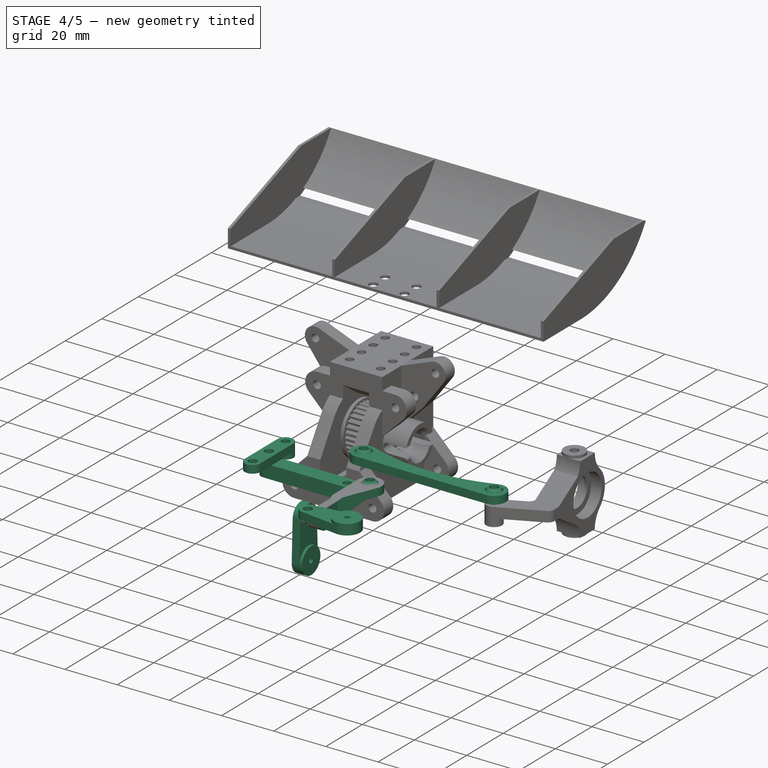
[diagram: stage 4 of 5 — iso view after this stage's code; geometry added in this stage tinted green]
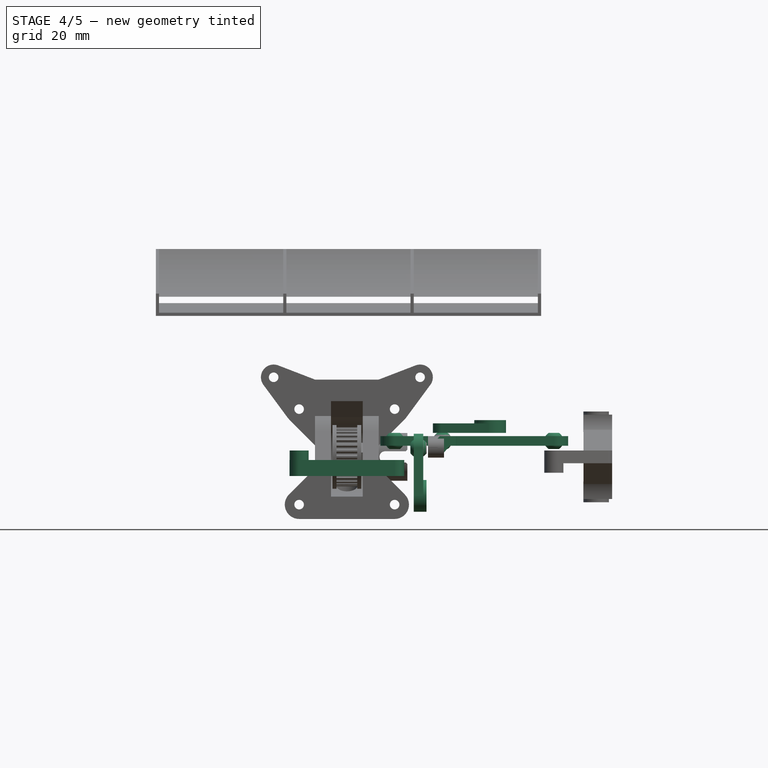
[diagram: stage 4 of 5 — front view after this stage's code; geometry added in this stage tinted green]
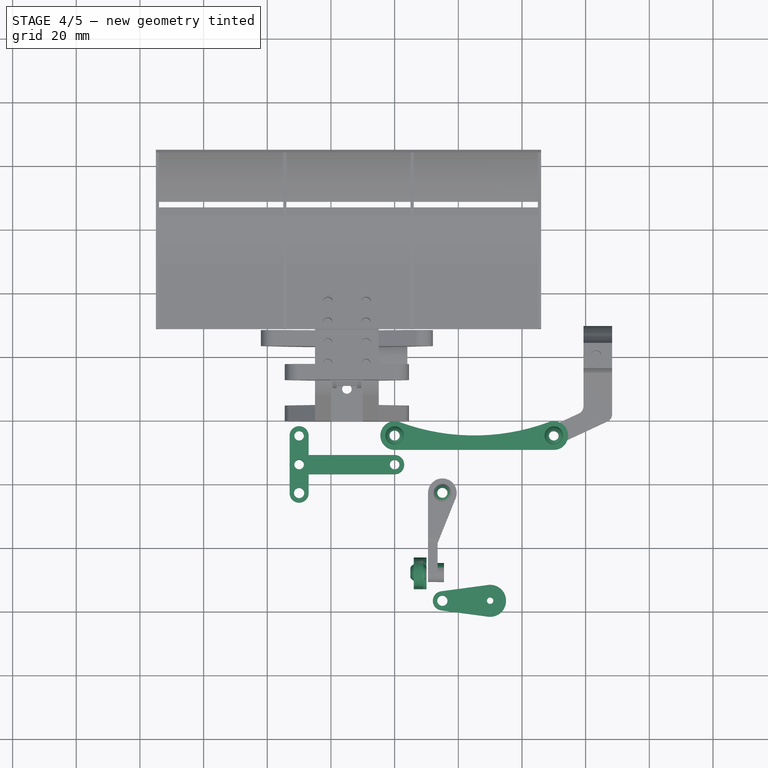
[diagram: stage 4 of 5 — top view after this stage's code; geometry added in this stage tinted green]
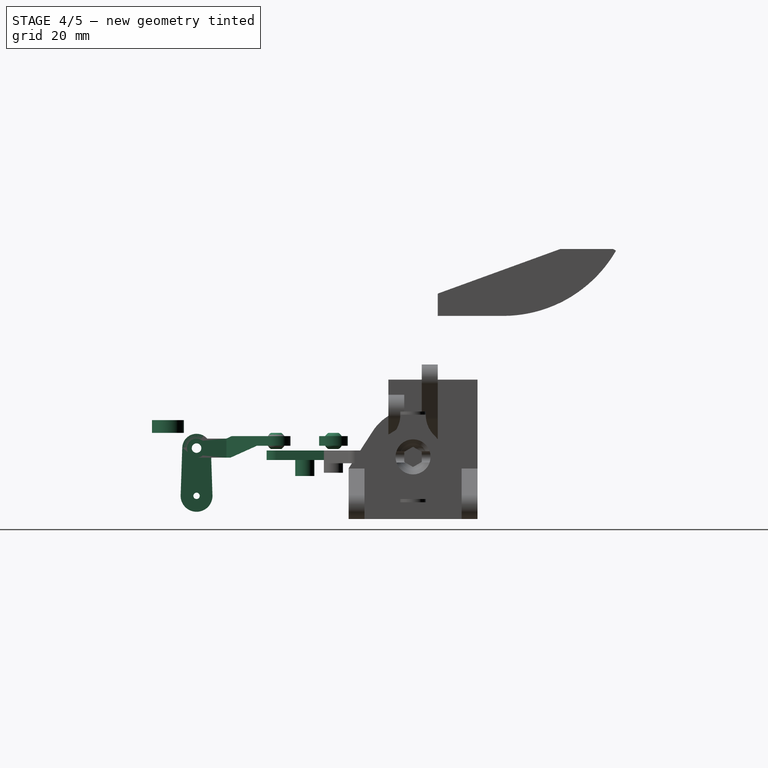
[diagram: stage 4 of 5 — right view after this stage's code; geometry added in this stage tinted green]
FEATURE [Part::SubShapeBinder] Import028  label="Import028(Mirrored008)"
  BindCopyOnChange = 0
  BindMode = 0
  ClaimChildren = false
  Context = -> Body012 [Import028.]
  EdgeTolerance = 1e-06
  FillStyle = 0
  FixShape = 1
  Fuse = false
  InvalidShape = false
  MakeFace = false
  MergeEdges = true
  OffsetFill = false
  OffsetIntersection = false
  OffsetJoinType = 0
  OffsetOpenResult = false
  Outline = false
  PartialLoad = false
  Relative = true
  SplitEdges = false
  Support = -> [Body005[Mirrored008.]]
  TightBound = false
  TreeRank = 321
  ValidateShape = false
  _Version = 8
FEATURE [Sketcher::SketchObject] Sketch056
  ArcFitTolerance = 1e-06
  AttachmentSupport = -> [XY_Plane012]
  ExternalBSplineMaxDegree = 5
  ExternalBSplineTolerance = 0.0001
  ExternalGeometry = -> [Import028]
  FixShape = 1
  FullyConstrained = false
  InternalTolerance = 1e-06
  InvalidShape = false
  MakeInternals = false
  MapMode = 5
  Support = -> [XY_Plane012]
  TreeRank = 320
  ValidateShape = false
  sketch-geometry (1):
    g0: LineSegment StartX=50 StartY=-25 StartZ=0 EndX=50 EndY=-12.9432 EndZ=0
  constraints (2):
    c: Coincident(g0,g-3)
    c: Vertical(g0)
FEATURE [PartDesign::Plane] DatumPlane017
  AttachmentOffset = pos=(0,0,0) rot=(0,0,-1;1.5708rad)
  AttachmentSupport = -> [Sketch056,XZ_Plane012]
  FixShape = 1
  InvalidShape = false
  Length = 50
  MapMode = 6
  MinimumLength = 10
  MinimumWidth = 10
  Placement = pos=(50,-25,0) rot=(1,0,0;1.5708rad)
  ResizeMode = 0
  Support = -> [Sketch056,XZ_Plane012]
  TreeRank = 322
  ValidateShape = false
  Width = 10
FEATURE [Part::SubShapeBinder] Import029  label="Import029(arm_directions)"
  BindCopyOnChange = 0
  BindMode = 0
  ClaimChildren = false
  Context = -> Body012 [Import029.]
  EdgeTolerance = 1e-06
  FillStyle = 0
  FixShape = 1
  Fuse = false
  InvalidShape = false
  MakeFace = false
  MergeEdges = true
  OffsetFill = false
  OffsetIntersection = false
  OffsetJoinType = 0
  OffsetOpenResult = false
  Outline = false
  PartialLoad = false
  Relative = true
  SplitEdges = false
  Support = -> [Body[Sketch.]]
  TightBound = false
  TreeRank = 324
  ValidateShape = false
  _Version = 8
FEATURE [Sketcher::SketchObject] Sketch057
  ArcFitTolerance = 1e-06
  AttachmentSupport = -> [DatumPlane017]
  ExternalBSplineMaxDegree = 5
  ExternalBSplineTolerance = 0.0001
  ExternalGeometry = -> [Import028,Import029]
  FixShape = 1
  FullyConstrained = true
  InternalTolerance = 1e-06
  InvalidShape = false
  MakeInternals = false
  MapMode = 5
  Placement = pos=(50,-25,0) rot=(1,0,0;1.5708rad)
  Support = -> [DatumPlane017]
  TreeRank = 323
  ValidateShape = false
  sketch-geometry (5):
    g0: Circle CenterX=0 CenterY=20 CenterZ=0 NormalX=0 NormalY=0 NormalZ=1 AngleXU=0 Radius=3
    g1: Circle CenterX=-50 CenterY=20 CenterZ=0 NormalX=0 NormalY=0 NormalZ=1 AngleXU=0 Radius=3
    g2: LineSegment StartX=-50 StartY=20 StartZ=0 EndX=0 EndY=20 EndZ=0
    g3: LineSegment [constr] StartX=-3.01537 StartY=-17.101 StartZ=0 EndX=-3.01537 EndY=-0.101007 EndZ=0
    g4: LineSegment [constr] StartX=0 StartY=0 StartZ=0 EndX=0 EndY=17 EndZ=0
  constraints (14):
    c: Equal(g1,g0)
    c: Diameter(g1) = 6
    c: Coincident(g2,g1)
    c: Coincident(g2,g0)
    c: Coincident(g3,g-4)
    c: Vertical(g3)
    c: Coincident(g4,g-1)
    c: PointOnObject(g4,g-3)
    c: Vertical(g4)
    c: Equal(g3,g4)
    c: Vertical(g1,g-4)
    c: Horizontal(g2)
    c: Vertical(g4,g0)
    c: Tangent(g0,g-3)
FEATURE [Sketcher::SketchObject] Sketch059
  ArcFitTolerance = 1e-06
  AttachmentSupport = -> [DatumPlane017]
  ExternalBSplineMaxDegree = 5
  ExternalBSplineTolerance = 0.0001
  ExternalGeometry = -> [Sketch057]
  FixShape = 1
  FullyConstrained = true
  InternalTolerance = 1e-06
  InvalidShape = false
  MakeInternals = false
  MapMode = 5
  Placement = pos=(50,-25,0) rot=(1,0,0;1.5708rad)
  Support = -> [DatumPlane017]
  TreeRank = 327
  ValidateShape = false
  sketch-geometry (5):
    g0: ArcOfCircle CenterX=-50 CenterY=20 CenterZ=0 NormalX=0 NormalY=0 NormalZ=1 AngleXU=0 Radius=3.25 StartAngle=0 EndAngle=3.14159
    g1: ArcOfCircle CenterX=0 CenterY=20 CenterZ=0 NormalX=0 NormalY=0 NormalZ=1 AngleXU=0 Radius=3.25 StartAngle=0 EndAngle=3.14159
    g2: LineSegment StartX=-3.25 StartY=20 StartZ=0 EndX=3.25 EndY=20 EndZ=0
    g3: LineSegment StartX=-53.25 StartY=20 StartZ=0 EndX=-46.75 EndY=20 EndZ=0
    g4: LineSegment [constr] StartX=-50 StartY=23 StartZ=0 EndX=-50 EndY=23.25 EndZ=0
  constraints (16):
    c: Coincident(g0,g-4)
    c: Coincident(g1,g-3)
    c: Equal(g1,g0)
    c: Coincident(g2,g1)
    c: Coincident(g2,g1)
    c: Coincident(g3,g0)
    c: Coincident(g3,g0)
    c: PointOnObject(g4,g-4)
    c: PointOnObject(g4,g0)
    c: Vertical(g4)
    c: Vertical(g4,g0)
    c: DistanceY(g4,g4) = 0.25
    c: PointOnObject(g0,g3)
    c: PointOnObject(g1,g2)
    c: Parallel(g2,g3)
    c: PointOnObject(g1,g3)
FEATURE [Sketcher::SketchObject] Sketch060
  ArcFitTolerance = 1e-06
  AttachmentSupport = -> [DatumPlane017]
  ExternalBSplineMaxDegree = 5
  ExternalBSplineTolerance = 0.0001
  ExternalGeometry = -> [Sketch057]
  FixShape = 1
  FullyConstrained = true
  InternalTolerance = 1e-06
  InvalidShape = false
  MakeInternals = false
  MapMode = 5
  Placement = pos=(50,-25,0) rot=(1,0,0;1.5708rad)
  Support = -> [DatumPlane017]
  TreeRank = 329
  ValidateShape = false
  sketch-geometry (4):
    g0: LineSegment StartX=-3 StartY=20 StartZ=0 EndX=3 EndY=20 EndZ=0
    g1: LineSegment StartX=-53 StartY=20 StartZ=0 EndX=-47 EndY=20 EndZ=0
    g2: ArcOfCircle CenterX=-50 CenterY=20 CenterZ=0 NormalX=0 NormalY=0 NormalZ=1 AngleXU=0 Radius=3 StartAngle=-3.6e-15 EndAngle=3.14159
    g3: ArcOfCircle CenterX=0 CenterY=20 CenterZ=0 NormalX=0 NormalY=0 NormalZ=1 AngleXU=0 Radius=3 StartAngle=1e-16 EndAngle=3.14159
  constraints (13):
    c: PointOnObject(g0,g-3)
    c: Horizontal(g0)
    c: PointOnObject(g1,g-4)
    c: PointOnObject(g1,g-4)
    c: Coincident(g2,g-4)
    c: Coincident(g2,g1)
    c: PointOnObject(g2,g1)
    c: PointOnObject(g2,g1)
    c: Coincident(g3,g-3)
    c: Coincident(g3,g0)
    c: Coincident(g3,g0)
    c: PointOnObject(g3,g0)
    c: PointOnObject(g1,g0)
FEATURE [Part::SubShapeBinder] Import030  label="Import030(tower_midplane)"
  BindCopyOnChange = 0
  BindMode = 0
  ClaimChildren = false
  Context = -> Body014 [Import030.]
  EdgeTolerance = 1e-06
  FillStyle = 0
  FixShape = 1
  Fuse = false
  InvalidShape = false
  MakeFace = false
  MergeEdges = true
  OffsetFill = false
  OffsetIntersection = false
  OffsetJoinType = 0
  OffsetOpenResult = false
  Outline = false
  PartialLoad = false
  Relative = true
  SplitEdges = false
  Support = -> [Body006[DatumPlane011.]]
  TightBound = false
  TreeRank = 356
  ValidateShape = false
  _Version = 8
FEATURE [Part::SubShapeBinder] Import031  label="Import031(Pad024)"
  BindCopyOnChange = 0
  BindMode = 0
  ClaimChildren = false
  Context = -> Body014 [Import031.]
  EdgeTolerance = 1e-06
  FillStyle = 0
  FixShape = 1
  Fuse = false
  InvalidShape = false
  MakeFace = false
  MergeEdges = true
  OffsetFill = false
  OffsetIntersection = false
  OffsetJoinType = 0
  OffsetOpenResult = false
  Outline = false
  PartialLoad = false
  Relative = true
  SplitEdges = false
  Support = -> [Body013[Pad024.]]
  TightBound = false
  TreeRank = 357
  ValidateShape = false
  _Version = 8
FEATURE [Part::SubShapeBinder] Import032  label="Import032(Pocket027)"
  BindCopyOnChange = 0
  BindMode = 0
  ClaimChildren = false
  Context = -> Body014 [Import032.]
  EdgeTolerance = 1e-06
  FillStyle = 0
  FixShape = 1
  Fuse = false
  InvalidShape = false
  MakeFace = false
  MergeEdges = true
  OffsetFill = false
  OffsetIntersection = false
  OffsetJoinType = 0
  OffsetOpenResult = false
  Outline = false
  PartialLoad = false
  Relative = true
  SplitEdges = false
  Support = -> [Body012[Pocket027.]]
  TightBound = false
  TreeRank = 358
  ValidateShape = false
  _Version = 8
FEATURE [PartDesign::SubShapeBinder] Import033  label="Import033(Pad024)"
  BindCopyOnChange = 0
  BindMode = 0
  ClaimChildren = false
  Context = -> Body014 [Import033.]
  EdgeTolerance = 1e-06
  FillStyle = 0
  FixShape = 1
  Fuse = false
  InvalidShape = false
  MakeFace = false
  MergeEdges = true
  OffsetFill = false
  OffsetIntersection = false
  OffsetJoinType = 0
  OffsetOpenResult = false
  Outline = false
  PartialLoad = false
  Relative = true
  SplitEdges = false
  Support = -> [Body013[Pad024.Face13]]
  TightBound = false
  TreeRank = 360
  ValidateShape = false
  _Version = 8
FEATURE [Part::SubShapeBinder] Import034  label="Import034(Pad024)"
  BindCopyOnChange = 0
  BindMode = 0
  ClaimChildren = false
  Context = -> Body015 [Import034.]
  EdgeTolerance = 1e-06
  FillStyle = 0
  FixShape = 1
  Fuse = false
  InvalidShape = false
  MakeFace = false
  MergeEdges = true
  OffsetFill = false
  OffsetIntersection = false
  OffsetJoinType = 0
  OffsetOpenResult = false
  Outline = false
  PartialLoad = false
  Relative = true
  SplitEdges = false
  Support = -> [Body013[Pad024.]]
  TightBound = false
  TreeRank = 372
  ValidateShape = false
  _Version = 8
FEATURE [Part::SubShapeBinder] Import035  label="Import035(Pad025)"
  BindCopyOnChange = 0
  BindMode = 0
  ClaimChildren = false
  Context = -> Body015 [Import035.]
  EdgeTolerance = 1e-06
  FillStyle = 0
  FixShape = 1
  Fuse = false
  InvalidShape = false
  MakeFace = false
  MergeEdges = true
  OffsetFill = false
  OffsetIntersection = false
  OffsetJoinType = 0
  OffsetOpenResult = false
  Outline = false
  PartialLoad = false
  Relative = true
  SplitEdges = false
  Support = -> [Body014[Pad025.]]
  TightBound = false
  TreeRank = 373
  ValidateShape = false
  _Version = 8
FEATURE [Part::SubShapeBinder] Import036  label="Import036(Fillet002)"
  BindCopyOnChange = 0
  BindMode = 0
  ClaimChildren = false
  Context = -> Body015 [Import036.]
  EdgeTolerance = 1e-06
  FillStyle = 0
  FixShape = 1
  Fuse = false
  InvalidShape = false
  MakeFace = false
  MergeEdges = true
  OffsetFill = false
  OffsetIntersection = false
  OffsetJoinType = 0
  OffsetOpenResult = false
  Outline = false
  PartialLoad = false
  Relative = true
  SplitEdges = false
  Support = -> [Body013[Fillet002.]]
  TightBound = false
  TreeRank = 377
  ValidateShape = false
  _Version = 8
FEATURE [Part::SubShapeBinder] Import037  label="Import037(Pocket020)"
  BindCopyOnChange = 0
  BindMode = 0
  ClaimChildren = false
  Context = -> Body015 [Import037.]
  EdgeTolerance = 1e-06
  FillStyle = 0
  FixShape = 1
  Fuse = false
  InvalidShape = false
  MakeFace = false
  MergeEdges = true
  OffsetFill = false
  OffsetIntersection = false
  OffsetJoinType = 0
  OffsetOpenResult = false
  Outline = false
  PartialLoad = false
  Relative = true
  SplitEdges = false
  Support = -> [Body006[Pocket020.]]
  TightBound = false
  TreeRank = 378
  ValidateShape = false
  _Version = 8
FEATURE [Sketcher::SketchObject] Sketch065  label="refrence_sketch_top"
  ArcFitTolerance = 1e-06
  AttachmentSupport = -> [XY_Plane015]
  ExternalBSplineMaxDegree = 5
  ExternalBSplineTolerance = 0.0001
  ExternalGeometry = -> [Import035,Import036,Import037]
  FixShape = 1
  FullyConstrained = true
  InternalTolerance = 1e-06
  InvalidShape = false
  MakeInternals = false
  MapMode = 5
  Support = -> [XY_Plane015]
  TreeRank = 376
  ValidateShape = false
  sketch-geometry (1):
    g0: LineSegment [constr] StartX=-15 StartY=-20.25 StartZ=0 EndX=-15 EndY=-43 EndZ=0
  constraints (6):
    c: DistanceY(g-3,g-5) = 22.75  'forward_dist_to_pivot'
    c: Vertical(g0)
    c: Horizontal(g0,g-3)
    c: DistanceX(g-3,g0) = 15  'side_dist_to_pivot'
    c: Symmetric(g-5,g-5,g0)
    c: DistanceX(g0,g-6) = 30
FEATURE [Sketcher::SketchObject] Sketch066  label="refrence_sketch_side"
  ArcFitTolerance = 1e-06
  AttachmentSupport = -> [YZ_Plane015]
  ExternalBSplineMaxDegree = 5
  ExternalBSplineTolerance = 0.0001
  ExternalGeometry = -> [Import036,Import037]
  FixShape = 1
  FullyConstrained = true
  InternalTolerance = 1e-06
  InvalidShape = false
  MakeInternals = false
  MapMode = 5
  Placement = pos=(0,0,0) rot=(0.57735,0.57735,0.57735;2.0944rad)
  Support = -> [YZ_Plane015]
  TreeRank = 379
  ValidateShape = false
  constraints (2):
    c: DistanceY(g-1,g-3) = 14
    c: DistanceY(g-4,g-3) = 18.5
FEATURE [Part::SubShapeBinder] Import038  label="Import038(Pocket027)"
  BindCopyOnChange = 0
  BindMode = 0
  ClaimChildren = false
  Context = -> Body013 [Import038.]
  EdgeTolerance = 1e-06
  FillStyle = 0
  FixShape = 1
  Fuse = false
  InvalidShape = false
  MakeFace = false
  MergeEdges = true
  OffsetFill = false
  OffsetIntersection = false
  OffsetJoinType = 0
  OffsetOpenResult = false
  Outline = false
  PartialLoad = false
  Relative = true
  SplitEdges = false
  Support = -> [Body012[Pocket027.]]
  TightBound = false
  TreeRank = 380
  ValidateShape = false
  _Version = 8
FEATURE [Part::SubShapeBinder] Import039  label="Import039(Fillet002)"
  BindCopyOnChange = 0
  BindMode = 0
  ClaimChildren = false
  Context = -> Body016 [Import039.]
  EdgeTolerance = 1e-06
  FillStyle = 0
  FixShape = 1
  Fuse = false
  InvalidShape = false
  MakeFace = false
  MergeEdges = true
  OffsetFill = false
  OffsetIntersection = false
  OffsetJoinType = 0
  OffsetOpenResult = false
  Outline = false
  PartialLoad = false
  Relative = true
  SplitEdges = false
  Support = -> [Body013[Fillet002.]]
  TightBound = false
  TreeRank = 392
  ValidateShape = false
  _Version = 8
FEATURE [Sketcher::SketchObject] Sketch067
  ArcFitTolerance = 1e-06
  AttachmentSupport = -> [XY_Plane016]
  ExternalBSplineMaxDegree = 5
  ExternalBSplineTolerance = 0.0001
  ExternalGeometry = -> [Import039]
  FixShape = 1
  FullyConstrained = false
  InternalTolerance = 1e-06
  InvalidShape = false
  MakeInternals = false
  MapMode = 5
  Support = -> [XY_Plane016]
  TreeRank = 391
  ValidateShape = false
  sketch-geometry (1):
    g0: LineSegment StartX=15 StartY=-43 StartZ=0 EndX=15 EndY=-74.7903 EndZ=0
  constraints (2):
    c: Coincident(g0,g-3)
    c: Vertical(g0)
FEATURE [PartDesign::Plane] DatumPlane018
  AttachmentOffset = pos=(0,0,0) rot=(0,0,1;1.5708rad)
  AttachmentSupport = -> [Sketch067,YZ_Plane016]
  FixShape = 1
  InvalidShape = false
  Length = 42.9263
  MapMode = 6
  MinimumLength = 10
  MinimumWidth = 10
  Placement = pos=(15,-43,0) rot=(0.57735,0.57735,0.57735;2.0944rad)
  ResizeMode = 0
  Support = -> [Sketch067,YZ_Plane016]
  TreeRank = 393
  ValidateShape = false
  Width = 22.5377
FEATURE [Sketcher::SketchObject] Sketch068
  ArcFitTolerance = 1e-06
  AttachmentSupport = -> [DatumPlane018]
  ExternalBSplineMaxDegree = 5
  ExternalBSplineTolerance = 0.0001
  ExternalGeometry = -> [Import039]
  FixShape = 1
  FullyConstrained = true
  InternalTolerance = 1e-06
  InvalidShape = false
  MakeInternals = false
  MapMode = 5
  Placement = pos=(15,-43,0) rot=(0.57735,0.57735,0.57735;2.0944rad)
  Support = -> [DatumPlane018]
  TreeRank = 394
  ValidateShape = false
  sketch-geometry (3):
    g0: Circle CenterX=0 CenterY=20 CenterZ=0 NormalX=0 NormalY=0 NormalZ=1 AngleXU=0 Radius=3
    g1: Circle CenterX=-34 CenterY=20 CenterZ=0 NormalX=0 NormalY=0 NormalZ=1 AngleXU=0 Radius=3
    g2: LineSegment StartX=-34 StartY=20 StartZ=0 EndX=0 EndY=20 EndZ=0
  constraints (8):
    c: PointOnObject(g0,g-2)
    c: Equal(g1,g0)
    c: Diameter(g1) = 6
    c: Horizontal(g0,g1)
    c: Tangent(g0,g-3)
    c: DistanceX(g1,g0) = 34
    c: Coincident(g2,g1)
    c: Coincident(g2,g0)
FEATURE [Sketcher::SketchObject] Sketch069
  ArcFitTolerance = 1e-06
  AttachmentSupport = -> [Sketch068,XY_Plane016]
  ExternalBSplineMaxDegree = 5
  ExternalBSplineTolerance = 0.0001
  ExternalGeometry = -> [Sketch068]
  FixShape = 1
  FullyConstrained = true
  InternalTolerance = 1e-06
  InvalidShape = false
  MakeInternals = false
  MapMode = 6
  Placement = pos=(15,-77,20) rot=(0,0,1;3.14159rad)
  Support = -> [Sketch068,XY_Plane016]
  TreeRank = 395
  ValidateShape = false
  sketch-geometry (6):
    g0: ArcOfCircle CenterX=0 CenterY=0 CenterZ=0 NormalX=0 NormalY=0 NormalZ=1 AngleXU=0 Radius=4.47634 StartAngle=1.7253e-12 EndAngle=3.14159
    g1: ArcOfCircle CenterX=-2.9e-15 CenterY=-34.0118 CenterZ=0 NormalX=0 NormalY=0 NormalZ=1 AngleXU=0 Radius=4.47634 StartAngle=3.14159 EndAngle=6.28319
    g2: LineSegment StartX=-4.47634 StartY=7.7239e-12 StartZ=0 EndX=-4.47634 EndY=-34.0118 EndZ=0
    g3: LineSegment StartX=4.47634 StartY=-34.0118 StartZ=0 EndX=4.47634 EndY=7.7236e-12 EndZ=0
    g4: Circle [constr] CenterX=0 CenterY=0 CenterZ=0 NormalX=0 NormalY=0 NormalZ=1 AngleXU=0 Radius=2.97634
    g5: LineSegment [constr] StartX=-1.41e-14 StartY=2.97634 StartZ=0 EndX=-1.41e-14 EndY=4.47634 EndZ=0
  constraints (13):
    c: Tangent(g0,g2) = -1.5708
    c: Tangent(g2,g1) = -1.5708
    c: Tangent(g1,g3) = -1.5708
    c: Tangent(g3,g0) = -1.5708
    c: Equal(g0,g1)
    c: Coincident(g0,g-1)
    c: Symmetric(g-4,g-4,g1)
    c: Coincident(g4,g0)
    c: PointOnObject(g-3,g4)
    c: Coincident(g5,g-3)
    c: PointOnObject(g5,g0)
    c: Vertical(g5)
    c: DistanceY(g5,g5) = 1.5
FEATURE [PartDesign::Pad] Pad027
  AddSubType = 0
  AlongSketchNormal = false
  AutoTaperInnerAngle = true
  CheckUpToFaceLimits = true
  ClaimChildren = false
  Direction = (0,0,1)
  Fit = 0
  FitJoin = 0
  FixShape = 1
  InnerFit = 0
  InnerFitJoin = 0
  InvalidShape = false
  Length = 3
  Length2 = 100
  Linearize = true
  Midplane = true
  NewSolid = true
  Profile = -> Sketch069
  Refine = true
  Suppress = false
  TaperInnerAngle = 0
  TaperInnerAngleRev = 0
  TreeRank = 396
  Type = 0
  ValidateShape = false
  _ProfileBasedVersion = 1
FEATURE [Sketcher::SketchObject] Sketch070
  ArcFitTolerance = 1e-06
  AttachmentSupport = -> [DatumPlane018]
  ExternalBSplineMaxDegree = 5
  ExternalBSplineTolerance = 0.0001
  ExternalGeometry = -> [Sketch068]
  FixShape = 1
  FullyConstrained = true
  InternalTolerance = 1e-06
  InvalidShape = false
  MakeInternals = false
  MapMode = 5
  Placement = pos=(15,-43,0) rot=(0.57735,0.57735,0.57735;2.0944rad)
  Support = -> [DatumPlane018]
  TreeRank = 397
  ValidateShape = false
  sketch-geometry (5):
    g0: ArcOfCircle CenterX=0 CenterY=20 CenterZ=0 NormalX=0 NormalY=0 NormalZ=1 AngleXU=0 Radius=3.25 StartAngle=0 EndAngle=3.14159
    g1: ArcOfCircle CenterX=-34 CenterY=20 CenterZ=0 NormalX=0 NormalY=0 NormalZ=1 AngleXU=0 Radius=3.25 StartAngle=4.1e-15 EndAngle=3.14159
    g2: LineSegment [constr] StartX=0 StartY=23 StartZ=0 EndX=0 EndY=23.25 EndZ=0
    g3: LineSegment StartX=-3.25 StartY=20 StartZ=0 EndX=3.25 EndY=20 EndZ=0
    g4: LineSegment StartX=-37.25 StartY=20 StartZ=0 EndX=-30.75 EndY=20 EndZ=0
  constraints (16):
    c: Coincident(g0,g-3)
    c: Coincident(g1,g-4)
    c: PointOnObject(g2,g-3)
    c: PointOnObject(g2,g0)
    c: Equal(g1,g0)
    c: Vertical(g2)
    c: PointOnObject(g2,g-2)
    c: DistanceY(g2,g2) = 0.25
    c: Horizontal(g3)
    c: Horizontal(g4)
    c: PointOnObject(g1,g4)
    c: Coincident(g1,g4)
    c: Coincident(g1,g4)
    c: Coincident(g0,g3)
    c: Coincident(g0,g3)
    c: PointOnObject(g0,g3)
FEATURE [PartDesign::Groove] Groove001
  AddSubType = 1
  Angle = 360
  Axis = (0,1,-2e-16)
  Base = (15,-77,20)
  BaseFeature = -> Pad027
  ClaimChildren = false
  Fit = 0
  FitJoin = 0
  FixShape = 1
  InnerFit = 0
  InnerFitJoin = 0
  InvalidShape = false
  Linearize = true
  NewSolid = false
  Profile = -> Sketch070
  ReferenceAxis = -> Sketch068 [Edge3]
  Refine = true
  Reversed = true
  Suppress = false
  TreeRank = 398
  ValidateShape = false
  _ProfileBasedVersion = 1
FEATURE [Sketcher::SketchObject] Sketch071
  ArcFitTolerance = 1e-06
  AttachmentSupport = -> [DatumPlane018]
  ExternalBSplineMaxDegree = 5
  ExternalBSplineTolerance = 0.0001
  ExternalGeometry = -> [Sketch068]
  FixShape = 1
  FullyConstrained = true
  InternalTolerance = 1e-06
  InvalidShape = false
  MakeInternals = false
  MapMode = 5
  Placement = pos=(15,-43,0) rot=(0.57735,0.57735,0.57735;2.0944rad)
  Support = -> [DatumPlane018]
  TreeRank = 399
  ValidateShape = false
  sketch-geometry (4):
    g0: ArcOfCircle CenterX=0 CenterY=20 CenterZ=0 NormalX=0 NormalY=0 NormalZ=1 AngleXU=0 Radius=3 StartAngle=-9e-16 EndAngle=3.14159
    g1: ArcOfCircle CenterX=-34 CenterY=20 CenterZ=0 NormalX=0 NormalY=0 NormalZ=1 AngleXU=0 Radius=3 StartAngle=1.7741e-12 EndAngle=3.14159
    g2: LineSegment StartX=-3 StartY=20 StartZ=0 EndX=3 EndY=20 EndZ=0
    g3: LineSegment StartX=-37 StartY=20 StartZ=0 EndX=-31 EndY=20 EndZ=0
  constraints (12):
    c: Coincident(g0,g-3)
    c: PointOnObject(g0,g-3)
    c: Coincident(g1,g-4)
    c: PointOnObject(g1,g-4)
    c: Coincident(g2,g0)
    c: Coincident(g2,g0)
    c: Horizontal(g2)
    c: Coincident(g3,g1)
    c: Coincident(g3,g1)
    c: Horizontal(g3)
    c: PointOnObject(g1,g3)
    c: PointOnObject(g0,g2)
FEATURE [PartDesign::Revolution] Revolution004
  AddSubType = 0
  Angle = 360
  Axis = (0,1,-2e-16)
  Base = (15,-77,20)
  BaseFeature = -> Groove001
  ClaimChildren = false
  Fit = 0
  FitJoin = 0
  FixShape = 1
  InnerFit = 0
  InnerFitJoin = 0
  InvalidShape = false
  Linearize = true
  NewSolid = false
  Profile = -> Sketch071
  ReferenceAxis = -> Sketch068 [Edge3]
  Refine = true
  Suppress = false
  TreeRank = 400
  ValidateShape = false
  _ProfileBasedVersion = 1
FEATURE [Sketcher::SketchObject] Sketch072
  ArcFitTolerance = 1e-06
  AttachmentSupport = -> [XY_Plane016]
  ExternalBSplineMaxDegree = 5
  ExternalBSplineTolerance = 0.0001
  ExternalGeometry = -> [Revolution004]
  FixShape = 1
  FullyConstrained = true
  InternalTolerance = 1e-06
  InvalidShape = false
  MakeInternals = false
  MapMode = 5
  Support = -> [XY_Plane016]
  TreeRank = 401
  ValidateShape = false
  sketch-geometry (9):
    g0: Circle CenterX=15 CenterY=-43 CenterZ=0 NormalX=0 NormalY=0 NormalZ=1 AngleXU=0 Radius=1.6
    g1: Circle CenterX=15 CenterY=-77 CenterZ=0 NormalX=0 NormalY=0 NormalZ=1 AngleXU=0 Radius=1.6
    g2: ArcOfCircle CenterX=45.0426 CenterY=-60 CenterZ=0 NormalX=0 NormalY=0 NormalZ=1 AngleXU=0 Radius=30.0426 StartAngle=2.62665 EndAngle=3.65653
    g3: ArcOfCircle CenterX=15 CenterY=-77 CenterZ=0 NormalX=0 NormalY=0 NormalZ=1 AngleXU=0 Radius=4.47634 StartAngle=-1.7257e-12 EndAngle=0.514941
    g4: ArcOfCircle CenterX=15 CenterY=-43 CenterZ=0 NormalX=0 NormalY=0 NormalZ=1 AngleXU=0 Radius=4.47636 StartAngle=5.76824 EndAngle=6.28583
    g5: LineSegment StartX=19.4763 StartY=-42.9882 StartZ=0 EndX=29.4763 EndY=-42.9882 EndZ=0
    g6: LineSegment StartX=29.4763 StartY=-42.9882 StartZ=0 EndX=29.4763 EndY=-77 EndZ=0
    g7: LineSegment StartX=29.4763 StartY=-77 StartZ=0 EndX=19.4763 EndY=-77 EndZ=0
    g8: LineSegment [constr] StartX=15 StartY=-43 StartZ=0 EndX=15 EndY=-77 EndZ=0
  constraints (21):
    c: Coincident(g0,g-3)
    c: Coincident(g1,g-4)
    c: Equal(g1,g0)
    c: Diameter(g0) = 3.2
    c: Coincident(g4,g0)
    c: Coincident(g3,g1)
    c: Tangent(g3,g2) = 1.5708
    c: Tangent(g4,g2) = 1.5708
    c: Coincident(g5,g4)
    c: Coincident(g6,g5)
    c: Coincident(g7,g6)
    c: Coincident(g7,g3)
    c: Horizontal(g7)
    c: Vertical(g6)
    c: Coincident(g-5,g3)
    c: Coincident(g4,g-6)
    c: Horizontal(g5)
    c: Coincident(g8,g0)
    c: Coincident(g8,g1)
    c: Tangent(g2,g8)
    c: DistanceX(g5,g5) = 10
FEATURE [PartDesign::Pocket] Pocket028
  AddSubType = 1
  AutoTaperInnerAngle = true
  BaseFeature = -> Revolution004
  CheckUpToFaceLimits = true
  ClaimChildren = false
  Fit = 0
  FitJoin = 0
  FixShape = 1
  InnerFit = 0
  InnerFitJoin = 0
  InvalidShape = false
  Length = 5
  Length2 = 100
  Linearize = true
  NewSolid = false
  Profile = -> Sketch072
  Refine = true
  Reversed = true
  Suppress = false
  TaperInnerAngle = 0
  TaperInnerAngleRev = 0
  TreeRank = 402
  Type = 1
  ValidateShape = false
  _ProfileBasedVersion = 1
  _Version = 1
FEATURE [PartDesign::Body] Body016  label="servo_linkage_arm"
  AutoGroupSolids = false
  ClaimAllChildren = false
  ExportMode = 0
  FixShape = 1
  Group = -> [Import039,Sketch067,DatumPlane018,Sketch068,Sketch069,Pad027,Sketch070,Groove001,Sketch071,Revolution004,Sketch072,Pocket028]
  InvalidShape = false
  Origin = -> Origin016
  Tip = -> Pocket028
  TreeRank = 390
  ValidateShape = false
  _ExportChildren = -> [Import039,Sketch067,DatumPlane018,Sketch068,Pad027,Groove001,Revolution004,Pocket028]
  _GroupVersion = 1
FEATURE [Sketcher::SketchObject] Sketch073
  ArcFitTolerance = 1e-06
  AttachmentSupport = -> [Pocket028]
  ExternalBSplineMaxDegree = 5
  ExternalBSplineTolerance = 0.0001
  FixShape = 1
  FullyConstrained = true
  InternalTolerance = 1e-06
  InvalidShape = false
  MakeInternals = false
  MapMode = 11
  Placement = pos=(15,-77.0001,22.5377) rot=(0,0,1;0rad)
  Support = -> [Pocket028]
  TreeRank = 413
  ValidateShape = false
  sketch-geometry (6):
    g0: Circle CenterX=15 CenterY=0 CenterZ=0 NormalX=0 NormalY=0 NormalZ=1 AngleXU=0 Radius=2.5
    g1: ArcOfCircle CenterX=15 CenterY=0 CenterZ=0 NormalX=0 NormalY=0 NormalZ=1 AngleXU=0 Radius=5 StartAngle=4.57866 EndAngle=7.98771
    g2: ArcOfCircle CenterX=0 CenterY=0 CenterZ=0 NormalX=0 NormalY=0 NormalZ=1 AngleXU=0 Radius=3 StartAngle=1.70453 EndAngle=4.57866
    g3: Circle CenterX=0 CenterY=0 CenterZ=0 NormalX=0 NormalY=0 NormalZ=1 AngleXU=0 Radius=1.6
    g4: LineSegment StartX=-0.4 StartY=2.97321 StartZ=0 EndX=14.3333 EndY=4.95536 EndZ=0
    g5: LineSegment StartX=14.3333 StartY=-4.95536 StartZ=0 EndX=-0.4 EndY=-2.97321 EndZ=0
  constraints (13):
    c: Diameter(g0) = 5
    c: Coincident(g1,g0)
    c: Coincident(g2,g-1)
    c: Radius(g1) = 5
    c: Horizontal(g0,g2)
    c: DistanceX(g2,g0) = 15
    c: Coincident(g3,g2)
    c: Diameter(g3) = 3.2
    c: Radius(g2) = 3
    c: Tangent(g5,g1) = 1.5708
    c: Tangent(g4,g1) = 1.5708
    c: Tangent(g4,g2) = 1.5708
    c: Tangent(g5,g2) = 1.5708
FEATURE [PartDesign::Pad] Pad028
  AddSubType = 0
  AlongSketchNormal = false
  AutoTaperInnerAngle = true
  CheckUpToFaceLimits = true
  ClaimChildren = false
  Direction = (0,2.0103e-12,1)
  Fit = 0
  FitJoin = 0
  FixShape = 1
  InnerFit = 0
  InnerFitJoin = 0
  InvalidShape = false
  Length = 3
  Length2 = 100
  Linearize = true
  NewSolid = true
  Profile = -> Sketch073
  Refine = true
  Suppress = false
  TaperInnerAngle = 0
  TaperInnerAngleRev = 0
  TreeRank = 414
  Type = 0
  ValidateShape = false
  _ProfileBasedVersion = 1
FEATURE [Sketcher::SketchObject] Sketch074
  ArcFitTolerance = 1e-06
  AttachmentSupport = -> [Pad028]
  ExternalBSplineMaxDegree = 5
  ExternalBSplineTolerance = 0.0001
  ExternalGeometry = -> [Pad028]
  FixShape = 1
  FullyConstrained = true
  InternalTolerance = 1e-06
  InvalidShape = false
  MakeInternals = false
  MapMode = 5
  Placement = pos=(0,5.13343e-11,25.5377) rot=(0,0,1;0rad)
  Support = -> [Pad028]
  TreeRank = 415
  ValidateShape = false
  sketch-geometry (2):
    g0: Circle CenterX=30 CenterY=-77.0001 CenterZ=0 NormalX=0 NormalY=0 NormalZ=1 AngleXU=0 Radius=5
    g1: Circle CenterX=30 CenterY=-77.0001 CenterZ=0 NormalX=0 NormalY=0 NormalZ=1 AngleXU=0 Radius=1
  constraints (4):
    c: Coincident(g0,g-3)
    c: Equal(g0,g-3)
    c: Coincident(g1,g0)
    c: Diameter(g1) = 2
FEATURE [PartDesign::Pad] Pad029
  AddSubType = 0
  AlongSketchNormal = false
  AutoTaperInnerAngle = true
  BaseFeature = -> Pad028
  CheckUpToFaceLimits = true
  ClaimChildren = false
  Direction = (0,2.0101e-12,1)
  Fit = 0
  FitJoin = 0
  FixShape = 1
  InnerFit = 0
  InnerFitJoin = 0
  InvalidShape = false
  Length = 1
  Length2 = 100
  Linearize = true
  NewSolid = false
  Profile = -> Sketch074
  Refine = true
  Suppress = false
  TaperInnerAngle = 0
  TaperInnerAngleRev = 0
  TreeRank = 416
  Type = 0
  ValidateShape = false
  _ProfileBasedVersion = 1
FEATURE [Part::SubShapeBinder] Import040  label="Import040(Fillet002)"
  BindCopyOnChange = 0
  BindMode = 0
  ClaimChildren = false
  Context = -> Body017 [Import040.]
  EdgeTolerance = 1e-06
  FillStyle = 0
  FixShape = 1
  Fuse = false
  InvalidShape = false
  MakeFace = false
  MergeEdges = true
  OffsetFill = false
  OffsetIntersection = false
  OffsetJoinType = 0
  OffsetOpenResult = false
  Outline = false
  PartialLoad = false
  Relative = true
  SplitEdges = false
  Support = -> [Body013[Fillet002.]]
  TightBound = false
  TreeRank = 418
  ValidateShape = false
  _Version = 8
FEATURE [Sketcher::SketchObject] Sketch075
  ArcFitTolerance = 1e-06
  AttachmentSupport = -> [XY_Plane017]
  ExternalBSplineMaxDegree = 5
  ExternalBSplineTolerance = 0.0001
  ExternalGeometry = -> [Pad029,Import040]
  FixShape = 1
  FullyConstrained = true
  InternalTolerance = 1e-06
  InvalidShape = false
  MakeInternals = false
  MapMode = 5
  Support = -> [XY_Plane017]
  TreeRank = 417
  ValidateShape = false
  constraints (2):
    c: DistanceY(g-3,g-4) = 34.0001
    c: DistanceX(g-4,g-3) = 15
FEATURE [PartDesign::Body] Body017  label="servo_saver"
  AutoGroupSolids = false
  ClaimAllChildren = false
  ExportMode = 0
  FixShape = 1
  Group = -> [Sketch073,Pad028,Sketch074,Pad029,Sketch075,Import040]
  InvalidShape = false
  Origin = -> Origin017
  Tip = -> Pad029
  TreeRank = 412
  ValidateShape = false
  _ExportChildren = -> [Pad028,Pad029,Sketch075,Import040]
  _GroupVersion = 1
FEATURE [PartDesign::Plane] DatumPlane019
  AttachmentSupport = -> [Sketch057]
  FixShape = 1
  InvalidShape = false
  Length = 58.9645
  MapMode = 49
  MinimumLength = 10
  MinimumWidth = 10
  Placement = pos=(-7.1e-15,-25,20) rot=(0,0,1;0rad)
  ResizeMode = 0
  Support = -> [Sketch057]
  TreeRank = 419
  ValidateShape = false
  Width = 10
FEATURE [Sketcher::SketchObject] Sketch058
  ArcFitTolerance = 1e-06
  AttachmentSupport = -> [Sketch057,DatumPlane019]
  ExternalBSplineMaxDegree = 5
  ExternalBSplineTolerance = 0.0001
  ExternalGeometry = -> [Sketch057]
  FixShape = 1
  FullyConstrained = true
  InternalTolerance = 1e-06
  InvalidShape = false
  MakeInternals = false
  MapMode = 6
  Placement = pos=(50,-25,20) rot=(0,0,1;3.14159rad)
  Support = -> [Sketch057,DatumPlane019]
  TreeRank = 325
  ValidateShape = false
  sketch-geometry (8):
    g0: ArcOfCircle CenterX=0 CenterY=0 CenterZ=0 NormalX=0 NormalY=0 NormalZ=1 AngleXU=0 Radius=4.48817 StartAngle=1.5708 EndAngle=4.71239
    g1: ArcOfCircle CenterX=49.9882 CenterY=4.5e-15 CenterZ=0 NormalX=0 NormalY=0 NormalZ=1 AngleXU=0 Radius=4.48817 StartAngle=4.71239 EndAngle=7.85398
    g2: LineSegment [constr] StartX=4e-16 StartY=-4.48817 StartZ=0 EndX=49.9882 EndY=-4.48817 EndZ=0
    g3: LineSegment StartX=49.9882 StartY=4.48817 StartZ=0 EndX=0 EndY=4.48817 EndZ=0
    g4: LineSegment [constr] StartX=52.9763 StartY=5.2e-15 StartZ=0 EndX=54.4763 EndY=5.2e-15 EndZ=0
    g5: ArcOfCircle CenterX=24.9941 CenterY=-67.3504 CenterZ=0 NormalX=0 NormalY=0 NormalZ=1 AngleXU=0 Radius=67.3504 StartAngle=1.21544 EndAngle=1.92615
    g6: ArcOfCircle CenterX=0 CenterY=-3e-16 CenterZ=0 NormalX=0 NormalY=0 NormalZ=1 AngleXU=0 Radius=4.48817 StartAngle=4.71239 EndAngle=5.06774
    g7: ArcOfCircle CenterX=49.9882 CenterY=4.6e-15 CenterZ=0 NormalX=0 NormalY=0 NormalZ=1 AngleXU=0 Radius=4.48817 StartAngle=4.35704 EndAngle=4.71239
  constraints (18):
    c: Tangent(g0,g2) = -1.5708
    c: Tangent(g2,g1) = -1.5708
    c: Tangent(g1,g3) = -1.5708
    c: Tangent(g3,g0) = -1.5708
    c: Equal(g0,g1)
    c: Coincident(g0,g-1)
    c: Symmetric(g-4,g-4,g1)
    c: Coincident(g4,g-4)
    c: PointOnObject(g4,g1)
    c: Horizontal(g4)
    c: DistanceX(g4,g4) = 1.5
    c: Tangent(g7,g5) = 1.5708
    c: Tangent(g6,g5) = 1.5708
    c: Tangent(g7,g1) = -1.5708
    c: Tangent(g6,g0) = -1.5708
    c: Equal(g6,g7)
    c: Tangent(g5,g-1)
    c: Equal(g6,g0)
FEATURE [PartDesign::Pad] Pad023
  AddSubType = 0
  AlongSketchNormal = false
  AutoTaperInnerAngle = true
  CheckUpToFaceLimits = true
  ClaimChildren = false
  Direction = (-2e-16,0,1)
  Fit = 0
  FitJoin = 0
  FixShape = 1
  InnerFit = 0
  InnerFitJoin = 0
  InvalidShape = false
  Length = 3
  Length2 = 100
  Linearize = true
  Midplane = true
  NewSolid = true
  Profile = -> Sketch058
  Refine = true
  Suppress = false
  TaperInnerAngle = 0
  TaperInnerAngleRev = 0
  TreeRank = 326
  Type = 0
  ValidateShape = false
  _ProfileBasedVersion = 1
FEATURE [PartDesign::Groove] Groove
  AddSubType = 1
  Angle = 360
  Axis = (1,-1e-16,2e-16)
  Base = (-7.1e-15,-25,20)
  BaseFeature = -> Pad023
  ClaimChildren = false
  Fit = 0
  FitJoin = 0
  FixShape = 1
  InnerFit = 0
  InnerFitJoin = 0
  InvalidShape = false
  Linearize = true
  NewSolid = false
  Profile = -> Sketch059
  ReferenceAxis = -> Sketch057 [Edge3]
  Refine = true
  Reversed = true
  Suppress = false
  TreeRank = 328
  ValidateShape = false
  _ProfileBasedVersion = 1
FEATURE [PartDesign::Revolution] Revolution003
  AddSubType = 0
  Angle = 360
  Axis = (1,-1e-16,2e-16)
  Base = (-7.1e-15,-25,20)
  BaseFeature = -> Groove
  ClaimChildren = false
  Fit = 0
  FitJoin = 0
  FixShape = 1
  InnerFit = 0
  InnerFitJoin = 0
  InvalidShape = false
  Linearize = true
  NewSolid = false
  Profile = -> Sketch060
  ReferenceAxis = -> Sketch057 [Edge3]
  Refine = true
  Suppress = false
  TreeRank = 330
  ValidateShape = false
  _ProfileBasedVersion = 1
FEATURE [Sketcher::SketchObject] Sketch061
  ArcFitTolerance = 1e-06
  AttachmentSupport = -> [Sketch057,DatumPlane019]
  ExternalBSplineMaxDegree = 5
  ExternalBSplineTolerance = 0.0001
  ExternalGeometry = -> [Revolution003]
  FixShape = 1
  FullyConstrained = true
  InternalTolerance = 1e-06
  InvalidShape = false
  MakeInternals = false
  MapMode = 6
  Placement = pos=(50,-25,20) rot=(0,0,1;3.14159rad)
  Support = -> [Sketch057,DatumPlane019]
  TreeRank = 331
  ValidateShape = false
  sketch-geometry (2):
    g0: Circle CenterX=2.13e-14 CenterY=0 CenterZ=0 NormalX=0 NormalY=0 NormalZ=1 AngleXU=0 Radius=1.6
    g1: Circle CenterX=50 CenterY=0 CenterZ=0 NormalX=0 NormalY=0 NormalZ=1 AngleXU=0 Radius=1.6
  constraints (4):
    c: Coincident(g0,g-3)
    c: Coincident(g1,g-4)
    c: Equal(g1,g0)
    c: Diameter(g1) = 3.2
FEATURE [PartDesign::Pocket] Pocket027
  AddSubType = 1
  AutoTaperInnerAngle = true
  BaseFeature = -> Revolution003
  CheckUpToFaceLimits = true
  ClaimChildren = false
  Fit = 0
  FitJoin = 0
  FixShape = 1
  InnerFit = 0
  InnerFitJoin = 0
  InvalidShape = false
  Length = 5
  Length2 = 100
  Linearize = true
  Midplane = true
  NewSolid = false
  Profile = -> Sketch061
  Refine = true
  Suppress = false
  TaperInnerAngle = 0
  TaperInnerAngleRev = 0
  TreeRank = 332
  Type = 1
  ValidateShape = false
  _ProfileBasedVersion = 1
  _Version = 1
FEATURE [Sketcher::SketchObject] Sketch063
  ArcFitTolerance = 1e-06
  AttachmentSupport = -> [Pad024]
  ExternalBSplineMaxDegree = 5
  ExternalBSplineTolerance = 0.0001
  ExternalGeometry = -> [Import030,Import031,Import032]
  FixShape = 1
  FullyConstrained = true
  InternalTolerance = 1e-06
  InvalidShape = false
  MakeInternals = false
  MapMode = 5
  Placement = pos=(0,0,17) rot=(0,0,1;0rad)
  Support = -> [Pad024]
  TreeRank = 355
  ValidateShape = false
  sketch-geometry (7):
    g0: Circle CenterX=-30 CenterY=-25 CenterZ=0 NormalX=0 NormalY=0 NormalZ=1 AngleXU=0 Radius=1.5
    g1: Circle CenterX=-30.0059 CenterY=-34 CenterZ=0 NormalX=0 NormalY=0 NormalZ=1 AngleXU=0 Radius=1.6
    g2: Circle CenterX=-30 CenterY=-43 CenterZ=0 NormalX=0 NormalY=0 NormalZ=1 AngleXU=0 Radius=1.6
    g3: ArcOfCircle CenterX=-30 CenterY=-25 CenterZ=0 NormalX=0 NormalY=0 NormalZ=1 AngleXU=0 Radius=3 StartAngle=-9e-16 EndAngle=3.14159
    g4: ArcOfCircle CenterX=-30 CenterY=-43 CenterZ=0 NormalX=0 NormalY=0 NormalZ=1 AngleXU=0 Radius=3 StartAngle=3.14159 EndAngle=6.28319
    g5: LineSegment StartX=-33 StartY=-43 StartZ=0 EndX=-33 EndY=-25 EndZ=0
    g6: LineSegment StartX=-27 StartY=-25 StartZ=0 EndX=-27 EndY=-43 EndZ=0
  constraints (14):
    c: Tangent(g5,g4) = 1.5708
    c: Tangent(g6,g4) = 1.5708
    c: Tangent(g6,g3) = 1.5708
    c: Tangent(g5,g3) = 1.5708
    c: Coincident(g3,g0)
    c: Coincident(g4,g2)
    c: Symmetric(g2,g-10,g-3)
    c: Symmetric(g1,g-9,g-3)
    c: Symmetric(g0,g-8,g-3)
    c: Equal(g3,g-7)
    c: Equal(g-7,g4)
    c: Diameter(g0) = 3
    c: Diameter(g1) = 3.2
    c: Diameter(g2) = 3.2
FEATURE [PartDesign::Pad] Pad025
  AddSubType = 0
  AlongSketchNormal = false
  AutoTaperInnerAngle = true
  CheckUpToFaceLimits = true
  ClaimChildren = false
  Direction = (0,0,1)
  Fit = 0
  FitJoin = 0
  FixShape = 1
  InnerFit = 0
  InnerFitJoin = 0
  InvalidShape = false
  Length = 10
  Length2 = 100
  Linearize = true
  NewSolid = true
  Profile = -> Sketch063
  Refine = true
  Suppress = false
  TaperInnerAngle = 0
  TaperInnerAngleRev = 0
  TreeRank = 359
  Type = 3
  UpToFace = -> Import033
  ValidateShape = false
  _ProfileBasedVersion = 1
FEATURE [Sketcher::SketchObject] Sketch064
  ArcFitTolerance = 1e-06
  AttachmentSupport = -> [Pad025]
  ExternalBSplineMaxDegree = 5
  ExternalBSplineTolerance = 0.0001
  ExternalGeometry = -> [Import034,Import035]
  FixShape = 1
  FullyConstrained = true
  InternalTolerance = 1e-06
  InvalidShape = false
  MakeInternals = false
  MapMode = 5
  Placement = pos=(0,0,14) rot=(1,0,0;3.14159rad)
  Support = -> [Pad025]
  TreeRank = 371
  ValidateShape = false
  sketch-geometry (6):
    g0: ArcOfCircle CenterX=-30.0059 CenterY=34 CenterZ=0 NormalX=0 NormalY=0 NormalZ=1 AngleXU=0 Radius=3 StartAngle=1.5708 EndAngle=4.71239
    g1: ArcOfCircle CenterX=0.00591397 CenterY=34 CenterZ=0 NormalX=0 NormalY=0 NormalZ=1 AngleXU=0 Radius=3 StartAngle=4.71239 EndAngle=7.85398
    g2: LineSegment StartX=-30.0059 StartY=31 StartZ=0 EndX=0.00591397 EndY=31 EndZ=0
    g3: LineSegment StartX=0.00591397 StartY=37 StartZ=0 EndX=-30.0059 EndY=37 EndZ=0
    g4: Circle CenterX=-30.0059 CenterY=34 CenterZ=0 NormalX=0 NormalY=0 NormalZ=1 AngleXU=0 Radius=1.5
    g5: Circle CenterX=0.00591397 CenterY=34 CenterZ=0 NormalX=0 NormalY=0 NormalZ=1 AngleXU=0 Radius=1.5
  constraints (12):
    c: Tangent(g0,g2) = -1.5708
    c: Tangent(g2,g1) = -1.5708
    c: Tangent(g1,g3) = -1.5708
    c: Tangent(g3,g0) = -1.5708
    c: Equal(g0,g1)
    c: Coincident(g0,g-4)
    c: Coincident(g1,g-3)
    c: Radius(g0) = 3
    c: Coincident(g4,g0)
    c: Coincident(g5,g1)
    c: Equal(g5,g4)
    c: Diameter(g4) = 3
FEATURE [PartDesign::Pad] Pad026
  AddSubType = 0
  AlongSketchNormal = false
  AutoTaperInnerAngle = true
  CheckUpToFaceLimits = true
  ClaimChildren = false
  Direction = (0,0,-1)
  Fit = 0
  FitJoin = 0
  FixShape = 1
  InnerFit = 0
  InnerFitJoin = 0
  InvalidShape = false
  Length = 5
  Length2 = 100
  Linearize = true
  NewSolid = true
  Profile = -> Sketch064
  Refine = true
  Suppress = false
  TaperInnerAngle = 0
  TaperInnerAngleRev = 0
  TreeRank = 374
  Type = 0
  ValidateShape = false
  _ProfileBasedVersion = 1
FEATURE [Sketcher::SketchObject] Sketch082
  ArcFitTolerance = 1e-06
  AttachmentSupport = -> [XY_Plane018]
  ExternalBSplineMaxDegree = 5
  ExternalBSplineTolerance = 0.0001
  ExternalGeometry = -> [Sketch080,Pad030]
  FixShape = 1
  FullyConstrained = true
  InternalTolerance = 1e-06
  InvalidShape = false
  MakeInternals = false
  MapMode = 5
  Support = -> [XY_Plane018]
  TreeRank = 446
  ValidateShape = false
  sketch-geometry (6):
    g0: ArcOfCircle CenterX=15 CenterY=-43 CenterZ=0 NormalX=0 NormalY=0 NormalZ=1 AngleXU=0 Radius=4.5 StartAngle=5.89719 EndAngle=9.42478
    g1: LineSegment StartX=10.5 StartY=-43 StartZ=0 EndX=10.5 EndY=-70.9781 EndZ=0
    g2: LineSegment StartX=19.1689 StartY=-44.6942 StartZ=0 EndX=13.5 EndY=-58.6439 EndZ=0
    g3: LineSegment StartX=10.5 StartY=-70.9781 StartZ=0 EndX=13.5 EndY=-70.9781 EndZ=0
    g4: LineSegment StartX=13.5 StartY=-70.9781 StartZ=0 EndX=13.5 EndY=-58.6439 EndZ=0
    g5: GeomPoint [constr] X=15 Y=-38.5 Z=0
  constraints (15):
    c: Coincident(g0,g-3)
    c: Vertical(g1)
    c: Tangent(g2,g0) = 1.5708
    c: Coincident(g3,g1)
    c: Horizontal(g3)
    c: Coincident(g4,g3)
    c: Vertical(g4)
    c: Tangent(g1,g0) = -1.5708
    c: Horizontal(g4,g-9)
    c: DistanceX(g3,g3) = 3
    c: Horizontal(g3,g-10)
    c: PointOnObject(g5,g0)
    c: Vertical(g5,g-6)
    c: Horizontal(g5,g-8)
    c: Coincident(g2,g4)
FEATURE [PartDesign::Pocket] Pocket032
  AddSubType = 2
  AutoTaperInnerAngle = true
  BaseFeature = -> Pad030
  CheckUpToFaceLimits = true
  ClaimChildren = false
  Fit = 0
  FitJoin = 0
  FixShape = 1
  InnerFit = 0
  InnerFitJoin = 0
  InvalidShape = false
  Length = 5
  Length2 = 100
  Linearize = true
  Midplane = true
  NewSolid = false
  Profile = -> Sketch082
  Refine = true
  Suppress = false
  TaperInnerAngle = 0
  TaperInnerAngleRev = 0
  TreeRank = 447
  Type = 1
  ValidateShape = false
  _ProfileBasedVersion = 1
  _Version = 1
FEATURE [Sketcher::SketchObject] Sketch083
  ArcFitTolerance = 1e-06
  AttachmentSupport = -> [DatumPlane020]
  ExternalBSplineMaxDegree = 5
  ExternalBSplineTolerance = 0.0001
  ExternalGeometry = -> [Sketch080]
  FixShape = 1
  FullyConstrained = true
  InternalTolerance = 1e-06
  InvalidShape = false
  MakeInternals = false
  MapMode = 5
  Placement = pos=(15,-43,17) rot=(0.57735,0.57735,0.57735;2.0944rad)
  Support = -> [DatumPlane020]
  TreeRank = 448
  ValidateShape = false
  sketch-geometry (3):
    g0: ArcOfCircle CenterX=0 CenterY=3 CenterZ=0 NormalX=0 NormalY=0 NormalZ=1 AngleXU=0 Radius=3.125 StartAngle=0 EndAngle=3.14159
    g1: LineSegment StartX=-3.125 StartY=3 StartZ=0 EndX=3.125 EndY=3 EndZ=0
    g2: LineSegment [constr] StartX=0 StartY=6 StartZ=0 EndX=0 EndY=6.125 EndZ=0
  constraints (10):
    c: Coincident(g0,g-3)
    c: Coincident(g1,g0)
    c: Coincident(g1,g0)
    c: Horizontal(g1)
    c: PointOnObject(g0,g1)
    c: PointOnObject(g2,g-3)
    c: PointOnObject(g2,g0)
    c: Vertical(g2)
    c: Perpendicular(g-3,g2)
    c: DistanceY(g2,g2) = 0.125
FEATURE [PartDesign::Groove] Groove002
  AddSubType = 1
  Angle = 360
  Axis = (0,1,0)
  Base = (15,-46.125,20)
  BaseFeature = -> Pocket032
  ClaimChildren = false
  Fit = 0
  FitJoin = 0
  FixShape = 1
  InnerFit = 0
  InnerFitJoin = 0
  InvalidShape = false
  Linearize = true
  NewSolid = false
  Profile = -> Sketch083
  ReferenceAxis = -> Sketch083 [Edge2]
  Refine = true
  Suppress = false
  TreeRank = 449
  ValidateShape = false
  _ProfileBasedVersion = 1
FEATURE [Sketcher::SketchObject] Sketch084
  ArcFitTolerance = 1e-06
  AttachmentSupport = -> [DatumPlane020]
  ExternalBSplineMaxDegree = 5
  ExternalBSplineTolerance = 0.0001
  ExternalGeometry = -> [Sketch080]
  FixShape = 1
  FullyConstrained = true
  InternalTolerance = 1e-06
  InvalidShape = false
  MakeInternals = false
  MapMode = 5
  Placement = pos=(15,-43,17) rot=(0.57735,0.57735,0.57735;2.0944rad)
  Support = -> [DatumPlane020]
  TreeRank = 450
  ValidateShape = false
  sketch-geometry (2):
    g0: ArcOfCircle CenterX=0 CenterY=3 CenterZ=0 NormalX=0 NormalY=0 NormalZ=1 AngleXU=0 Radius=3 StartAngle=0 EndAngle=3.14159
    g1: LineSegment StartX=-3 StartY=3 StartZ=0 EndX=3 EndY=3 EndZ=0
  constraints (6):
    c: Coincident(g0,g-3)
    c: Coincident(g1,g0)
    c: Coincident(g1,g0)
    c: Horizontal(g1)
    c: PointOnObject(g0,g1)
    c: Equal(g0,g-3)
FEATURE [PartDesign::Revolution] Revolution005
  AddSubType = 0
  Angle = 360
  Axis = (0,1,0)
  Base = (15,-46,20)
  BaseFeature = -> Groove002
  ClaimChildren = false
  Fit = 0
  FitJoin = 0
  FixShape = 1
  InnerFit = 0
  InnerFitJoin = 0
  InvalidShape = false
  Linearize = true
  NewSolid = false
  Profile = -> Sketch084
  ReferenceAxis = -> Sketch084 [Edge2]
  Refine = true
  Suppress = false
  TreeRank = 451
  ValidateShape = false
  _ProfileBasedVersion = 1
FEATURE [Sketcher::SketchObject] Sketch085
  ArcFitTolerance = 1e-06
  AttachmentSupport = -> [XY_Plane018]
  ExternalBSplineMaxDegree = 5
  ExternalBSplineTolerance = 0.0001
  ExternalGeometry = -> [Revolution005]
  FixShape = 1
  FullyConstrained = true
  InternalTolerance = 1e-06
  InvalidShape = false
  MakeInternals = false
  MapMode = 5
  Support = -> [XY_Plane018]
  TreeRank = 452
  ValidateShape = false
  sketch-geometry (1):
    g0: Circle CenterX=15 CenterY=-43 CenterZ=0 NormalX=0 NormalY=0 NormalZ=1 AngleXU=0 Radius=1.6
  constraints (2):
    c: Coincident(g0,g-3)
    c: Diameter(g0) = 3.2
FEATURE [PartDesign::Pocket] Pocket033
  AddSubType = 1
  AutoTaperInnerAngle = true
  BaseFeature = -> Revolution005
  CheckUpToFaceLimits = true
  ClaimChildren = false
  Fit = 0
  FitJoin = 0
  FixShape = 1
  InnerFit = 0
  InnerFitJoin = 0
  InvalidShape = false
  Length = 5
  Length2 = 100
  Linearize = true
  Midplane = true
  NewSolid = false
  Profile = -> Sketch085
  Refine = true
  Suppress = false
  TaperInnerAngle = 0
  TaperInnerAngleRev = 0
  TreeRank = 453
  Type = 1
  ValidateShape = false
  _ProfileBasedVersion = 1
  _Version = 1
FEATURE [Part::SubShapeBinder] Import045  label="Import045(Pocket033)"
  BindCopyOnChange = 0
  BindMode = 0
  ClaimChildren = false
  Context = -> Body019 [Import045.]
  EdgeTolerance = 1e-06
  FillStyle = 0
  FixShape = 1
  Fuse = false
  InvalidShape = false
  MakeFace = false
  MergeEdges = true
  OffsetFill = false
  OffsetIntersection = false
  OffsetJoinType = 0
  OffsetOpenResult = false
  Outline = false
  PartialLoad = false
  Relative = true
  SplitEdges = false
  Support = -> [Body018[Pocket033.]]
  TightBound = false
  TreeRank = 465
  ValidateShape = false
  _Version = 8
FEATURE [Sketcher::SketchObject] Sketch086
  ArcFitTolerance = 1e-06
  AttachmentSupport = -> [Pocket033]
  ExternalBSplineMaxDegree = 5
  ExternalBSplineTolerance = 0.0001
  ExternalGeometry = -> [Import045]
  FixShape = 1
  FullyConstrained = false
  InternalTolerance = 1e-06
  InvalidShape = false
  MakeInternals = false
  MapMode = 5
  Placement = pos=(10.5,0,0) rot=(0.57735,-0.57735,-0.57735;2.0944rad)
  Support = -> [Pocket033]
  TreeRank = 464
  ValidateShape = false
  sketch-geometry (1):
    g0: LineSegment StartX=68 StartY=17.75 StartZ=0 EndX=68 EndY=3.48896 EndZ=0
  constraints (2):
    c: Coincident(g0,g-3)
    c: Vertical(g0)
FEATURE [PartDesign::Plane] DatumPlane021
  AttachmentOffset = pos=(0,0,0) rot=(0,0,-1;1.5708rad)
  AttachmentSupport = -> [Sketch086,XZ_Plane019]
  FixShape = 1
  InvalidShape = false
  Length = 10
  MapMode = 6
  MinimumLength = 10
  MinimumWidth = 10
  Placement = pos=(10.5,-68,17.75) rot=(1,0,0;1.5708rad)
  ResizeMode = 0
  Support = -> [Sketch086,XZ_Plane019]
  TreeRank = 466
  ValidateShape = false
  Width = 24.482
FEATURE [Sketcher::SketchObject] Sketch087
  ArcFitTolerance = 1e-06
  AttachmentSupport = -> [DatumPlane021]
  ExternalBSplineMaxDegree = 5
  ExternalBSplineTolerance = 0.0001
  FixShape = 1
  FullyConstrained = true
  InternalTolerance = 1e-06
  InvalidShape = false
  MakeInternals = false
  MapMode = 5
  Placement = pos=(10.5,-68,17.75) rot=(1,0,0;1.5708rad)
  Support = -> [DatumPlane021]
  TreeRank = 467
  ValidateShape = false
  expr: Constraints[5] = <<slav2_shape>>.Constraints.servo_saver_length
  sketch-geometry (2):
    g0: Circle CenterX=-3 CenterY=0 CenterZ=0 NormalX=0 NormalY=0 NormalZ=1 AngleXU=0 Radius=3
    g1: LineSegment StartX=-3 StartY=0 StartZ=0 EndX=-3 EndY=-15 EndZ=0
  constraints (6):
    c: PointOnObject(g0,g-1)
    c: PointOnObject(g-1,g0)
    c: Diameter(g0) = 6
    c: Coincident(g1,g0)
    c: Vertical(g1)
    c: DistanceY(g1,g1) = 15
FEATURE [Sketcher::SketchObject] Sketch088
  ArcFitTolerance = 1e-06
  AttachmentOffset = pos=(0,0,0) rot=(0,0,1;1.5708rad)
  AttachmentSupport = -> [Sketch087,YZ_Plane019]
  ExternalBSplineMaxDegree = 5
  ExternalBSplineTolerance = 0.0001
  ExternalGeometry = -> [Sketch087]
  FixShape = 1
  FullyConstrained = true
  InternalTolerance = 1e-06
  InvalidShape = false
  MakeInternals = false
  MapMode = 6
  Placement = pos=(7.5,-68,17.75) rot=(0.57735,0.57735,0.57735;2.0944rad)
  Support = -> [Sketch087,YZ_Plane019]
  TreeRank = 468
  ValidateShape = false
  sketch-geometry (6):
    g0: ArcOfCircle CenterX=0 CenterY=0 CenterZ=0 NormalX=0 NormalY=0 NormalZ=1 AngleXU=0 Radius=4.49408 StartAngle=0.0337344 EndAngle=3.10786
    g1: LineSegment [constr] StartX=-1.7e-15 StartY=2.99408 StartZ=0 EndX=-1.7e-15 EndY=4.49408 EndZ=0
    g2: ArcOfCircle CenterX=0 CenterY=-15 CenterZ=0 NormalX=0 NormalY=0 NormalZ=1 AngleXU=0 Radius=5 StartAngle=3.10786 EndAngle=6.31692
    g3: LineSegment StartX=-4.99716 StartY=-14.8314 StartZ=0 EndX=-4.49152 EndY=0.151576 EndZ=0
    g4: LineSegment StartX=4.99716 StartY=-14.8314 StartZ=0 EndX=4.49152 EndY=0.151576 EndZ=0
    g5: Circle CenterX=0 CenterY=-15 CenterZ=0 NormalX=0 NormalY=0 NormalZ=1 AngleXU=0 Radius=2.5
  constraints (13):
    c: Coincident(g0,g-4)
    c: Coincident(g1,g-3)
    c: PointOnObject(g1,g0)
    c: Vertical(g1)
    c: DistanceY(g1,g1) = 1.5
    c: Coincident(g2,g-4)
    c: Tangent(g2,g3) = 1.5708
    c: Tangent(g2,g4) = -1.5708
    c: Tangent(g0,g4) = -1.5708
    c: Tangent(g0,g3) = 1.5708
    c: Coincident(g5,g2)
    c: Diameter(g5) = 5
    c: Diameter(g2) = 10
FEATURE [PartDesign::Pad] Pad031
  AddSubType = 0
  AlongSketchNormal = false
  AutoTaperInnerAngle = true
  CheckUpToFaceLimits = true
  ClaimChildren = false
  Direction = (1,0,2e-16)
  Fit = 0
  FitJoin = 0
  FixShape = 1
  InnerFit = 0
  InnerFitJoin = 0
  InvalidShape = false
  Length = 3
  Length2 = 100
  Linearize = true
  Midplane = true
  NewSolid = false
  Profile = -> Sketch088
  Refine = true
  Suppress = false
  TaperInnerAngle = 0
  TaperInnerAngleRev = 0
  TreeRank = 469
  Type = 0
  ValidateShape = false
  _ProfileBasedVersion = 1
FEATURE [Sketcher::SketchObject] Sketch089
  ArcFitTolerance = 1e-06
  AttachmentSupport = -> [DatumPlane021]
  ExternalBSplineMaxDegree = 5
  ExternalBSplineTolerance = 0.0001
  ExternalGeometry = -> [Sketch087]
  FixShape = 1
  FullyConstrained = true
  InternalTolerance = 1e-06
  InvalidShape = false
  MakeInternals = false
  MapMode = 5
  Placement = pos=(10.5,-68,17.75) rot=(1,0,0;1.5708rad)
  Support = -> [DatumPlane021]
  TreeRank = 470
  ValidateShape = false
  sketch-geometry (3):
    g0: ArcOfCircle CenterX=-3 CenterY=0 CenterZ=0 NormalX=0 NormalY=0 NormalZ=1 AngleXU=0 Radius=3.125 StartAngle=0 EndAngle=3.14159
    g1: LineSegment StartX=0.125 StartY=0 StartZ=0 EndX=-6.125 EndY=0 EndZ=0
    g2: LineSegment [constr] StartX=-3 StartY=3 StartZ=0 EndX=-3 EndY=3.125 EndZ=0
  constraints (10):
    c: Coincident(g0,g-3)
    c: PointOnObject(g0,g-1)
    c: Coincident(g1,g0)
    c: Coincident(g1,g0)
    c: Horizontal(g1)
    c: PointOnObject(g2,g-3)
    c: PointOnObject(g2,g0)
    c: Vertical(g2)
    c: Perpendicular(g-3,g2)
    c: DistanceY(g2,g2) = 0.125
FEATURE [PartDesign::Groove] Groove003
  AddSubType = 1
  Angle = 360
  Axis = (1,-1e-16,2e-16)
  Base = (10.5,-68,17.75)
  BaseFeature = -> Pad031
  ClaimChildren = false
  Fit = 0
  FitJoin = 0
  FixShape = 1
  InnerFit = 0
  InnerFitJoin = 0
  InvalidShape = false
  Linearize = true
  NewSolid = false
  Profile = -> Sketch089
  ReferenceAxis = -> Sketch089 [H_Axis]
  Refine = true
  Reversed = true
  Suppress = false
  TreeRank = 471
  ValidateShape = false
  _ProfileBasedVersion = 1
FEATURE [Sketcher::SketchObject] Sketch090
  ArcFitTolerance = 1e-06
  AttachmentSupport = -> [DatumPlane021]
  ExternalBSplineMaxDegree = 5
  ExternalBSplineTolerance = 0.0001
  ExternalGeometry = -> [Sketch087]
  FixShape = 1
  FullyConstrained = true
  InternalTolerance = 1e-06
  InvalidShape = false
  MakeInternals = false
  MapMode = 5
  Placement = pos=(10.5,-68,17.75) rot=(1,0,0;1.5708rad)
  Support = -> [DatumPlane021]
  TreeRank = 472
  ValidateShape = false
  sketch-geometry (2):
    g0: ArcOfCircle CenterX=-3 CenterY=0 CenterZ=0 NormalX=0 NormalY=0 NormalZ=1 AngleXU=0 Radius=3 StartAngle=0 EndAngle=3.14159
    g1: LineSegment StartX=-9e-16 StartY=0 StartZ=0 EndX=-6 EndY=0 EndZ=0
  constraints (6):
    c: Coincident(g0,g-3)
    c: PointOnObject(g0,g-1)
    c: Coincident(g1,g0)
    c: Coincident(g1,g0)
    c: Horizontal(g1)
    c: Equal(g0,g-3)
FEATURE [PartDesign::Revolution] Revolution006
  AddSubType = 0
  Angle = 360
  Axis = (1,-1e-16,2e-16)
  Base = (10.5,-68,17.75)
  BaseFeature = -> Groove003
  ClaimChildren = false
  Fit = 0
  FitJoin = 0
  FixShape = 1
  InnerFit = 0
  InnerFitJoin = 0
  InvalidShape = false
  Linearize = true
  NewSolid = false
  Profile = -> Sketch090
  ReferenceAxis = -> Sketch090 [H_Axis]
  Refine = true
  Suppress = false
  TreeRank = 473
  ValidateShape = false
  _ProfileBasedVersion = 1
FEATURE [Sketcher::SketchObject] Sketch091
  ArcFitTolerance = 1e-06
  AttachmentSupport = -> [YZ_Plane019]
  ExternalBSplineMaxDegree = 5
  ExternalBSplineTolerance = 0.0001
  ExternalGeometry = -> [Revolution006]
  FixShape = 1
  FullyConstrained = true
  InternalTolerance = 1e-06
  InvalidShape = false
  MakeInternals = false
  MapMode = 5
  Placement = pos=(0,0,0) rot=(0.57735,0.57735,0.57735;2.0944rad)
  Support = -> [YZ_Plane019]
  TreeRank = 474
  ValidateShape = false
  sketch-geometry (1):
    g0: Circle CenterX=-68 CenterY=17.75 CenterZ=0 NormalX=0 NormalY=0 NormalZ=1 AngleXU=0 Radius=1.6
  constraints (2):
    c: Coincident(g0,g-3)
    c: Diameter(g0) = 3.2
FEATURE [PartDesign::Pocket] Pocket034
  AddSubType = 1
  AutoTaperInnerAngle = true
  BaseFeature = -> Revolution006
  CheckUpToFaceLimits = true
  ClaimChildren = false
  Fit = 0
  FitJoin = 0
  FixShape = 1
  InnerFit = 0
  InnerFitJoin = 0
  InvalidShape = false
  Length = 5
  Length2 = 100
  Linearize = true
  Midplane = true
  NewSolid = false
  Profile = -> Sketch091
  Refine = true
  Suppress = false
  TaperInnerAngle = 0
  TaperInnerAngleRev = 0
  TreeRank = 475
  Type = 1
  ValidateShape = false
  _ProfileBasedVersion = 1
  _Version = 1
FEATURE [Sketcher::SketchObject] Sketch092
  ArcFitTolerance = 1e-06
  AttachmentSupport = -> [Pocket034]
  ExternalBSplineMaxDegree = 5
  ExternalBSplineTolerance = 0.0001
  ExternalGeometry = -> [Pocket034]
  FixShape = 1
  FullyConstrained = true
  InternalTolerance = 1e-06
  InvalidShape = false
  MakeInternals = false
  MapMode = 5
  Placement = pos=(9,0,2.1e-15) rot=(0.57735,0.57735,0.57735;2.0944rad)
  Support = -> [Pocket034]
  TreeRank = 476
  ValidateShape = false
  sketch-geometry (2):
    g0: Circle CenterX=-68 CenterY=2.75 CenterZ=0 NormalX=0 NormalY=0 NormalZ=1 AngleXU=0 Radius=5
    g1: Circle CenterX=-68 CenterY=2.75 CenterZ=0 NormalX=0 NormalY=0 NormalZ=1 AngleXU=0 Radius=1
  constraints (4):
    c: Coincident(g0,g-3)
    c: Equal(g0,g-3)
    c: Coincident(g1,g0)
    c: Diameter(g1) = 2
FEATURE [PartDesign::Pad] Pad032
  AddSubType = 0
  AlongSketchNormal = false
  AutoTaperInnerAngle = true
  BaseFeature = -> Pocket034
  CheckUpToFaceLimits = true
  ClaimChildren = false
  Direction = (1,1e-16,1e-16)
  Fit = 0
  FitJoin = 0
  FixShape = 1
  InnerFit = 0
  InnerFitJoin = 0
  InvalidShape = false
  Length = 1
  Length2 = 100
  Linearize = true
  NewSolid = false
  Profile = -> Sketch092
  Refine = true
  Suppress = false
  TaperInnerAngle = 0
  TaperInnerAngleRev = 0
  TreeRank = 477
  Type = 0
  ValidateShape = false
  _ProfileBasedVersion = 1
FEATURE [Part::SubShapeBinder] Import046  label="Import046(Fillet002)"
  BindCopyOnChange = 0
  BindMode = 0
  ClaimChildren = false
  Context = -> Body019 [Import046.]
  EdgeTolerance = 1e-06
  FillStyle = 0
  FixShape = 1
  Fuse = false
  InvalidShape = false
  MakeFace = false
  MergeEdges = true
  OffsetFill = false
  OffsetIntersection = false
  OffsetJoinType = 0
  OffsetOpenResult = false
  Outline = false
  PartialLoad = false
  Relative = true
  SplitEdges = false
  Support = -> [Body013[Fillet002.]]
  TightBound = false
  TreeRank = 479
  ValidateShape = false
  _Version = 8
FEATURE [Sketcher::SketchObject] Sketch093
  ArcFitTolerance = 1e-06
  AttachmentSupport = -> [XY_Plane019]
  ExternalBSplineMaxDegree = 5
  ExternalBSplineTolerance = 0.0001
  ExternalGeometry = -> [Import046,Pad032]
  FixShape = 1
  FullyConstrained = true
  InternalTolerance = 1e-06
  InvalidShape = false
  MakeInternals = false
  MapMode = 5
  Support = -> [XY_Plane019]
  TreeRank = 478
  ValidateShape = false
  sketch-geometry (1):
    g0: GeomPoint [constr] X=9 Y=-67.9884 Z=0
  constraints (3):
    c: Symmetric(g-4,g-4,g0)
    c: DistanceX(g-3,g0) = 9
    c: DistanceY(g0,g-3) = 24.9884
FEATURE [PartDesign::Body] Body019  label="servo_saver_v2"
  AutoGroupSolids = false
  ClaimAllChildren = false
  ExportMode = 0
  FixShape = 1
  Group = -> [Sketch086,Import045,DatumPlane021,Sketch087,Sketch088,Pad031,Sketch089,Groove003,Sketch090,Revolution006,Sketch091,Pocket034,Sketch092,Pad032,Sketch093,Import046]
  InvalidShape = false
  Origin = -> Origin019
  Tip = -> Pad032
  TreeRank = 463
  ValidateShape = false
  _ExportChildren = -> [Sketch086,Import045,DatumPlane021,Sketch087,Pad031,Groove003,Revolution006,Pocket034,Pad032,Sketch093,Import046]
  _GroupVersion = 1
FEATURE [Sketcher::SketchObject] Sketch094
  ArcFitTolerance = 1e-06
  AttachmentSupport = -> [Fillet002]
  ExternalBSplineMaxDegree = 5
  ExternalBSplineTolerance = 0.0001
  ExternalGeometry = -> [Fillet002]
  FixShape = 1
  FullyConstrained = true
  InternalTolerance = 1e-06
  InvalidShape = false
  MakeInternals = false
  MapMode = 5
  Placement = pos=(0,0,14) rot=(1,0,0;3.14159rad)
  Support = -> [Fillet002]
  TreeRank = 480
  ValidateShape = false
  sketch-geometry (2):
    g0: Circle CenterX=15 CenterY=43 CenterZ=0 NormalX=0 NormalY=0 NormalZ=1 AngleXU=0 Radius=3
    g1: Circle CenterX=0.0118279 CenterY=25 CenterZ=0 NormalX=0 NormalY=0 NormalZ=1 AngleXU=0 Radius=3
  constraints (4):
    c: Coincident(g0,g-6)
    c: Coincident(g1,g-5)
    c: Equal(g-5,g1)
    c: Equal(g0,g-6)
FEATURE [PartDesign::Pad] Pad033
  AddSubType = 0
  AlongSketchNormal = false
  AutoTaperInnerAngle = true
  BaseFeature = -> Fillet002
  CheckUpToFaceLimits = true
  ClaimChildren = false
  Direction = (0,0,-1)
  Fit = 0
  FitJoin = 0
  FixShape = 1
  InnerFit = 0
  InnerFitJoin = 0
  InvalidShape = false
  Length = 2
  Length2 = 100
  Linearize = true
  NewSolid = false
  Profile = -> Sketch094
  Refine = true
  Suppress = false
  TaperInnerAngle = 0
  TaperInnerAngleRev = 0
  TreeRank = 481
  Type = 0
  ValidateShape = false
  _ProfileBasedVersion = 1
FEATURE [PartDesign::Body] Body013  label="steering_l_pivot"
  AutoGroupSolids = false
  ClaimAllChildren = false
  ExportMode = 0
  FixShape = 1
  Group = -> [Sketch062,Pad024,Fillet002,Import038,Import041,Sketch094,Pad033]
  InvalidShape = false
  Origin = -> Origin013
  Tip = -> Pad033
  TreeRank = 342
  ValidateShape = false
  _ExportChildren = -> [Pad024,Fillet002,Import038,Import041,Pad033]
  _GroupVersion = 1
FEATURE [Sketcher::SketchObject] Sketch095
  ArcFitTolerance = 1e-06
  AttachmentSupport = -> [Pad025]
  ExternalBSplineMaxDegree = 5
  ExternalBSplineTolerance = 0.0001
  ExternalGeometry = -> [Pad025]
  FixShape = 1
  FullyConstrained = true
  InternalTolerance = 1e-06
  InvalidShape = false
  MakeInternals = false
  MapMode = 5
  Placement = pos=(0,0,14) rot=(1,0,0;3.14159rad)
  Support = -> [Pad025]
  TreeRank = 482
  ValidateShape = false
  sketch-geometry (1):
    g0: Circle CenterX=-30 CenterY=25 CenterZ=0 NormalX=0 NormalY=0 NormalZ=1 AngleXU=0 Radius=3
  constraints (2):
    c: Coincident(g0,g-4)
    c: Equal(g-4,g0)
FEATURE [PartDesign::Pad] Pad034
  AddSubType = 0
  AlongSketchNormal = false
  AutoTaperInnerAngle = true
  BaseFeature = -> Pad025
  CheckUpToFaceLimits = true
  ClaimChildren = false
  Direction = (0,0,-1)
  Fit = 0
  FitJoin = 0
  FixShape = 1
  InnerFit = 0
  InnerFitJoin = 0
  InvalidShape = false
  Length = 2
  Length2 = 100
  Linearize = true
  NewSolid = false
  Profile = -> Sketch095
  Refine = true
  Suppress = false
  TaperInnerAngle = 0
  TaperInnerAngleRev = 0
  TreeRank = 483
  Type = 0
  ValidateShape = false
  _ProfileBasedVersion = 1
FEATURE [PartDesign::Body] Body014  label="steering_i_pivot"
  AutoGroupSolids = false
  ClaimAllChildren = false
  ExportMode = 0
  FixShape = 1
  Group = -> [Sketch063,Import030,Import031,Import032,Pad025,Import033,Sketch095,Pad034]
  InvalidShape = false
  Origin = -> Origin014
  Tip = -> Pad034
  TreeRank = 354
  ValidateShape = false
  _ExportChildren = -> [Import030,Import031,Import032,Pad025,Import033,Pad034]
  _GroupVersion = 1
FEATURE [Sketcher::SketchObject] Sketch096
  ArcFitTolerance = 1e-06
  AttachmentSupport = -> [Pocket033]
  ExternalBSplineMaxDegree = 5
  ExternalBSplineTolerance = 0.0001
  ExternalGeometry = -> [Pocket033]
  FixShape = 1
  FullyConstrained = true
  InternalTolerance = 1e-06
  InvalidShape = false
  MakeInternals = false
  MapMode = 5
  Placement = pos=(13.5,0,0) rot=(0.57735,0.57735,0.57735;2.0944rad)
  Support = -> [Pocket033]
  TreeRank = 484
  ValidateShape = false
  sketch-geometry (1):
    g0: Circle CenterX=-68 CenterY=17.75 CenterZ=0 NormalX=0 NormalY=0 NormalZ=1 AngleXU=0 Radius=3
  constraints (2):
    c: Coincident(g0,g-4)
    c: Equal(g0,g-4)
FEATURE [PartDesign::Pad] Pad035
  AddSubType = 0
  AlongSketchNormal = false
  AutoTaperInnerAngle = true
  BaseFeature = -> Pocket033
  CheckUpToFaceLimits = true
  ClaimChildren = false
  Direction = (1,0,0)
  Fit = 0
  FitJoin = 0
  FixShape = 1
  InnerFit = 0
  InnerFitJoin = 0
  InvalidShape = false
  Length = 2
  Length2 = 100
  Linearize = true
  NewSolid = false
  Profile = -> Sketch096
  Refine = true
  Suppress = false
  TaperInnerAngle = 0
  TaperInnerAngleRev = 0
  TreeRank = 485
  Type = 0
  ValidateShape = false
  _ProfileBasedVersion = 1
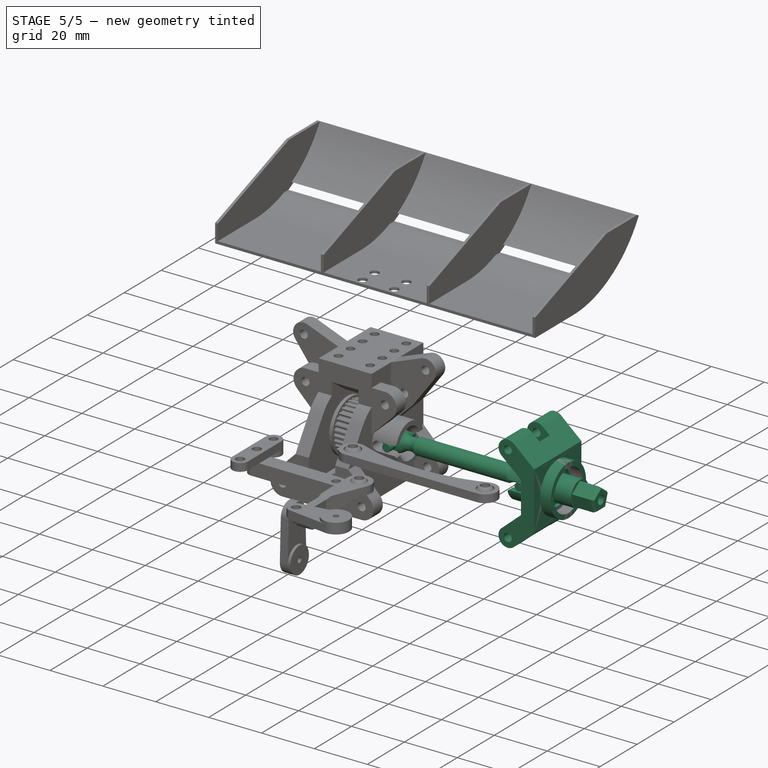
[diagram: stage 5 of 5 — iso view after this stage's code; geometry added in this stage tinted green]
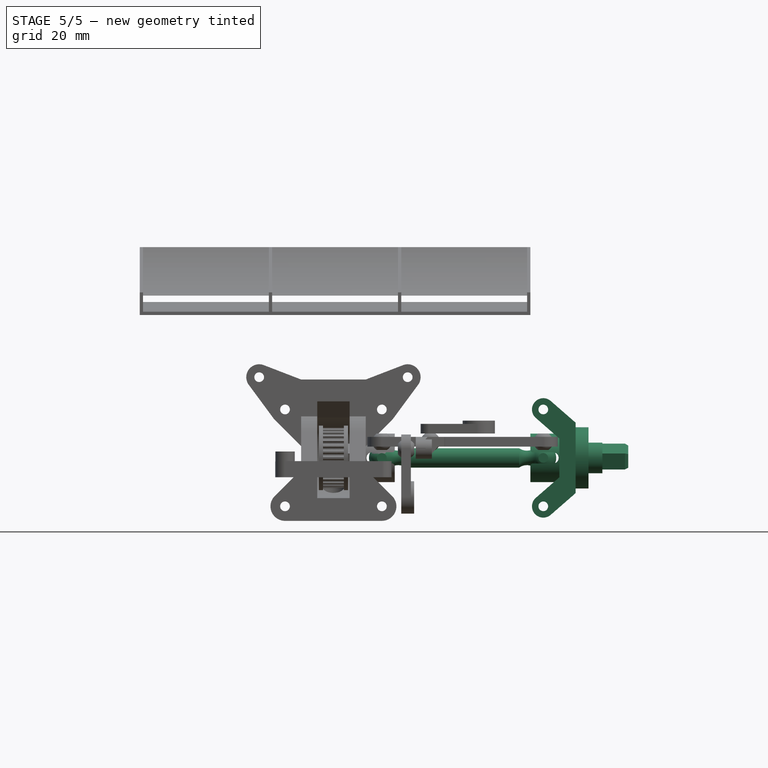
[diagram: stage 5 of 5 — front view after this stage's code; geometry added in this stage tinted green]
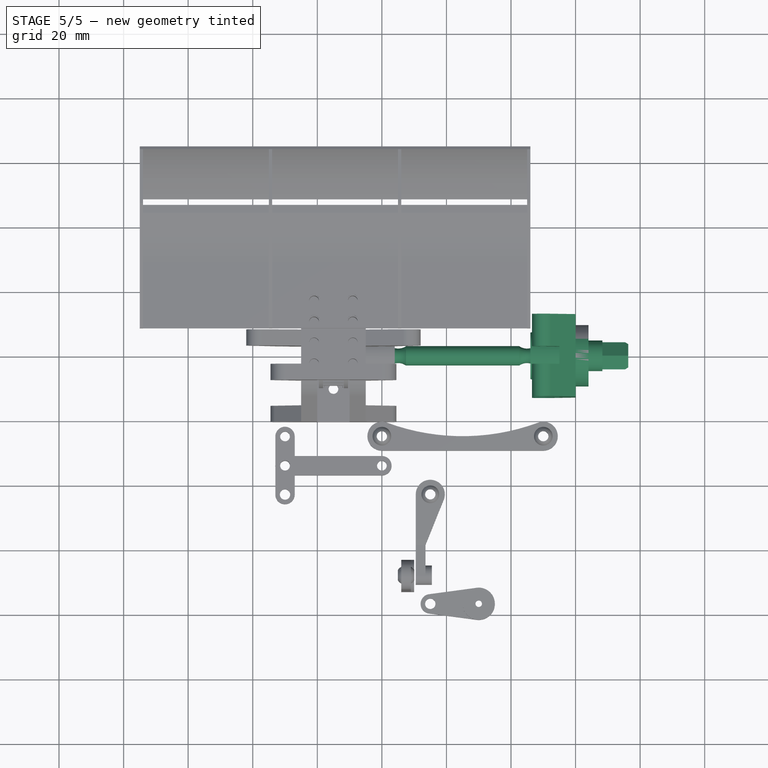
[diagram: stage 5 of 5 — top view after this stage's code; geometry added in this stage tinted green]
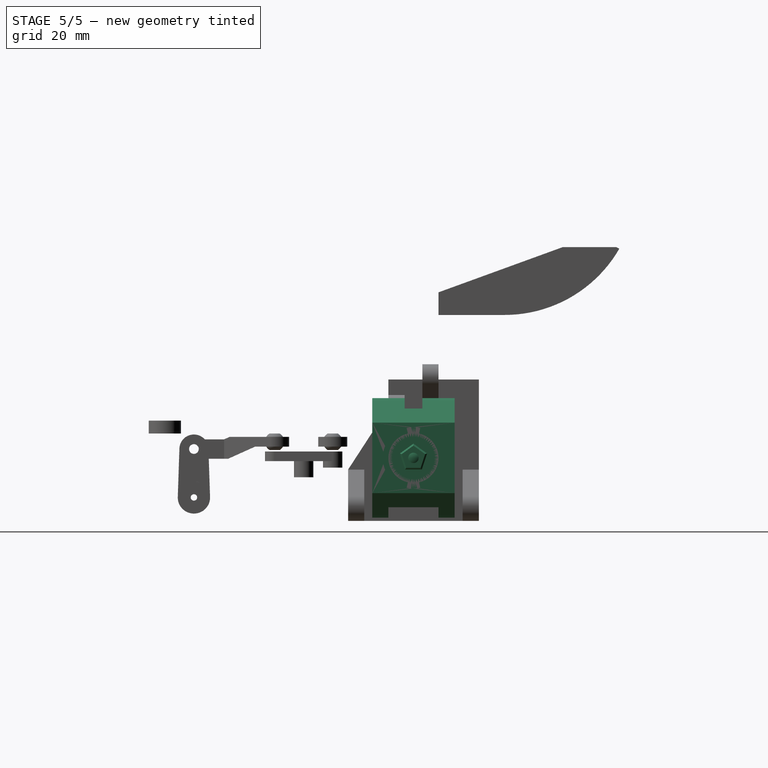
[diagram: stage 5 of 5 — right view after this stage's code; geometry added in this stage tinted green]
FEATURE [PartDesign::Body] Body002  label="upper_arm"
  AutoGroupSolids = false
  ClaimAllChildren = false
  ExportMode = 0
  FixShape = 1
  Group = -> [Sketch003,Import001,Pad001]
  InvalidShape = false
  Origin = -> Origin002
  Tip = -> Pad001
  TreeRank = 40
  ValidateShape = false
  _ExportChildren = -> [Import001,Pad001]
  _GroupVersion = 1
FEATURE [Part::SubShapeBinder] Import002  label="Import002(arm_directions)..."
  BindCopyOnChange = 0
  BindMode = 0
  ClaimChildren = false
  Context = -> Body003 [Import002.]
  EdgeTolerance = 1e-06
  FillStyle = 0
  FixShape = 1
  Fuse = false
  InvalidShape = false
  MakeFace = false
  MergeEdges = true
  OffsetFill = false
  OffsetIntersection = false
  OffsetJoinType = 0
  OffsetOpenResult = false
  Outline = false
  PartialLoad = false
  Relative = true
  SplitEdges = false
  Support = -> [Body[Sketch.],DatumPlane]
  TightBound = false
  TreeRank = 55
  ValidateShape = false
  _Version = 8
FEATURE [Sketcher::SketchObject] Sketch004
  ArcFitTolerance = 1e-06
  AttachmentSupport = -> [XZ_Plane003]
  ExternalBSplineMaxDegree = 5
  ExternalBSplineTolerance = 0.0001
  ExternalGeometry = -> [Import002]
  FixShape = 1
  FullyConstrained = true
  InternalTolerance = 1e-06
  InvalidShape = false
  MakeInternals = false
  MapMode = 5
  Placement = pos=(0,0,0) rot=(1,0,0;1.5708rad)
  Support = -> [XZ_Plane003]
  TreeRank = 54
  ValidateShape = false
  sketch-geometry (10):
    g0: Circle CenterX=50 CenterY=30 CenterZ=0 NormalX=0 NormalY=0 NormalZ=1 AngleXU=0 Radius=1.5
    g1: Circle CenterX=50 CenterY=0 CenterZ=0 NormalX=0 NormalY=0 NormalZ=1 AngleXU=0 Radius=1.5
    g2: ArcOfCircle CenterX=50 CenterY=30 CenterZ=0 NormalX=0 NormalY=0 NormalZ=1 AngleXU=0 Radius=3.5 StartAngle=0.853962 EndAngle=3.99555
    g3: ArcOfCircle CenterX=50 CenterY=0 CenterZ=0 NormalX=0 NormalY=0 NormalZ=1 AngleXU=0 Radius=3.5 StartAngle=2.28763 EndAngle=5.42922
    g4: LineSegment StartX=47.7005 StartY=2.63861 StartZ=0 EndX=55 EndY=9 EndZ=0
    g5: LineSegment StartX=47.7005 StartY=27.3614 StartZ=0 EndX=55 EndY=21 EndZ=0
    g6: LineSegment StartX=55 StartY=21 StartZ=0 EndX=55 EndY=9 EndZ=0
    g7: LineSegment StartX=52.2995 StartY=32.6386 StartZ=0 EndX=60 EndY=25.9278 EndZ=0
    g8: LineSegment StartX=60 StartY=25.9278 StartZ=0 EndX=60 EndY=4.07223 EndZ=0
    g9: LineSegment StartX=60 StartY=4.07223 StartZ=0 EndX=52.2995 EndY=-2.63861 EndZ=0
  constraints (23):
    c: Coincident(g0,g-3)
    c: Coincident(g1,g-4)
    c: Diameter(g1) = 3
    c: Equal(g1,g0)
    c: Coincident(g2,g0)
    c: Coincident(g3,g1)
    c: Coincident(g6,g5)
    c: Coincident(g6,g4)
    c: Coincident(g8,g7)
    c: Vertical(g8)
    c: Coincident(g9,g8)
    c: Tangent(g9,g3) = 1.5708
    c: Tangent(g4,g3) = 1.5708
    c: Tangent(g5,g2) = -1.5708
    c: Tangent(g7,g2) = 1.5708
    c: Equal(g2,g3)
    c: Parallel(g9,g4)
    c: Parallel(g5,g7)
    c: Symmetric(g5,g4,g-5)
    c: Diameter(g2) = 7
    c: DistanceX(g5,g7) = 5
    c: DistanceX(g0,g5) = 5
    c: DistanceY(g6,g6) = 12
FEATURE [PartDesign::Plane] DatumPlane  label="outer_plane"
  AttachmentOffset = pos=(0,0,5.25) rot=(0,0,1;0rad)
  AttachmentSupport = -> [Mirrored]
  FixShape = 1
  InvalidShape = false
  Length = 10
  MapMode = 5
  MinimumLength = 10
  MinimumWidth = 10
  Placement = pos=(0,12.75,-1.2e-15) rot=(0,0.707107,0.707107;3.14159rad)
  ResizeMode = 0
  Support = -> [Mirrored]
  TreeRank = 56
  ValidateShape = false
  Width = 10
FEATURE [PartDesign::Pad] Pad002  label="bulk_side"
  AddSubType = 0
  AlongSketchNormal = false
  AutoTaperInnerAngle = true
  CheckUpToFaceLimits = true
  ClaimChildren = false
  Direction = (0,-1,-2e-16)
  Fit = 0
  FitJoin = 0
  FixShape = 1
  InnerFit = 0
  InnerFitJoin = 0
  InvalidShape = false
  Length = 10
  Length2 = 100
  Linearize = true
  NewSolid = true
  Profile = -> Sketch004
  Refine = true
  Suppress = false
  TaperInnerAngle = 0
  TaperInnerAngleRev = 0
  TreeRank = 57
  Type = 3
  UpToFace = -> DatumPlane
  ValidateShape = false
  _ProfileBasedVersion = 1
FEATURE [PartDesign::Plane] DatumPlane001  label="midplane"
  AttachmentSupport = -> [Sketch,XY_Plane003]
  FixShape = 1
  InvalidShape = false
  Length = 50
  MapMode = 6
  MinimumLength = 10
  MinimumWidth = 10
  Placement = pos=(50,-3.3e-15,15) rot=(0,0,1;3.14159rad)
  ResizeMode = 0
  Support = -> [Sketch,XY_Plane003]
  TreeRank = 58
  ValidateShape = false
  Width = 10
FEATURE [Part::SubShapeBinder] Import003  label="Import003(Pad001)"
  BindCopyOnChange = 0
  BindMode = 0
  ClaimChildren = false
  Context = -> Body003 [Import003.]
  EdgeTolerance = 1e-06
  FillStyle = 0
  FixShape = 1
  Fuse = false
  InvalidShape = false
  MakeFace = false
  MergeEdges = true
  OffsetFill = false
  OffsetIntersection = false
  OffsetJoinType = 0
  OffsetOpenResult = false
  Outline = false
  PartialLoad = false
  Relative = true
  SplitEdges = false
  Support = -> [Body002[Pad001.]]
  TightBound = false
  TreeRank = 60
  ValidateShape = false
  _Version = 8
FEATURE [Sketcher::SketchObject] Sketch005
  ArcFitTolerance = 1e-06
  AttachmentSupport = -> [DatumPlane001]
  ExternalBSplineMaxDegree = 5
  ExternalBSplineTolerance = 0.0001
  ExternalGeometry = -> [Import003,Pad002]
  FixShape = 1
  FullyConstrained = true
  InternalTolerance = 1e-06
  InvalidShape = false
  MakeInternals = false
  MapMode = 5
  Placement = pos=(50,-3.3e-15,15) rot=(0,0,1;3.14159rad)
  Support = -> [DatumPlane001]
  TreeRank = 59
  ValidateShape = false
  sketch-geometry (4):
    g0: LineSegment StartX=-5 StartY=0 StartZ=0 EndX=25 EndY=0 EndZ=0
    g1: LineSegment StartX=25 StartY=0 StartZ=0 EndX=25 EndY=-2.75 EndZ=0
    g2: LineSegment StartX=25 StartY=-2.75 StartZ=0 EndX=-5 EndY=-2.75 EndZ=0
    g3: LineSegment StartX=-5 StartY=-2.75 StartZ=0 EndX=-5 EndY=0 EndZ=0
  constraints (12):
    c: Coincident(g0,g1)
    c: Coincident(g1,g2)
    c: Coincident(g2,g3)
    c: Coincident(g3,g0)
    c: Horizontal(g0)
    c: Horizontal(g2)
    c: Vertical(g1)
    c: Vertical(g3)
    c: PointOnObject(g0,g-1)
    c: DistanceY(g1,g-3) = 0.25
    c: PointOnObject(g2,g-4)
    c: DistanceX(g0,g0) = 30
FEATURE [PartDesign::Pocket] Pocket001  label="cut_upper_slot"
  AddSubType = 1
  AutoTaperInnerAngle = true
  BaseFeature = -> Pad002
  CheckUpToFaceLimits = true
  ClaimChildren = false
  Fit = 0
  FitJoin = 0
  FixShape = 1
  InnerFit = 0
  InnerFitJoin = 0
  InvalidShape = false
  Length = 5
  Length2 = 100
  Linearize = true
  NewSolid = false
  Profile = -> Sketch005
  Refine = true
  Reversed = true
  Suppress = false
  TaperInnerAngle = 0
  TaperInnerAngleRev = 0
  TreeRank = 61
  Type = 1
  ValidateShape = false
  _ProfileBasedVersion = 1
  _Version = 1
FEATURE [Part::SubShapeBinder] Import015  label="Import015(arm_directions)"
  BindCopyOnChange = 0
  BindMode = 0
  ClaimChildren = false
  Context = -> Body007 [Import015.]
  EdgeTolerance = 1e-06
  FillStyle = 0
  FixShape = 1
  Fuse = false
  InvalidShape = false
  MakeFace = false
  MergeEdges = true
  OffsetFill = false
  OffsetIntersection = false
  OffsetJoinType = 0
  OffsetOpenResult = false
  Outline = false
  PartialLoad = false
  Relative = true
  SplitEdges = false
  Support = -> [Body[Sketch.]]
  TightBound = false
  TreeRank = 202
  ValidateShape = false
  _Version = 8
FEATURE [Sketcher::SketchObject] Sketch036
  ArcFitTolerance = 1e-06
  AttachmentSupport = -> [XZ_Plane007]
  ExternalBSplineMaxDegree = 5
  ExternalBSplineTolerance = 0.0001
  ExternalGeometry = -> [Import015]
  FixShape = 1
  FullyConstrained = true
  InternalTolerance = 1e-06
  InvalidShape = false
  MakeInternals = false
  MapMode = 5
  Placement = pos=(0,0,0) rot=(1,0,0;1.5708rad)
  Support = -> [XZ_Plane007]
  TreeRank = 201
  ValidateShape = false
  sketch-geometry (7):
    g0: ArcOfCircle CenterX=0 CenterY=15 CenterZ=0 NormalX=0 NormalY=0 NormalZ=1 AngleXU=0 Radius=4 StartAngle=0.905859 EndAngle=3.14159
    g1: ArcOfCircle CenterX=50 CenterY=15 CenterZ=0 NormalX=0 NormalY=0 NormalZ=1 AngleXU=0 Radius=4 StartAngle=0 EndAngle=2.23573
    g2: ArcOfCircle CenterX=5.06827 CenterY=21.4643 CenterZ=0 NormalX=0 NormalY=0 NormalZ=1 AngleXU=0 Radius=4.21425 StartAngle=4.04745 EndAngle=5.31821
    g3: ArcOfCircle CenterX=44.9317 CenterY=21.4643 CenterZ=0 NormalX=0 NormalY=0 NormalZ=1 AngleXU=0 Radius=4.21425 StartAngle=4.10656 EndAngle=5.37733
    g4: LineSegment StartX=7.46804 StartY=18 StartZ=0 EndX=42.532 EndY=18 EndZ=0
    g5: LineSegment [constr] StartX=44.9317 StartY=17.25 StartZ=0 EndX=44.9317 EndY=15 EndZ=0
    g6: LineSegment StartX=-4 StartY=15 StartZ=0 EndX=54 EndY=15 EndZ=0
  constraints (22):
    c: Coincident(g0,g-3)
    c: Coincident(g1,g-3)
    c: Horizontal(g1,g1)
    c: Horizontal(g0,g0)
    c: Equal(g0,g1)
    c: Radius(g0) = 4
    c: Horizontal(g4)
    c: Equal(g3,g2)
    c: Tangent(g3,g1) = 1.5708
    c: Tangent(g2,g0) = 1.5708
    c: Coincident(g4,g2)
    c: Coincident(g3,g4)
    c: DistanceY(g1,g3) = 3
    c: PointOnObject(g5,g3)
    c: PointOnObject(g5,g-3)
    c: Vertical(g5)
    c: Perpendicular(g3,g5)
    c: DistanceY(g5,g5) = 2.25
    c: DistanceX(g3,g1) = 5
    c: Coincident(g6,g0)
    c: Coincident(g6,g1)
    c: Horizontal(g2,g3)
FEATURE [PartDesign::SubShapeBinder] Import016  label="Import016(arm_directions)"
  BindCopyOnChange = 0
  BindMode = 0
  ClaimChildren = false
  Context = -> Body007 [Import016.]
  EdgeTolerance = 1e-06
  FillStyle = 0
  FixShape = 1
  Fuse = false
  InvalidShape = false
  MakeFace = false
  MergeEdges = true
  OffsetFill = false
  OffsetIntersection = false
  OffsetJoinType = 0
  OffsetOpenResult = false
  Outline = false
  PartialLoad = false
  Relative = true
  SplitEdges = false
  Support = -> [Body[Sketch.Edge4]]
  TightBound = false
  TreeRank = 204
  ValidateShape = false
  _Version = 8
FEATURE [Sketcher::SketchObject] Sketch038  label="axis"
  ArcFitTolerance = 1e-06
  AttachmentSupport = -> [XZ_Plane007]
  ExternalBSplineMaxDegree = 5
  ExternalBSplineTolerance = 0.0001
  ExternalGeometry = -> [Import015]
  FixShape = 1
  FullyConstrained = true
  InternalTolerance = 1e-06
  InvalidShape = false
  MakeInternals = false
  MapMode = 5
  Placement = pos=(0,0,0) rot=(1,0,0;1.5708rad)
  Support = -> [XZ_Plane007]
  TreeRank = 207
  ValidateShape = false
  sketch-geometry (1):
    g0: LineSegment StartX=0 StartY=15 StartZ=0 EndX=50 EndY=15 EndZ=0
  constraints (2):
    c: Coincident(g0,g-3)
    c: Coincident(g0,g-3)
FEATURE [PartDesign::Line] DatumLine  label="axisdatum"
  AttacherType = Attacher::AttachEngineLine
  AttachmentSupport = -> [Sketch038]
  FixShape = 1
  InvalidShape = false
  Length = 50
  MapMode = 29
  MinimumLength = 10
  Placement = pos=(0,-3.3e-15,15) rot=(0.57735,0.57735,0.57735;2.0944rad)
  ResizeMode = 0
  Support = -> [Sketch038]
  TreeRank = 208
  ValidateShape = false
FEATURE [PartDesign::Revolution] Revolution
  AddSubType = 0
  Angle = 360
  Axis = (1,1e-16,-1e-16)
  Base = (0,-3.3e-15,15)
  ClaimChildren = false
  Fit = 0
  FitJoin = 0
  FixShape = 1
  InnerFit = 0
  InnerFitJoin = 0
  InvalidShape = false
  Linearize = true
  NewSolid = false
  Profile = -> Sketch036
  ReferenceAxis = -> DatumLine
  Refine = true
  Suppress = false
  TreeRank = 203
  ValidateShape = false
  _ProfileBasedVersion = 1
FEATURE [Sketcher::SketchObject] Sketch037
  ArcFitTolerance = 1e-06
  AttachmentSupport = -> [XZ_Plane007]
  ExternalBSplineMaxDegree = 5
  ExternalBSplineTolerance = 0.0001
  ExternalGeometry = -> [Revolution]
  FixShape = 1
  FullyConstrained = true
  InternalTolerance = 1e-06
  InvalidShape = false
  MakeInternals = false
  MapMode = 5
  Placement = pos=(0,0,0) rot=(1,0,0;1.5708rad)
  Support = -> [XZ_Plane007]
  TreeRank = 205
  ValidateShape = false
  sketch-geometry (2):
    g0: Circle CenterX=50 CenterY=15 CenterZ=0 NormalX=0 NormalY=0 NormalZ=1 AngleXU=0 Radius=1.5
    g1: Circle CenterX=0 CenterY=15 CenterZ=0 NormalX=0 NormalY=0 NormalZ=1 AngleXU=0 Radius=1.5
  constraints (4):
    c: Coincident(g0,g-4)
    c: Coincident(g1,g-3)
    c: Diameter(g1) = 3
    c: Equal(g0,g1)
FEATURE [PartDesign::Pad] Pad014
  AddSubType = 0
  AlongSketchNormal = false
  AutoTaperInnerAngle = true
  BaseFeature = -> Revolution
  CheckUpToFaceLimits = true
  ClaimChildren = false
  Direction = (0,-1,-2e-16)
  Fit = 0
  FitJoin = 0
  FixShape = 1
  InnerFit = 0
  InnerFitJoin = 0
  InvalidShape = false
  Length = 7
  Length2 = 100
  Linearize = true
  NewSolid = false
  Profile = -> Sketch037
  Refine = true
  Suppress = false
  TaperInnerAngle = 0
  TaperInnerAngleRev = 0
  TreeRank = 206
  Type = 0
  ValidateShape = false
  _ProfileBasedVersion = 1
FEATURE [PartDesign::PolarPattern] PolarPattern
  AddSubType = 0
  Angle = 360
  Axis = -> DatumLine
  BaseFeature = -> Pad014
  CopyShape = false
  FixShape = 1
  InvalidShape = false
  NewSolid = false
  Occurrences = 2
  OriginalSubs = -> [Pad014]
  Originals = -> [Pad014]
  ParallelTransform = true
  Refine = true
  SubTransform = true
  Suppress = false
  TreeRank = 209
  ValidateShape = false
  _Version = 3
FEATURE [PartDesign::Body] Body007  label="drive_shaft"
  AutoGroupSolids = false
  ClaimAllChildren = false
  ExportMode = 0
  FixShape = 1
  Group = -> [Sketch036,Import015,Import016,Sketch038,DatumLine,Revolution,Sketch037,Pad014,PolarPattern]
  InvalidShape = false
  Origin = -> Origin007
  Tip = -> PolarPattern
  TreeRank = 200
  ValidateShape = false
  _ExportChildren = -> [Import015,Import016,Sketch038,DatumLine,Revolution,Pad014,PolarPattern]
  _GroupVersion = 1
FEATURE [PartDesign::Line] DatumLine001  label="axis001"
  AttacherType = Attacher::AttachEngineLine
  AttachmentSupport = -> [Sketch]
  FixShape = 1
  InvalidShape = false
  Length = 68
  MapMode = 29
  MinimumLength = 10
  Placement = pos=(0,-3.3e-15,15) rot=(0.57735,0.57735,0.57735;2.0944rad)
  ResizeMode = 0
  Support = -> [Sketch]
  TreeRank = 220
  ValidateShape = false
FEATURE [Part::SubShapeBinder] Import017  label="Import017(through_hole001)"
  BindCopyOnChange = 0
  BindMode = 0
  ClaimChildren = false
  Context = -> Body008 [Import017.]
  EdgeTolerance = 1e-06
  FillStyle = 0
  FixShape = 1
  Fuse = false
  InvalidShape = false
  MakeFace = false
  MergeEdges = true
  OffsetFill = false
  OffsetIntersection = false
  OffsetJoinType = 0
  OffsetOpenResult = false
  Outline = false
  PartialLoad = false
  Relative = true
  SplitEdges = false
  Support = -> [Body003[Pocket007.]]
  TightBound = false
  TreeRank = 222
  ValidateShape = false
  _Version = 8
FEATURE [Part::SubShapeBinder] Import018  label="Import018(PolarPattern)"
  BindCopyOnChange = 0
  BindMode = 0
  ClaimChildren = false
  Context = -> Body008 [Import018.]
  EdgeTolerance = 1e-06
  FillStyle = 0
  FixShape = 1
  Fuse = false
  InvalidShape = false
  MakeFace = false
  MergeEdges = true
  OffsetFill = false
  OffsetIntersection = false
  OffsetJoinType = 0
  OffsetOpenResult = false
  Outline = false
  PartialLoad = false
  Relative = true
  SplitEdges = false
  Support = -> [Body007[PolarPattern.]]
  TightBound = false
  TreeRank = 223
  ValidateShape = false
  _Version = 8
FEATURE [Sketcher::SketchObject] Sketch039
  ArcFitTolerance = 1e-06
  AttachmentSupport = -> [XZ_Plane008]
  ExternalBSplineMaxDegree = 5
  ExternalBSplineTolerance = 0.0001
  ExternalGeometry = -> [DatumLine001,Import017,Import018]
  FixShape = 1
  FullyConstrained = true
  InternalTolerance = 1e-06
  InvalidShape = false
  MakeInternals = false
  MapMode = 5
  Placement = pos=(0,0,0) rot=(1,0,0;1.5708rad)
  Support = -> [XZ_Plane008]
  TreeRank = 221
  ValidateShape = false
  sketch-geometry (10):
    g0: ArcOfCircle CenterX=50 CenterY=15 CenterZ=0 NormalX=0 NormalY=0 NormalZ=1 AngleXU=0 Radius=4.25 StartAngle=-1.8e-15 EndAngle=1.5708
    g1: LineSegment StartX=50 StartY=19.25 StartZ=0 EndX=48 EndY=19.25 EndZ=0
    g2: LineSegment StartX=46 StartY=22.5 StartZ=0 EndX=55 EndY=22.5 EndZ=0
    g3: LineSegment StartX=55 StartY=22.5 StartZ=0 EndX=55 EndY=19.75 EndZ=0
    g4: LineSegment StartX=55 StartY=19.75 StartZ=0 EndX=64 EndY=19.75 EndZ=0
    g5: LineSegment StartX=48 StartY=19.25 StartZ=0 EndX=46 EndY=20.75 EndZ=0
    g6: LineSegment StartX=46 StartY=20.75 StartZ=0 EndX=46 EndY=22.5 EndZ=0
    g7: GeomPoint [constr] X=50 Y=19 Z=0
    g8: LineSegment StartX=54.25 StartY=15 StartZ=0 EndX=64 EndY=15 EndZ=0
    g9: LineSegment StartX=64 StartY=15 StartZ=0 EndX=64 EndY=19.75 EndZ=0
  constraints (28):
    c: Horizontal(g1)
    c: PointOnObject(g2,g-4)
    c: Horizontal(g2)
    c: Coincident(g3,g2)
    c: PointOnObject(g3,g-4)
    c: Coincident(g4,g3)
    c: PointOnObject(g4,g-5)
    c: Horizontal(g4)
    c: PointOnObject(g0,g-3)
    c: Tangent(g1,g0) = -1.5708
    c: Coincident(g0,g-6)
    c: Coincident(g5,g1)
    c: Coincident(g6,g5)
    c: Vertical(g6)
    c: Coincident(g6,g2)
    c: DistanceY(g0,g4) = 4.75
    c: DistanceY(g0,g2) = 7.5
    c: PointOnObject(g7,g-6)
    c: Vertical(g7,g0)
    c: DistanceY(g7,g0) = 0.25
    c: DistanceX(g1,g1) = 2
    c: DistanceX(g5,g1) = 2
    c: DistanceY(g6,g6) = 1.75
    c: Coincident(g8,g0)
    c: PointOnObject(g8,g-3)
    c: Coincident(g9,g8)
    c: Coincident(g9,g4)
    c: Vertical(g9)
FEATURE [PartDesign::Revolution] Revolution001
  AddSubType = 0
  Angle = 360
  Axis = (1,1e-16,-1e-16)
  Base = (0,-3.3e-15,15)
  ClaimChildren = false
  Fit = 0
  FitJoin = 0
  FixShape = 1
  InnerFit = 0
  InnerFitJoin = 0
  InvalidShape = false
  Linearize = true
  NewSolid = false
  Profile = -> Sketch039
  ReferenceAxis = -> DatumLine001
  Refine = true
  Reversed = true
  Suppress = false
  TreeRank = 224
  ValidateShape = false
  _ProfileBasedVersion = 1
FEATURE [Sketcher::SketchObject] Sketch040
  ArcFitTolerance = 1e-06
  AttachmentSupport = -> [XZ_Plane008]
  ExternalBSplineMaxDegree = 5
  ExternalBSplineTolerance = 0.0001
  ExternalGeometry = -> [Import018,Revolution001]
  FixShape = 1
  FullyConstrained = false
  InternalTolerance = 1e-06
  InvalidShape = false
  MakeInternals = false
  MapMode = 5
  Placement = pos=(0,0,0) rot=(1,0,0;1.5708rad)
  Support = -> [XZ_Plane008]
  TreeRank = 225
  ValidateShape = false
  sketch-geometry (7):
    g0: ArcOfCircle CenterX=53 CenterY=15 CenterZ=0 NormalX=0 NormalY=0 NormalZ=1 AngleXU=0 Radius=1.75 StartAngle=4.71239 EndAngle=7.85398
    g1: GeomPoint [constr] X=50 Y=16.5 Z=0
    g2: LineSegment StartX=53 StartY=16.75 StartZ=0 EndX=46.5 EndY=16.75 EndZ=0
    g3: LineSegment StartX=53 StartY=13.25 StartZ=0 EndX=46.5 EndY=13.25 EndZ=0
    g4: LineSegment StartX=46.5 StartY=13.25 StartZ=0 EndX=46 EndY=12.75 EndZ=0
    g5: LineSegment StartX=46.5 StartY=16.75 StartZ=0 EndX=46 EndY=17.25 EndZ=0
    g6: LineSegment StartX=46 StartY=17.25 StartZ=0 EndX=46 EndY=12.75 EndZ=0
  constraints (18):
    c: PointOnObject(g1,g-3)
    c: DistanceY(g1,g0) = 0.25
    c: Horizontal(g2)
    c: Horizontal(g3)
    c: Coincident(g4,g3)
    c: PointOnObject(g4,g-4)
    c: Coincident(g5,g2)
    c: PointOnObject(g5,g-4)
    c: Coincident(g6,g5)
    c: Coincident(g6,g4)
    c: Equal(g4,g5)
    c: Vertical(g2,g3)
    c: Angle(g2,g5) = 2.35619
    c: DistanceX(g5,g2) = 0.5
    c: Tangent(g3,g0) = 1.5708
    c: Horizontal(g-3,g0)
    c: DistanceX(g-3,g0) = 3
    c: Tangent(g2,g0) = -1.5708
FEATURE [PartDesign::Pocket] Pocket022
  AddSubType = 1
  AutoTaperInnerAngle = true
  BaseFeature = -> Revolution001
  CheckUpToFaceLimits = true
  ClaimChildren = false
  Fit = 0
  FitJoin = 0
  FixShape = 1
  InnerFit = 0
  InnerFitJoin = 0
  InvalidShape = false
  Length = 5
  Length2 = 100
  Linearize = true
  Midplane = true
  NewSolid = false
  Profile = -> Sketch040
  Refine = true
  Suppress = false
  TaperInnerAngle = 0
  TaperInnerAngleRev = 0
  TreeRank = 226
  Type = 1
  ValidateShape = false
  _ProfileBasedVersion = 1
  _Version = 1
FEATURE [Sketcher::SketchObject] Sketch041
  ArcFitTolerance = 1e-06
  AttachmentSupport = -> [Pocket022]
  ExternalBSplineMaxDegree = 5
  ExternalBSplineTolerance = 0.0001
  ExternalGeometry = -> [Pocket022]
  FixShape = 1
  FullyConstrained = true
  InternalTolerance = 1e-06
  InvalidShape = false
  MakeInternals = false
  MapMode = 5
  Placement = pos=(64,7.1e-15,-7.1e-15) rot=(0.57735,0.57735,0.57735;2.0944rad)
  Support = -> [Pocket022]
  TreeRank = 227
  ValidateShape = false
  sketch-geometry (6):
    g0: LineSegment StartX=0 StartY=19.4223 StartZ=0 EndX=-4.20585 EndY=16.3666 EndZ=0
    g1: LineSegment StartX=-4.20585 StartY=16.3666 StartZ=0 EndX=-2.59936 EndY=11.4223 EndZ=0
    g2: LineSegment StartX=-2.59936 StartY=11.4223 StartZ=0 EndX=2.59936 EndY=11.4223 EndZ=0
    g3: LineSegment StartX=2.59936 StartY=11.4223 StartZ=0 EndX=4.20585 EndY=16.3666 EndZ=0
    g4: LineSegment StartX=4.20585 StartY=16.3666 StartZ=0 EndX=0 EndY=19.4223 EndZ=0
    g5: Circle [constr] CenterX=-1.08e-14 CenterY=15 CenterZ=0 NormalX=0 NormalY=0 NormalZ=1 AngleXU=0 Radius=4.42229
  constraints (14):
    c: Coincident(g0,g1)
    c: Coincident(g1,g2)
    c: Coincident(g2,g3)
    c: Coincident(g3,g4)
    c: Coincident(g4,g0)
    c: Equal(g0, g1-g4) x4
    c: PointOnObject(g0,g5)
    c: PointOnObject(g1,g5)
    c: PointOnObject(g2,g5)
    c: PointOnObject(g3,g5)
    c: PointOnObject(g4,g5)
    c: Coincident(g5,g-3)
    c: PointOnObject(g4,g-2)
    c: DistanceY(g2,g0) = 8
FEATURE [PartDesign::Pad] Pad015
  AddSubType = 0
  AlongSketchNormal = false
  AutoTaperInnerAngle = true
  BaseFeature = -> Pocket022
  CheckUpToFaceLimits = true
  ClaimChildren = false
  Direction = (1,0,0)
  Fit = 0
  FitJoin = 0
  FixShape = 1
  InnerFit = 0
  InnerFitJoin = 0
  InvalidShape = false
  Length = 8
  Length2 = 100
  Linearize = true
  NewSolid = false
  Profile = -> Sketch041
  Refine = true
  Suppress = false
  TaperInnerAngle = 0
  TaperInnerAngleRev = 0
  TreeRank = 228
  Type = 0
  ValidateShape = false
  _ProfileBasedVersion = 1
FEATURE [Sketcher::SketchObject] Sketch042
  ArcFitTolerance = 1e-06
  AttachmentSupport = -> [Pad015]
  ExternalBSplineMaxDegree = 5
  ExternalBSplineTolerance = 0.0001
  ExternalGeometry = -> [Pad015]
  FixShape = 1
  FullyConstrained = true
  InternalTolerance = 1e-06
  InvalidShape = false
  MakeInternals = false
  MapMode = 5
  Placement = pos=(72,0,0) rot=(0.57735,0.57735,0.57735;2.0944rad)
  Support = -> [Pad015]
  TreeRank = 229
  ValidateShape = false
  sketch-geometry (1):
    g0: Circle CenterX=0 CenterY=15 CenterZ=0 NormalX=0 NormalY=0 NormalZ=1 AngleXU=0 Radius=1.6
  constraints (2):
    c: Coincident(g0,g-3)
    c: Diameter(g0) = 3.2
FEATURE [PartDesign::Pocket] Pocket023
  AddSubType = 1
  AutoTaperInnerAngle = true
  BaseFeature = -> Pad015
  CheckUpToFaceLimits = true
  ClaimChildren = false
  Fit = 0
  FitJoin = 0
  FixShape = 1
  InnerFit = 0
  InnerFitJoin = 0
  InvalidShape = false
  Length = 5
  Length2 = 100
  Linearize = true
  NewSolid = false
  Profile = -> Sketch042
  Refine = true
  Suppress = false
  TaperInnerAngle = 0
  TaperInnerAngleRev = 0
  TreeRank = 230
  Type = 1
  ValidateShape = false
  _ProfileBasedVersion = 1
  _Version = 1
FEATURE [Sketcher::SketchObject] Sketch043
  ArcFitTolerance = 1e-06
  AttachmentSupport = -> [Pocket023]
  ExternalBSplineMaxDegree = 5
  ExternalBSplineTolerance = 0.0001
  ExternalGeometry = -> [Pocket023]
  FixShape = 1
  FullyConstrained = true
  InternalTolerance = 1e-06
  InvalidShape = false
  MakeInternals = false
  MapMode = 11
  Placement = pos=(53.9373,-3.3e-15,15) rot=(-0.57735,0.57735,-0.57735;2.0944rad)
  Support = -> [Pocket023]
  TreeRank = 231
  ValidateShape = false
  sketch-geometry (1):
    g0: Circle CenterX=0 CenterY=0 CenterZ=0 NormalX=0 NormalY=0 NormalZ=1 AngleXU=0 Radius=3
  constraints (2):
    c: Coincident(g0,g-3)
    c: Diameter(g0) = 6
FEATURE [PartDesign::Pocket] Pocket024
  AddSubType = 1
  AutoTaperInnerAngle = true
  BaseFeature = -> Pocket023
  CheckUpToFaceLimits = true
  ClaimChildren = false
  Fit = 0
  FitJoin = 0
  FixShape = 1
  InnerFit = 0
  InnerFitJoin = 0
  InvalidShape = false
  Length = 6
  Length2 = 100
  Linearize = true
  Midplane = true
  NewSolid = false
  Profile = -> Sketch043
  Refine = true
  Suppress = false
  TaperInnerAngle = 0
  TaperInnerAngleRev = 0
  TreeRank = 232
  Type = 0
  ValidateShape = false
  _ProfileBasedVersion = 1
  _Version = 1
FEATURE [PartDesign::Line] DatumLine002  label="axis002"
  AttacherType = Attacher::AttachEngineLine
  AttachmentSupport = -> [Sketch]
  FixShape = 1
  InvalidShape = false
  Length = 10
  MapMode = 29
  MinimumLength = 10
  Placement = pos=(0,-3.3e-15,15) rot=(0.57735,0.57735,0.57735;2.0944rad)
  ResizeMode = 0
  Support = -> [Sketch]
  TreeRank = 243
  ValidateShape = false
FEATURE [Part::SubShapeBinder] Import019  label="Import019(PolarPattern)"
  BindCopyOnChange = 0
  BindMode = 0
  ClaimChildren = false
  Context = -> Body009 [Import019.]
  EdgeTolerance = 1e-06
  FillStyle = 0
  FixShape = 1
  Fuse = false
  InvalidShape = false
  MakeFace = false
  MergeEdges = true
  OffsetFill = false
  OffsetIntersection = false
  OffsetJoinType = 0
  OffsetOpenResult = false
  Outline = false
  PartialLoad = false
  Relative = true
  SplitEdges = false
  Support = -> [Body007[PolarPattern.]]
  TightBound = false
  TreeRank = 245
  ValidateShape = false
  _Version = 8
FEATURE [Part::SubShapeBinder] Import020  label="Import020(Pocket020)"
  BindCopyOnChange = 0
  BindMode = 0
  ClaimChildren = false
  Context = -> Body009 [Import020.]
  EdgeTolerance = 1e-06
  FillStyle = 0
  FixShape = 1
  Fuse = false
  InvalidShape = false
  MakeFace = false
  MergeEdges = true
  OffsetFill = false
  OffsetIntersection = false
  OffsetJoinType = 0
  OffsetOpenResult = false
  Outline = false
  PartialLoad = false
  Relative = true
  SplitEdges = false
  Support = -> [Body006[Pocket020.]]
  TightBound = false
  TreeRank = 246
  ValidateShape = false
  _Version = 8
FEATURE [Part::SubShapeBinder] Import021  label="Import021(tower_midplane)"
  BindCopyOnChange = 0
  BindMode = 0
  ClaimChildren = false
  Context = -> Body009 [Import021.]
  EdgeTolerance = 1e-06
  FillStyle = 0
  FixShape = 1
  Fuse = false
  InvalidShape = false
  MakeFace = false
  MergeEdges = true
  OffsetFill = false
  OffsetIntersection = false
  OffsetJoinType = 0
  OffsetOpenResult = false
  Outline = false
  PartialLoad = false
  Relative = true
  SplitEdges = false
  Support = -> [Body006[DatumPlane011.]]
  TightBound = false
  TreeRank = 247
  ValidateShape = false
  _Version = 8
FEATURE [Part::SubShapeBinder] Import022  label="Import022(Pocket024)"
  BindCopyOnChange = 0
  BindMode = 0
  ClaimChildren = false
  Context = -> Body009 [Import022.]
  EdgeTolerance = 1e-06
  FillStyle = 0
  FixShape = 1
  Fuse = false
  InvalidShape = false
  MakeFace = false
  MergeEdges = true
  OffsetFill = false
  OffsetIntersection = false
  OffsetJoinType = 0
  OffsetOpenResult = false
  Outline = false
  PartialLoad = false
  Relative = true
  SplitEdges = false
  Support = -> [Body008[Pocket024.]]
  TightBound = false
  TreeRank = 248
  ValidateShape = false
  _Version = 8
FEATURE [Sketcher::SketchObject] Sketch045
  ArcFitTolerance = 1e-06
  AttachmentSupport = -> [XZ_Plane009]
  ExternalBSplineMaxDegree = 5
  ExternalBSplineTolerance = 0.0001
  ExternalGeometry = -> [Import022,Import019]
  FixShape = 1
  FullyConstrained = false
  InternalTolerance = 1e-06
  InvalidShape = false
  MakeInternals = false
  MapMode = 5
  Placement = pos=(0,0,0) rot=(1,0,0;1.5708rad)
  Support = -> [XZ_Plane009]
  TreeRank = 250
  ValidateShape = false
  sketch-geometry (7):
    g0: LineSegment [constr] StartX=25 StartY=29.0741 StartZ=0 EndX=25 EndY=-3.73651 EndZ=0
    g1: ArcOfCircle CenterX=-3 CenterY=15 CenterZ=0 NormalX=0 NormalY=0 NormalZ=1 AngleXU=0 Radius=1.75 StartAngle=1.5708 EndAngle=4.71239
    g2: LineSegment StartX=-3 StartY=16.75 StartZ=0 EndX=3.5 EndY=16.75 EndZ=0
    g3: LineSegment StartX=3.5 StartY=16.75 StartZ=0 EndX=4 EndY=17.25 EndZ=0
    g4: LineSegment StartX=4 StartY=17.25 StartZ=0 EndX=4 EndY=12.75 EndZ=0
    g5: LineSegment StartX=4 StartY=12.75 StartZ=0 EndX=3.5 EndY=13.25 EndZ=0
    g6: LineSegment StartX=3.5 StartY=13.25 StartZ=0 EndX=-3 EndY=13.25 EndZ=0
  constraints (13):
    c: Symmetric(g-10,g-9,g0)
    c: Coincident(g3,g2)
    c: Coincident(g4,g3)
    c: Coincident(g5,g4)
    c: Coincident(g6,g5)
    c: Coincident(g6,g1)
    c: Symmetric(g1,g-5,g0)
    c: Symmetric(g1,g-6,g0)
    c: Tangent(g2,g1) = 1.5708
    c: Symmetric(g2,g-7,g0)
    c: Symmetric(g3,g-7,g0)
    c: Symmetric(g5,g-8,g0)
    c: Symmetric(g4,g-8,g0)
FEATURE [PartDesign::SubShapeBinder] Binder  label="Binder(tower_midplane)"
  BindCopyOnChange = 0
  BindMode = 0
  ClaimChildren = false
  Context = -> Body009 [Binder.]
  EdgeTolerance = 1e-06
  FillStyle = 0
  FixShape = 1
  Fuse = false
  InvalidShape = false
  MakeFace = true
  MergeEdges = true
  OffsetFill = false
  OffsetIntersection = false
  OffsetJoinType = 0
  OffsetOpenResult = false
  Outline = false
  PartialLoad = false
  Relative = true
  SplitEdges = false
  Support = -> [Body006[DatumPlane011.]]
  TightBound = false
  TreeRank = 252
  ValidateShape = false
  _Version = 8
FEATURE [PartDesign::Line] DatumLine003
  AttacherType = Attacher::AttachEngineLine
  AttachmentSupport = -> [Sketch]
  FixShape = 1
  InvalidShape = false
  Length = 10
  MapMode = 29
  MinimumLength = 10
  Placement = pos=(0,-3.3e-15,15) rot=(0.57735,0.57735,0.57735;2.0944rad)
  ResizeMode = 0
  Support = -> [Sketch]
  TreeRank = 274
  ValidateShape = false
FEATURE [PartDesign::Chamfer] Chamfer001
  AddSubType = 0
  Angle = 45
  Base = -> Pocket024 [Edge76,Edge77,Edge79,Edge80,Edge78]
  BaseFeature = -> Pocket024
  ChamferType = 1
  FixShape = 1
  FlipDirection = false
  InvalidShape = false
  NewSolid = false
  Refine = true
  Size = 0.5
  Size2 = 1
  SupportTransform = false
  Suppress = false
  TreeRank = 276
  ValidateShape = false
FEATURE [PartDesign::Body] Body008  label="lower_cup"
  AutoGroupSolids = false
  ClaimAllChildren = false
  ExportMode = 0
  FixShape = 1
  Group = -> [DatumLine001,Sketch039,Import017,Import018,Revolution001,Sketch040,Pocket022,Sketch041,Pad015,Sketch042,Pocket023,Sketch043,Pocket024,Chamfer001]
  InvalidShape = false
  Origin = -> Origin008
  Tip = -> Chamfer001
  TreeRank = 219
  ValidateShape = false
  _ExportChildren = -> [DatumLine001,Import017,Import018,Revolution001,Pocket022,Pad015,Pocket023,Pocket024,Chamfer001]
  _GroupVersion = 1
FEATURE [Part::SubShapeBinder] Import025  label="Import025(Mirrored008)"
  BindCopyOnChange = 0
  BindMode = 0
  ClaimChildren = false
  Context = -> Body011 [Import025.]
  EdgeTolerance = 1e-06
  FillStyle = 0
  FixShape = 1
  Fuse = false
  InvalidShape = false
  MakeFace = false
  MergeEdges = true
  OffsetFill = false
  OffsetIntersection = false
  OffsetJoinType = 0
  OffsetOpenResult = false
  Outline = false
  PartialLoad = false
  Relative = true
  SplitEdges = false
  Support = -> [Body005[Mirrored008.]]
  TightBound = false
  TreeRank = 289
  ValidateShape = false
  _Version = 8
FEATURE [Sketcher::SketchObject] Sketch050
  ArcFitTolerance = 1e-06
  AttachmentSupport = -> [Mirrored008]
  ExternalBSplineMaxDegree = 5
  ExternalBSplineTolerance = 0.0001
  ExternalGeometry = -> [Import025]
  FixShape = 1
  FullyConstrained = true
  InternalTolerance = 1e-06
  InvalidShape = false
  MakeInternals = false
  MapMode = 5
  Placement = pos=(59.3234,1.85e-14,0) rot=(0.57735,-0.57735,-0.57735;2.0944rad)
  Support = -> [Mirrored008]
  TreeRank = 288
  ValidateShape = false
  sketch-geometry (2):
    g0: Circle CenterX=0 CenterY=15 CenterZ=0 NormalX=0 NormalY=0 NormalZ=1 AngleXU=0 Radius=1.6
    g1: Circle CenterX=0 CenterY=15 CenterZ=0 NormalX=0 NormalY=0 NormalZ=1 AngleXU=0 Radius=6
  constraints (4):
    c: Coincident(g0,g-3)
    c: Coincident(g1,g0)
    c: Diameter(g0) = 3.2
    c: Diameter(g1) = 12
FEATURE [PartDesign::Pad] Pad019
  AddSubType = 0
  AlongSketchNormal = false
  AutoTaperInnerAngle = true
  CheckUpToFaceLimits = true
  ClaimChildren = false
  Direction = (-1,-1e-16,-1e-16)
  Fit = 0
  FitJoin = 0
  FixShape = 1
  InnerFit = 0
  InnerFitJoin = 0
  InvalidShape = false
  Length = 2
  Length2 = 100
  Linearize = true
  NewSolid = true
  Profile = -> Sketch050
  Refine = true
  Suppress = false
  TaperInnerAngle = 0
  TaperInnerAngleRev = 0
  TreeRank = 290
  Type = 0
  ValidateShape = false
  _ProfileBasedVersion = 1
FEATURE [Sketcher::SketchObject] Sketch051
  ArcFitTolerance = 1e-06
  AttachmentSupport = -> [Pad019]
  ExternalBSplineMaxDegree = 5
  ExternalBSplineTolerance = 0.0001
  ExternalGeometry = -> [Pad019]
  FixShape = 1
  FullyConstrained = true
  InternalTolerance = 1e-06
  InvalidShape = false
  MakeInternals = false
  MapMode = 5
  Placement = pos=(59.3234,0,0) rot=(0.57735,0.57735,0.57735;2.0944rad)
  Support = -> [Pad019]
  TreeRank = 291
  ValidateShape = false
  sketch-geometry (1):
    g0: Circle CenterX=0 CenterY=15 CenterZ=0 NormalX=0 NormalY=0 NormalZ=1 AngleXU=0 Radius=4.75
  constraints (2):
    c: Coincident(g0,g-3)
    c: Diameter(g0) = 9.5
FEATURE [PartDesign::SubShapeBinder] Import026  label="Import026(Mirrored008)"
  BindCopyOnChange = 0
  BindMode = 0
  ClaimChildren = false
  Context = -> Body011 [Import026.]
  EdgeTolerance = 1e-06
  FillStyle = 0
  FixShape = 1
  Fuse = false
  InvalidShape = false
  MakeFace = false
  MergeEdges = true
  OffsetFill = false
  OffsetIntersection = false
  OffsetJoinType = 0
  OffsetOpenResult = false
  Outline = false
  PartialLoad = false
  Relative = true
  SplitEdges = false
  Support = -> [Body005[Mirrored008.Face4]]
  TightBound = false
  TreeRank = 293
  ValidateShape = false
  _Version = 8
FEATURE [PartDesign::Pad] Pad020
  AddSubType = 0
  AlongSketchNormal = false
  AutoTaperInnerAngle = true
  BaseFeature = -> Pad019
  CheckUpToFaceLimits = true
  ClaimChildren = false
  Direction = (1,0,0)
  Fit = 0
  FitJoin = 0
  FixShape = 1
  InnerFit = 0
  InnerFitJoin = 0
  InvalidShape = false
  Length = 10
  Length2 = 100
  Linearize = true
  NewSolid = false
  Profile = -> Sketch051
  Refine = true
  Suppress = false
  TaperInnerAngle = 0
  TaperInnerAngleRev = 0
  TreeRank = 292
  Type = 3
  UpToFace = -> Import026
  ValidateShape = false
  _ProfileBasedVersion = 1
FEATURE [Sketcher::SketchObject] Sketch052
  ArcFitTolerance = 1e-06
  AttachmentSupport = -> [Pad020]
  ExternalBSplineMaxDegree = 5
  ExternalBSplineTolerance = 0.0001
  ExternalGeometry = -> [Pad020]
  FixShape = 1
  FullyConstrained = true
  InternalTolerance = 1e-06
  InvalidShape = false
  MakeInternals = false
  MapMode = 5
  Placement = pos=(68.3234,3.5e-14,0) rot=(0.57735,0.57735,0.57735;2.0944rad)
  Support = -> [Pad020]
  TreeRank = 294
  ValidateShape = false
  sketch-geometry (6):
    g0: LineSegment StartX=0 StartY=19.4223 StartZ=0 EndX=-4.20585 EndY=16.3666 EndZ=0
    g1: LineSegment StartX=-4.20585 StartY=16.3666 StartZ=0 EndX=-2.59936 EndY=11.4223 EndZ=0
    g2: LineSegment StartX=-2.59936 StartY=11.4223 StartZ=0 EndX=2.59936 EndY=11.4223 EndZ=0
    g3: LineSegment StartX=2.59936 StartY=11.4223 StartZ=0 EndX=4.20585 EndY=16.3666 EndZ=0
    g4: LineSegment StartX=4.20585 StartY=16.3666 StartZ=0 EndX=0 EndY=19.4223 EndZ=0
    g5: Circle [constr] CenterX=-1.68e-14 CenterY=15 CenterZ=0 NormalX=0 NormalY=0 NormalZ=1 AngleXU=0 Radius=4.42229
  constraints (14):
    c: Coincident(g0,g1)
    c: Coincident(g1,g2)
    c: Coincident(g2,g3)
    c: Coincident(g3,g4)
    c: Coincident(g4,g0)
    c: Equal(g0, g1-g4) x4
    c: PointOnObject(g0,g5)
    c: PointOnObject(g1,g5)
    c: PointOnObject(g2,g5)
    c: PointOnObject(g3,g5)
    c: PointOnObject(g4,g5)
    c: Coincident(g5,g-3)
    c: PointOnObject(g4,g-2)
    c: DistanceY(g2,g0) = 8
FEATURE [PartDesign::Pad] Pad021
  AddSubType = 0
  AlongSketchNormal = false
  AutoTaperInnerAngle = true
  BaseFeature = -> Pad020
  CheckUpToFaceLimits = true
  ClaimChildren = false
  Direction = (1,4e-16,0)
  Fit = 0
  FitJoin = 0
  FixShape = 1
  InnerFit = 0
  InnerFitJoin = 0
  InvalidShape = false
  Length = 8
  Length2 = 100
  Linearize = true
  NewSolid = false
  Profile = -> Sketch052
  Refine = true
  Suppress = false
  TaperInnerAngle = 0
  TaperInnerAngleRev = 0
  TreeRank = 295
  Type = 0
  ValidateShape = false
  _ProfileBasedVersion = 1
FEATURE [PartDesign::Chamfer] Chamfer003
  AddSubType = 0
  Angle = 45
  Base = -> Pad021 [Edge27,Edge20,Edge26,Edge24,Edge22]
  BaseFeature = -> Pad021
  ChamferType = 1
  FixShape = 1
  FlipDirection = true
  InvalidShape = false
  NewSolid = false
  Refine = true
  Size = 0.5
  Size2 = 1
  SupportTransform = false
  Suppress = false
  TreeRank = 296
  ValidateShape = false
FEATURE [PartDesign::Body] Body018  label="servo_linkage_arm_v2"
  AutoGroupSolids = false
  ClaimAllChildren = false
  ExportMode = 0
  FixShape = 1
  Group = -> [Sketch079,Import043,DatumPlane020,Sketch080,Import044,Sketch081,Pad030,Sketch082,Pocket032,Sketch083,Groove002,Sketch084,Revolution005,Sketch085,Pocket033,Sketch096,Pad035]
  InvalidShape = false
  Origin = -> Origin018
  Tip = -> Pad035
  TreeRank = 438
  ValidateShape = false
  _ExportChildren = -> [Sketch079,Import043,DatumPlane020,Sketch080,Import044,Pad030,Pocket032,Groove002,Revolution005,Pocket033,Pad035]
  _GroupVersion = 1
FEATURE [Part::SubShapeBinder] Import047  label="Import047(mirror_top_profile)"
  BindCopyOnChange = 0
  BindMode = 0
  ClaimChildren = false
  Context = -> Body003 [Import047.]
  EdgeTolerance = 1e-06
  FillStyle = 0
  FixShape = 1
  Fuse = false
  InvalidShape = false
  MakeFace = false
  MergeEdges = true
  OffsetFill = false
  OffsetIntersection = false
  OffsetJoinType = 0
  OffsetOpenResult = false
  Outline = false
  PartialLoad = false
  Relative = true
  SplitEdges = false
  Support = -> [Body001[Mirrored.]]
  TightBound = false
  TreeRank = 486
  ValidateShape = false
  _Version = 8
FEATURE [Sketcher::SketchObject] Sketch006
  ArcFitTolerance = 1e-06
  AttachmentSupport = -> [DatumPlane001]
  ExternalBSplineMaxDegree = 5
  ExternalBSplineTolerance = 0.0001
  ExternalGeometry = -> [Pocket001,Import047]
  FixShape = 1
  FullyConstrained = true
  InternalTolerance = 1e-06
  InvalidShape = false
  MakeInternals = false
  MapMode = 5
  Placement = pos=(50,-3.3e-15,15) rot=(0,0,1;3.14159rad)
  Support = -> [DatumPlane001]
  TreeRank = 62
  ValidateShape = false
  sketch-geometry (4):
    g0: LineSegment StartX=-5 StartY=0 StartZ=0 EndX=25 EndY=0 EndZ=0
    g1: LineSegment StartX=25 StartY=0 StartZ=0 EndX=25 EndY=-7.75 EndZ=0
    g2: LineSegment StartX=25 StartY=-7.75 StartZ=0 EndX=-5 EndY=-7.75 EndZ=0
    g3: LineSegment StartX=-5 StartY=-7.75 StartZ=0 EndX=-5 EndY=0 EndZ=0
  constraints (11):
    c: Coincident(g0,g1)
    c: Coincident(g1,g2)
    c: Coincident(g2,g3)
    c: Coincident(g3,g0)
    c: Horizontal(g0)
    c: Horizontal(g2)
    c: Vertical(g1)
    c: Vertical(g3)
    c: Coincident(g0,g-4)
    c: DistanceY(g1,g-3) = 0.25
    c: DistanceX(g0,g0) = 30
FEATURE [PartDesign::Pocket] Pocket002  label="cut_lower_slot"
  AddSubType = 1
  AutoTaperInnerAngle = true
  BaseFeature = -> Pocket001
  CheckUpToFaceLimits = true
  ClaimChildren = false
  Fit = 0
  FitJoin = 0
  FixShape = 1
  InnerFit = 0
  InnerFitJoin = 0
  InvalidShape = false
  Length = 5
  Length2 = 100
  Linearize = true
  NewSolid = false
  Profile = -> Sketch006
  Refine = true
  Suppress = false
  TaperInnerAngle = 0
  TaperInnerAngleRev = 0
  TreeRank = 64
  Type = 1
  ValidateShape = false
  _ProfileBasedVersion = 1
  _Version = 1
FEATURE [PartDesign::Mirrored] Mirrored001  label="mirror_all"
  AddSubType = 0
  BaseFeature = -> Pocket002
  CopyShape = false
  FixShape = 1
  InvalidShape = false
  MirrorPlane = -> XZ_Plane003
  NewSolid = false
  OriginalSubs = -> [Pocket002,Pocket001,Pad002]
  Originals = -> [Pocket002,Pocket001,Pad002]
  ParallelTransform = true
  Refine = true
  SubTransform = true
  Suppress = false
  TreeRank = 65
  ValidateShape = false
  _Version = 3
FEATURE [Sketcher::SketchObject] Sketch007
  ArcFitTolerance = 1e-06
  AttachmentSupport = -> [Mirrored001]
  ExternalBSplineMaxDegree = 5
  ExternalBSplineTolerance = 0.0001
  ExternalGeometry = -> [Import005]
  FixShape = 1
  FullyConstrained = true
  InternalTolerance = 1e-06
  InvalidShape = false
  MakeInternals = false
  MapMode = 5
  Placement = pos=(60,0,0) rot=(0.57735,0.57735,0.57735;2.0944rad)
  Support = -> [Mirrored001]
  TreeRank = 66
  ValidateShape = false
  sketch-geometry (1):
    g0: Circle CenterX=0 CenterY=15 CenterZ=0 NormalX=0 NormalY=0 NormalZ=1 AngleXU=0 Radius=9.5
  constraints (2):
    c: Diameter(g0) = 19
    c: Coincident(g-3,g0)
FEATURE [PartDesign::Pad] Pad003  label="pad_circle"
  AddSubType = 0
  AlongSketchNormal = false
  AutoTaperInnerAngle = true
  BaseFeature = -> Mirrored001
  CheckUpToFaceLimits = true
  ClaimChildren = false
  Direction = (1,0,0)
  Fit = 0
  FitJoin = 0
  FixShape = 1
  InnerFit = 0
  InnerFitJoin = 0
  InvalidShape = false
  Length = 10
  Length2 = 100
  Linearize = true
  NewSolid = false
  Profile = -> Sketch007
  Refine = true
  Suppress = false
  TaperInnerAngle = 0
  TaperInnerAngleRev = 0
  TreeRank = 68
  Type = 3
  UpToFace = -> Mirrored001 [Face20]
  ValidateShape = false
  _ProfileBasedVersion = 1
FEATURE [PartDesign::Plane] DatumPlane002  label="end_plane"
  AttachmentOffset = pos=(0,0,-9) rot=(0,0,1;0rad)
  AttachmentSupport = -> [Pad003]
  FixShape = 1
  InvalidShape = false
  Length = 10.25
  MapMode = 5
  MinimumLength = 10
  MinimumWidth = 10
  Placement = pos=(64,0,0) rot=(-0.57735,0.57735,0.57735;4.18879rad)
  ResizeMode = 0
  Support = -> [Pad003]
  TreeRank = 77
  ValidateShape = false
  Width = 10
FEATURE [PartDesign::Pad] Pad004  label="pad_remaining_circle"
  AddSubType = 0
  AlongSketchNormal = false
  AutoTaperInnerAngle = true
  BaseFeature = -> Pad003
  CheckUpToFaceLimits = true
  ClaimChildren = false
  Direction = (1,0,0)
  Fit = 0
  FitJoin = 0
  FixShape = 1
  InnerFit = 0
  InnerFitJoin = 0
  InvalidShape = false
  Length = 9
  Length2 = 100
  Linearize = true
  NewSolid = false
  Profile = -> Sketch007
  Refine = true
  Suppress = false
  TaperInnerAngle = 0
  TaperInnerAngleRev = 0
  TreeRank = 69
  Type = 3
  UpToFace = -> DatumPlane002
  ValidateShape = false
  _ProfileBasedVersion = 1
FEATURE [Sketcher::SketchObject] Sketch008
  ArcFitTolerance = 1e-06
  AttachmentSupport = -> [Pad004]
  ExternalBSplineMaxDegree = 5
  ExternalBSplineTolerance = 0.0001
  ExternalGeometry = -> [Pad004]
  FixShape = 1
  FullyConstrained = true
  InternalTolerance = 1e-06
  InvalidShape = false
  MakeInternals = false
  MapMode = 5
  Placement = pos=(64,0,0) rot=(0.57735,0.57735,0.57735;2.0944rad)
  Support = -> [Pad004]
  TreeRank = 70
  ValidateShape = false
  sketch-geometry (1):
    g0: Circle CenterX=0 CenterY=15 CenterZ=0 NormalX=0 NormalY=0 NormalZ=1 AngleXU=0 Radius=7.75
  constraints (2):
    c: Coincident(g0,g-3)
    c: Diameter(g0) = 15.5
FEATURE [PartDesign::Pocket] Pocket003  label="outer_bearing_hole"
  AddSubType = 1
  AutoTaperInnerAngle = true
  BaseFeature = -> Pad004
  CheckUpToFaceLimits = true
  ClaimChildren = false
  Fit = 0
  FitJoin = 0
  FixShape = 1
  InnerFit = 0
  InnerFitJoin = 0
  InvalidShape = false
  Length = 4
  Length2 = 100
  Linearize = true
  NewSolid = false
  Profile = -> Sketch008
  Refine = true
  Suppress = false
  TaperInnerAngle = 0
  TaperInnerAngleRev = 0
  TreeRank = 71
  Type = 0
  ValidateShape = false
  _ProfileBasedVersion = 1
  _Version = 1
FEATURE [Sketcher::SketchObject] Sketch009
  ArcFitTolerance = 1e-06
  AttachmentSupport = -> [Pocket003]
  ExternalBSplineMaxDegree = 5
  ExternalBSplineTolerance = 0.0001
  ExternalGeometry = -> [Pocket003]
  FixShape = 1
  FullyConstrained = true
  InternalTolerance = 1e-06
  InvalidShape = false
  MakeInternals = false
  MapMode = 5
  Placement = pos=(55,0,0) rot=(-0.57735,0.57735,0.57735;4.18879rad)
  Support = -> [Pocket003]
  TreeRank = 72
  ValidateShape = false
FEATURE [PartDesign::Pocket] Pocket004  label="inner_bearing_hole"
  AddSubType = 1
  AutoTaperInnerAngle = true
  BaseFeature = -> Pocket003
  CheckUpToFaceLimits = true
  ClaimChildren = false
  Fit = 0
  FitJoin = 0
  FixShape = 1
  InnerFit = 0
  InnerFitJoin = 0
  InvalidShape = false
  Length = 4
  Length2 = 100
  Linearize = true
  NewSolid = false
  Profile = -> Sketch009
  Refine = true
  Suppress = false
  TaperInnerAngle = 0
  TaperInnerAngleRev = 0
  TreeRank = 73
  Type = 0
  ValidateShape = false
  _ProfileBasedVersion = 1
  _Version = 1
FEATURE [PartDesign::Pocket] Pocket005  label="clear_bearing_path"
  AddSubType = 1
  AutoTaperInnerAngle = true
  BaseFeature = -> Pocket004
  CheckUpToFaceLimits = true
  ClaimChildren = false
  Fit = 0
  FitJoin = 0
  FixShape = 1
  InnerFit = 0
  InnerFitJoin = 0
  InvalidShape = false
  Length = 5
  Length2 = 100
  Linearize = true
  NewSolid = false
  Profile = -> Sketch009
  Refine = true
  Reversed = true
  Suppress = false
  TaperInnerAngle = 0
  TaperInnerAngleRev = 0
  TreeRank = 74
  Type = 1
  ValidateShape = false
  _ProfileBasedVersion = 1
  _Version = 1
FEATURE [Sketcher::SketchObject] Sketch010
  ArcFitTolerance = 1e-06
  AttachmentSupport = -> [Pocket005]
  ExternalBSplineMaxDegree = 5
  ExternalBSplineTolerance = 0.0001
  ExternalGeometry = -> [Pocket005]
  FixShape = 1
  FullyConstrained = true
  InternalTolerance = 1e-06
  InvalidShape = false
  MakeInternals = false
  MapMode = 5
  Placement = pos=(60,0,0) rot=(0.57735,0.57735,0.57735;2.0944rad)
  Support = -> [Pocket005]
  TreeRank = 75
  ValidateShape = false
  sketch-geometry (1):
    g0: Circle CenterX=0 CenterY=15 CenterZ=0 NormalX=0 NormalY=0 NormalZ=1 AngleXU=0 Radius=5.5
  constraints (2):
    c: Coincident(g0,g-3)
    c: Diameter(g0) = 11
FEATURE [Sketcher::SketchObject] Sketch011
  ArcFitTolerance = 1e-06
  AttachmentSupport = -> [Pocket005]
  ExternalBSplineMaxDegree = 5
  ExternalBSplineTolerance = 0.0001
  ExternalGeometry = -> [Pocket005]
  FixShape = 1
  FullyConstrained = true
  InternalTolerance = 1e-06
  InvalidShape = false
  MakeInternals = false
  MapMode = 5
  Placement = pos=(60,0,0) rot=(0.57735,0.57735,0.57735;2.0944rad)
  Support = -> [Pocket005]
  TreeRank = 78
  ValidateShape = false
  sketch-geometry (1):
    g0: Circle CenterX=0 CenterY=15 CenterZ=0 NormalX=0 NormalY=0 NormalZ=1 AngleXU=0 Radius=6.5
  constraints (2):
    c: Coincident(g0,g-3)
    c: Diameter(g0) = 13
FEATURE [PartDesign::Pocket] Pocket007  label="through_hole001"
  AddSubType = 1
  AutoTaperInnerAngle = true
  BaseFeature = -> Pocket005
  CheckUpToFaceLimits = true
  ClaimChildren = false
  Fit = 0
  FitJoin = 0
  FixShape = 1
  InnerFit = 0
  InnerFitJoin = 0
  InvalidShape = false
  Length = 5
  Length2 = 100
  Linearize = true
  Midplane = true
  NewSolid = false
  Profile = -> Sketch011
  Refine = true
  Suppress = false
  TaperInnerAngle = 0
  TaperInnerAngleRev = 0
  TreeRank = 79
  Type = 1
  ValidateShape = false
  _ProfileBasedVersion = 1
  _Version = 1
FEATURE [PartDesign::Pocket] Pocket006
  AddSubType = 1
  AutoTaperInnerAngle = true
  BaseFeature = -> Pocket007
  CheckUpToFaceLimits = true
  ClaimChildren = false
  Fit = 0
  FitJoin = 0
  FixShape = 1
  InnerFit = 0
  InnerFitJoin = 0
  InvalidShape = false
  Length = 5
  Length2 = 100
  Linearize = true
  Midplane = true
  NewSolid = false
  Profile = -> Sketch010
  Refine = true
  Suppress = false
  TaperInnerAngle = 0
  TaperInnerAngleRev = 0
  TreeRank = 76
  Type = 1
  ValidateShape = false
  _ProfileBasedVersion = 1
  _Version = 1
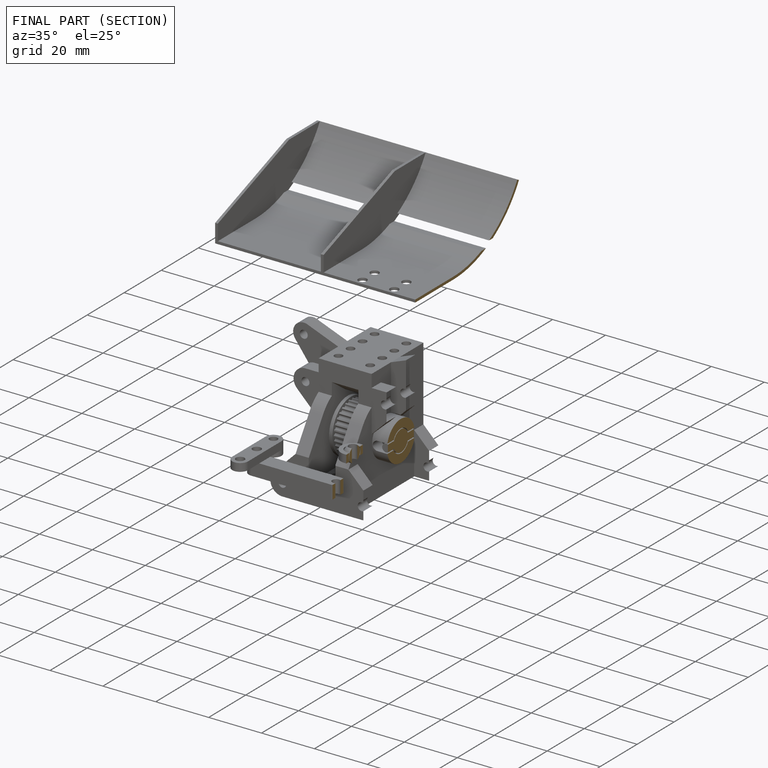
[diagram: finished part — half-section view (interior)]
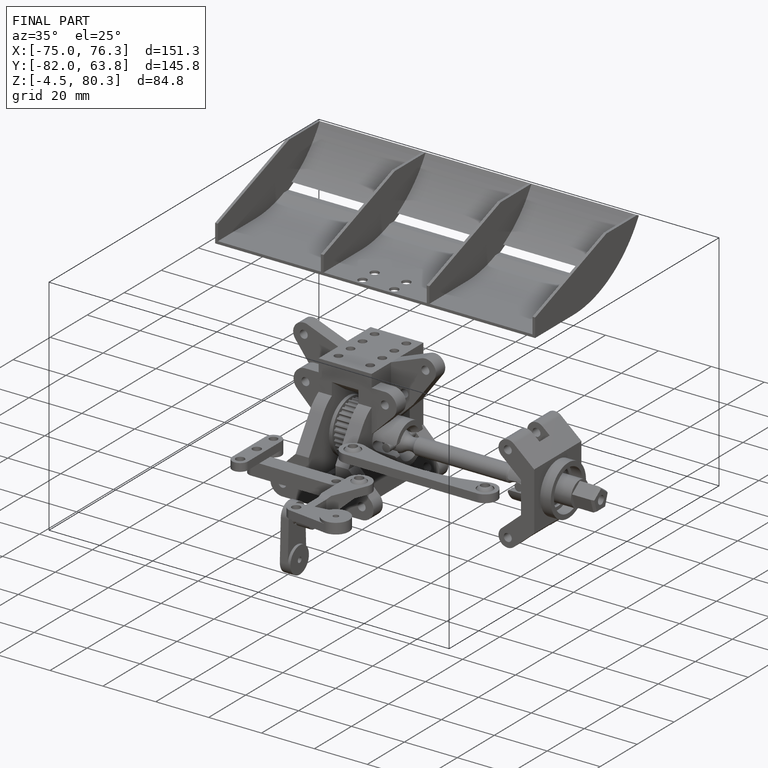
[diagram: finished part — iso view with bounding-box wireframe]
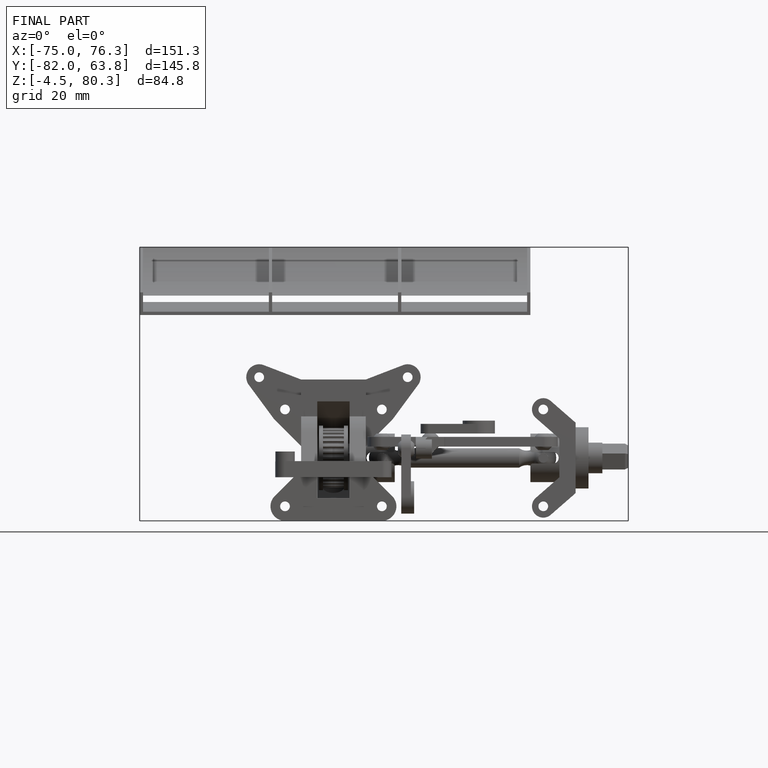
[diagram: finished part — front view with bounding-box wireframe]
